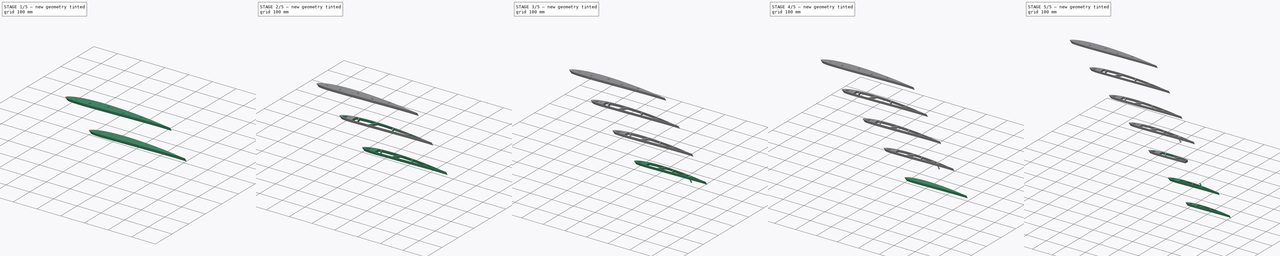
[diagram: build sequence overview — one tinted view per stage of 5, left to right]
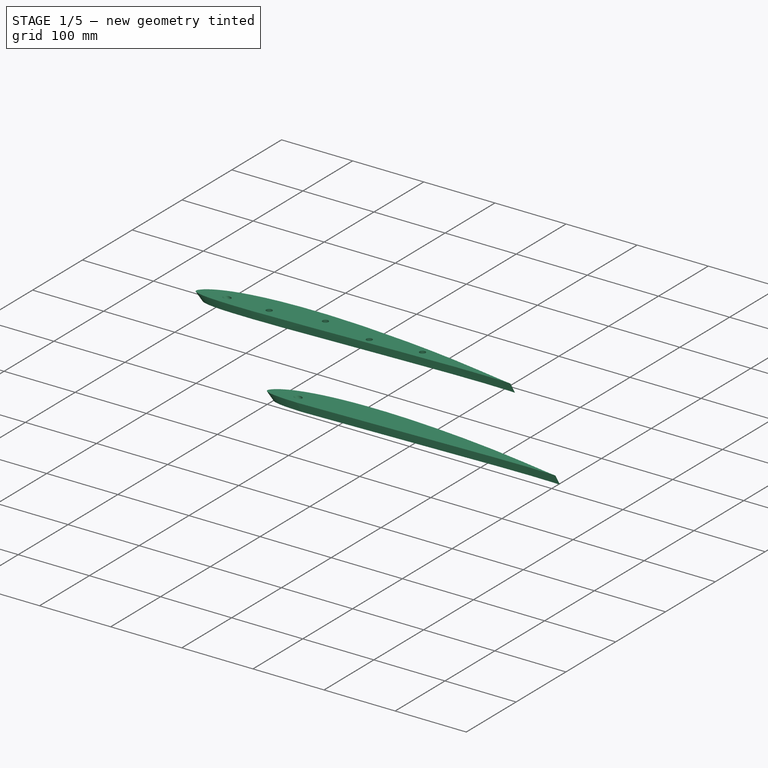
[diagram: stage 1 of 5 — iso view after this stage's code; geometry added in this stage tinted green]
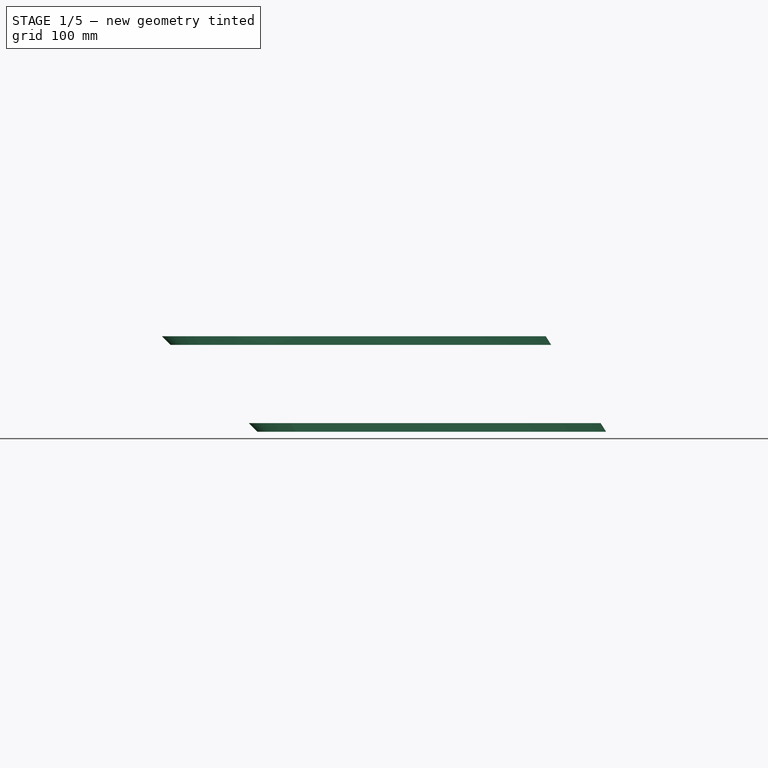
[diagram: stage 1 of 5 — front view after this stage's code; geometry added in this stage tinted green]
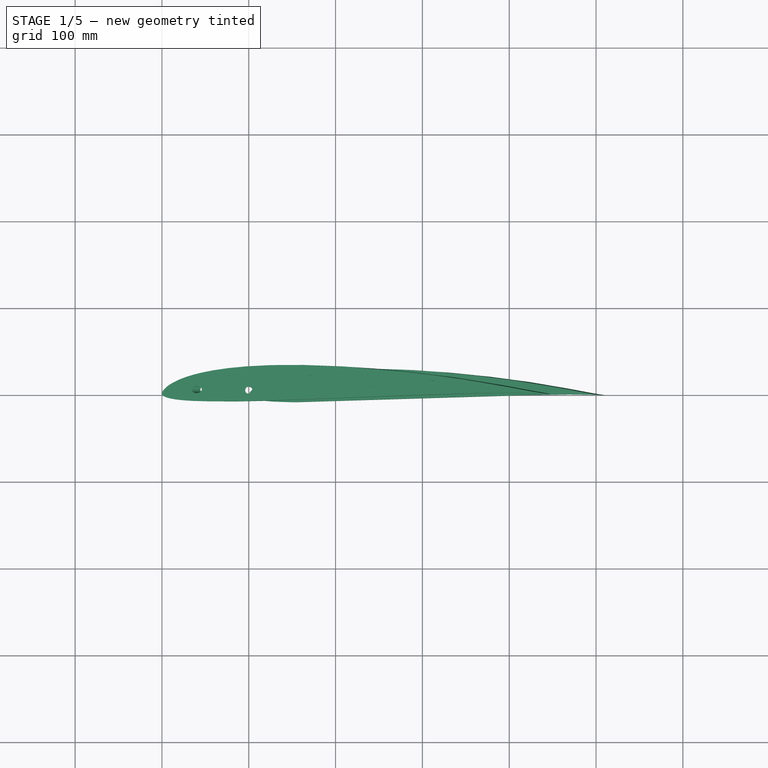
[diagram: stage 1 of 5 — top view after this stage's code; geometry added in this stage tinted green]
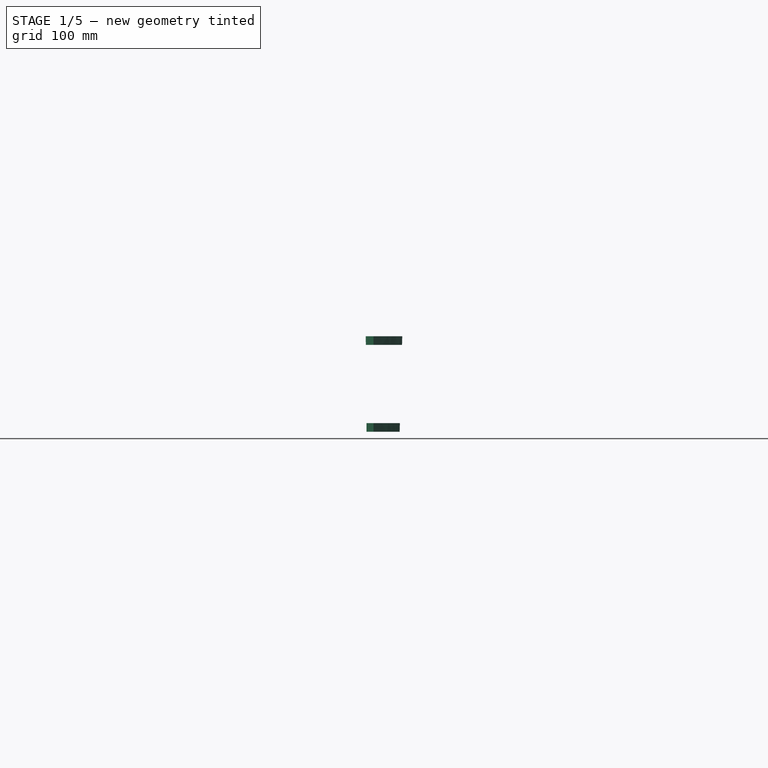
[diagram: stage 1 of 5 — right view after this stage's code; geometry added in this stage tinted green]
FCSTD DOCUMENT  (FreeCAD 1.0R39109 (Git))
Label: SD7037_this_time_for_realz
License: All rights reserved
LicenseURL: https://en.wikipedia.org/wiki/All_rights_reserved
objects: Sketcher::SketchObject×79, PartDesign::Pocket×50, PartDesign::Plane×14, PartDesign::AdditiveLoft×11, PartDesign::Body×11, PartDesign::Pad×7, Part::Part2DObjectPython×3, App::DocumentObjectGroup×1
note: 390 computed .brp shape members not serialized (recipe doc carries the construction recipe); baked Part::Feature solids carry a one-line shape summary decoded from their .brp

FEATURE [Part::Part2DObjectPython] Wire  # Draft 2D object (typed FeaturePython)
  Area = 0.0605284
  ChamferSize = 0
  Closed = true
  End = (1,0,0)
  FilletRadius = 0
  Length = 2.02979
  MakeFace = true
  Points = (61) [(1,0,0),(0.99672,0.00042,0),(0.98707,0.0018,0),(0.97146,0.00436,0),(0.95041,0.00811,0),(0.9245,0.01295,0),(0.89425,0.01865,0),(0.86015,0.0249,0),+53 more]
  Start = (1,0,0)
  Subdivisions = 0
FEATURE [App::DocumentObjectGroup] sd7037
  Group = -> [Wire]
FEATURE [Part::Part2DObjectPython] BSpline  label="wingtip"  # Draft 2D object (typed FeaturePython)
  Area = 2965.6
  Closed = true
  MakeFace = true
  Parameterization = 1
  Points = (60) [(221,0,0),(220.275,0.09282,0),(218.142,0.3978,0),(214.693,0.96356,0),(210.041,1.79231,0),(204.315,2.86195,0),(197.629,4.12165,0),(190.093,5.5029,0),+52 more]
FEATURE [Part::Part2DObjectPython] BSpline001  label="wingbase"  # Draft 2D object (typed FeaturePython)
  Area = 11862.4
  Closed = true
  MakeFace = true
  Parameterization = 1
  Points = (60) [(442,0,0),(440.55,0.18564,0),(436.285,0.7956,0),(429.385,1.92712,0),(420.081,3.58462,0),(408.629,5.7239,0),(395.258,8.2433,0),(380.186,11.0058,0),+52 more]
FEATURE [Sketcher::SketchObject] Sketch
  ArcFitTolerance = 1e-06
  FullyConstrained = false
  MakeInternals = false
  Placement = pos=(600,0,-600) rot=(0,0,1;0rad)
  sketch-geometry (123):
    g0: BSplineCurve PolesCount=61 KnotsCount=61 Degree=3 IsPeriodic=1
    g1-g61: Circle [constr] x61 (B-spline internal-alignment scaffolding for g0; pole/knot coordinates omitted)
    g62-g122: GeomPoint [constr] x61 (B-spline internal-alignment scaffolding for g0; pole/knot coordinates omitted)
  constraints (123):
    c: InternalAlignment(g1,g0)
    c: Weight(g1) = 1
    c: InternalAlignment(g2,g0)
    c: Equal(g2,g1)
    c: InternalAlignment(g3,g0)
    c: Equal(g3,g1)
    c: InternalAlignment(g4,g0)
    c: Equal(g4,g1)
    c: InternalAlignment(g5,g0)
    c: Equal(g5,g1)
    c: InternalAlignment(g6,g0)
    c: Equal(g6,g1)
    c: InternalAlignment(g7,g0)
    c: Equal(g7,g1)
    c: InternalAlignment(g8,g0)
    c: Equal(g8,g1)
    c: InternalAlignment(g9,g0)
    c: Equal(g9,g1)
    c: InternalAlignment(g10,g0)
    c: Equal(g10,g1)
    c: InternalAlignment(g11,g0)
    c: Equal(g11,g1)
    c: InternalAlignment(g12,g0)
    c: Equal(g12,g1)
    c: InternalAlignment(g13,g0)
    c: Equal(g13,g1)
    c: InternalAlignment(g14,g0)
    c: Equal(g14,g1)
    c: InternalAlignment(g15,g0)
    c: Equal(g15,g1)
    c: InternalAlignment(g16,g0)
    c: Equal(g16,g1)
    c: InternalAlignment(g17,g0)
    c: Equal(g17,g1)
    c: InternalAlignment(g18,g0)
    c: Equal(g18,g1)
    c: InternalAlignment(g19,g0)
    c: Equal(g19,g1)
    c: InternalAlignment(g20,g0)
    c: Equal(g20,g1)
    c: InternalAlignment(g21,g0)
    c: Equal(g21,g1)
    c: InternalAlignment(g22,g0)
    c: Equal(g22,g1)
    c: InternalAlignment(g23,g0)
    c: Equal(g23,g1)
    c: InternalAlignment(g24,g0)
    c: Equal(g24,g1)
    c: InternalAlignment(g25,g0)
    c: Equal(g25,g1)
    c: InternalAlignment(g26,g0)
    c: Equal(g26,g1)
    c: InternalAlignment(g27,g0)
    c: Equal(g27,g1)
    c: InternalAlignment(g28,g0)
    c: Equal(g28,g1)
    c: InternalAlignment(g29,g0)
    c: Equal(g29,g1)
    c: InternalAlignment(g30,g0)
    c: Equal(g30,g1)
    c: InternalAlignment(g31,g0)
    c: Equal(g31,g1)
    c: InternalAlignment(g32,g0)
    c: Equal(g32,g1)
    c: InternalAlignment(g33,g0)
    c: Equal(g33,g1)
    c: InternalAlignment(g34,g0)
    c: Equal(g34,g1)
    c: InternalAlignment(g35,g0)
    c: Equal(g35,g1)
    c: InternalAlignment(g36,g0)
    c: Equal(g36,g1)
    c: InternalAlignment(g37,g0)
    c: Equal(g37,g1)
    c: InternalAlignment(g38,g0)
    c: Equal(g38,g1)
    c: InternalAlignment(g39,g0)
    c: Equal(g39,g1)
    c: InternalAlignment(g40,g0)
    c: Equal(g40,g1)
    c: InternalAlignment(g41,g0)
    c: Equal(g41,g1)
    c: InternalAlignment(g42,g0)
    c: Equal(g42,g1)
    c: InternalAlignment(g43,g0)
    c: Equal(g43,g1)
    c: InternalAlignment(g44,g0)
    c: Equal(g44,g1)
    c: InternalAlignment(g45,g0)
    c: Equal(g45,g1)
    c: InternalAlignment(g46,g0)
    c: Equal(g46,g1)
    c: InternalAlignment(g47,g0)
    c: Equal(g47,g1)
    c: InternalAlignment(g48,g0)
    c: Equal(g48,g1)
    c: InternalAlignment(g49,g0)
    c: Equal(g49,g1)
    c: InternalAlignment(g50,g0)
    c: Equal(g50,g1)
    c: InternalAlignment(g51,g0)
    c: Equal(g51,g1)
    c: InternalAlignment(g52,g0)
    c: Equal(g52,g1)
    c: InternalAlignment(g53,g0)
    c: Equal(g53,g1)
    c: InternalAlignment(g54,g0)
    c: Equal(g54,g1)
    c: InternalAlignment(g55,g0)
    c: Equal(g55,g1)
    c: InternalAlignment(g56,g0)
    c: Equal(g56,g1)
    c: InternalAlignment(g57,g0)
    c: Equal(g57,g1)
    c: InternalAlignment(g58,g0)
    c: Equal(g58,g1)
    c: InternalAlignment(g59,g0)
    c: Equal(g59,g1)
    c: InternalAlignment(g60,g0)
    c: Equal(g60,g1)
    c: InternalAlignment(g61,g0)
    c: Equal(g61,g1)
    c: InternalAlignment(g62-g122 -> g0) x61
FEATURE [Sketcher::SketchObject] Sketch001
  ArcFitTolerance = 1e-06
  FullyConstrained = false
  MakeInternals = false
  sketch-geometry (123):
    g0: BSplineCurve PolesCount=61 KnotsCount=61 Degree=3 IsPeriodic=1
    g1-g61: Circle [constr] x61 (B-spline internal-alignment scaffolding for g0; pole/knot coordinates omitted)
    g62-g122: GeomPoint [constr] x61 (B-spline internal-alignment scaffolding for g0; pole/knot coordinates omitted)
  constraints (123):
    c: InternalAlignment(g1,g0)
    c: Weight(g1) = 1
    c: InternalAlignment(g2,g0)
    c: Equal(g2,g1)
    c: InternalAlignment(g3,g0)
    c: Equal(g3,g1)
    c: InternalAlignment(g4,g0)
    c: Equal(g4,g1)
    c: InternalAlignment(g5,g0)
    c: Equal(g5,g1)
    c: InternalAlignment(g6,g0)
    c: Equal(g6,g1)
    c: InternalAlignment(g7,g0)
    c: Equal(g7,g1)
    c: InternalAlignment(g8,g0)
    c: Equal(g8,g1)
    c: InternalAlignment(g9,g0)
    c: Equal(g9,g1)
    c: InternalAlignment(g10,g0)
    c: Equal(g10,g1)
    c: InternalAlignment(g11,g0)
    c: Equal(g11,g1)
    c: InternalAlignment(g12,g0)
    c: Equal(g12,g1)
    c: InternalAlignment(g13,g0)
    c: Equal(g13,g1)
    c: InternalAlignment(g14,g0)
    c: Equal(g14,g1)
    c: InternalAlignment(g15,g0)
    c: Equal(g15,g1)
    c: InternalAlignment(g16,g0)
    c: Equal(g16,g1)
    c: InternalAlignment(g17,g0)
    c: Equal(g17,g1)
    c: InternalAlignment(g18,g0)
    c: Equal(g18,g1)
    c: InternalAlignment(g19,g0)
    c: Equal(g19,g1)
    c: InternalAlignment(g20,g0)
    c: Equal(g20,g1)
    c: InternalAlignment(g21,g0)
    c: Equal(g21,g1)
    c: InternalAlignment(g22,g0)
    c: Equal(g22,g1)
    c: InternalAlignment(g23,g0)
    c: Equal(g23,g1)
    c: InternalAlignment(g24,g0)
    c: Equal(g24,g1)
    c: InternalAlignment(g25,g0)
    c: Equal(g25,g1)
    c: InternalAlignment(g26,g0)
    c: Equal(g26,g1)
    c: InternalAlignment(g27,g0)
    c: Equal(g27,g1)
    c: InternalAlignment(g28,g0)
    c: Equal(g28,g1)
    c: InternalAlignment(g29,g0)
    c: Equal(g29,g1)
    c: InternalAlignment(g30,g0)
    c: Equal(g30,g1)
    c: InternalAlignment(g31,g0)
    c: Equal(g31,g1)
    c: InternalAlignment(g32,g0)
    c: Equal(g32,g1)
    c: InternalAlignment(g33,g0)
    c: Equal(g33,g1)
    c: InternalAlignment(g34,g0)
    c: Equal(g34,g1)
    c: InternalAlignment(g35,g0)
    c: Equal(g35,g1)
    c: InternalAlignment(g36,g0)
    c: Equal(g36,g1)
    c: InternalAlignment(g37,g0)
    c: Equal(g37,g1)
    c: InternalAlignment(g38,g0)
    c: Equal(g38,g1)
    c: InternalAlignment(g39,g0)
    c: Equal(g39,g1)
    c: InternalAlignment(g40,g0)
    c: Equal(g40,g1)
    c: InternalAlignment(g41,g0)
    c: Equal(g41,g1)
    c: InternalAlignment(g42,g0)
    c: Equal(g42,g1)
    c: InternalAlignment(g43,g0)
    c: Equal(g43,g1)
    c: InternalAlignment(g44,g0)
    c: Equal(g44,g1)
    c: InternalAlignment(g45,g0)
    c: Equal(g45,g1)
    c: InternalAlignment(g46,g0)
    c: Equal(g46,g1)
    c: InternalAlignment(g47,g0)
    c: Equal(g47,g1)
    c: InternalAlignment(g48,g0)
    c: Equal(g48,g1)
    c: InternalAlignment(g49,g0)
    c: Equal(g49,g1)
    c: InternalAlignment(g50,g0)
    c: Equal(g50,g1)
    c: InternalAlignment(g51,g0)
    c: Equal(g51,g1)
    c: InternalAlignment(g52,g0)
    c: Equal(g52,g1)
    c: InternalAlignment(g53,g0)
    c: Equal(g53,g1)
    c: InternalAlignment(g54,g0)
    c: Equal(g54,g1)
    c: InternalAlignment(g55,g0)
    c: Equal(g55,g1)
    c: InternalAlignment(g56,g0)
    c: Equal(g56,g1)
    c: InternalAlignment(g57,g0)
    c: Equal(g57,g1)
    c: InternalAlignment(g58,g0)
    c: Equal(g58,g1)
    c: InternalAlignment(g59,g0)
    c: Equal(g59,g1)
    c: InternalAlignment(g60,g0)
    c: Equal(g60,g1)
    c: InternalAlignment(g61,g0)
    c: Equal(g61,g1)
    c: InternalAlignment(g62-g122 -> g0) x61
FEATURE [PartDesign::AdditiveLoft] AdditiveLoft
  Closed = false
  Profile = -> Sketch001
  Refine = true
  Ruled = false
  Sections = -> [Sketch]
  Suppressed = false
FEATURE [PartDesign::Plane] DatumPlane
  AttachmentOffset = pos=(0,0,0) rot=(0,-1,0;0.785398rad)
  AttachmentSupport = -> [AdditiveLoft]
  Length = 397.552
  MapMode = 5
  Placement = pos=(0,0,0) rot=(0,-1,0;0.785398rad)
  ResizeMode = 0
  Width = 78.2374
FEATURE [Sketcher::SketchObject] Sketch002
  ArcFitTolerance = 1e-06
  AttachmentSupport = -> [DatumPlane]
  FullyConstrained = false
  MakeInternals = false
  MapMode = 5
  Placement = pos=(0,0,0) rot=(0,-1,0;0.785398rad)
  sketch-geometry (1):
    g0: Circle CenterX=28.3343 CenterY=4.75298 CenterZ=0 NormalX=0 NormalY=0 NormalZ=1 AngleXU=0 Radius=4.1
  constraints (1):
    c: Diameter(g0) = 8.2
FEATURE [PartDesign::Pocket] Pocket
  BaseFeature = -> AdditiveLoft
  Direction = (0.707107,0,-0.707107)
  Length = 1000
  Length2 = 5
  Profile = -> Sketch002
  ReferenceAxis = -> Sketch002 [N_Axis]
  Refine = true
  Suppressed = false
  Type = 0
FEATURE [Sketcher::SketchObject] Sketch003
  ArcFitTolerance = 1e-06
  FullyConstrained = false
  MakeInternals = false
  Placement = pos=(600,0,-600) rot=(0,0,1;0rad)
  sketch-geometry (123):
    g0: BSplineCurve PolesCount=61 KnotsCount=61 Degree=3 IsPeriodic=1
    g1-g61: Circle [constr] x61 (B-spline internal-alignment scaffolding for g0; pole/knot coordinates omitted)
    g62-g122: GeomPoint [constr] x61 (B-spline internal-alignment scaffolding for g0; pole/knot coordinates omitted)
  constraints (123):
    c: InternalAlignment(g1,g0)
    c: Weight(g1) = 1
    c: InternalAlignment(g2,g0)
    c: Equal(g2,g1)
    c: InternalAlignment(g3,g0)
    c: Equal(g3,g1)
    c: InternalAlignment(g4,g0)
    c: Equal(g4,g1)
    c: InternalAlignment(g5,g0)
    c: Equal(g5,g1)
    c: InternalAlignment(g6,g0)
    c: Equal(g6,g1)
    c: InternalAlignment(g7,g0)
    c: Equal(g7,g1)
    c: InternalAlignment(g8,g0)
    c: Equal(g8,g1)
    c: InternalAlignment(g9,g0)
    c: Equal(g9,g1)
    c: InternalAlignment(g10,g0)
    c: Equal(g10,g1)
    c: InternalAlignment(g11,g0)
    c: Equal(g11,g1)
    c: InternalAlignment(g12,g0)
    c: Equal(g12,g1)
    c: InternalAlignment(g13,g0)
    c: Equal(g13,g1)
    c: InternalAlignment(g14,g0)
    c: Equal(g14,g1)
    c: InternalAlignment(g15,g0)
    c: Equal(g15,g1)
    c: InternalAlignment(g16,g0)
    c: Equal(g16,g1)
    c: InternalAlignment(g17,g0)
    c: Equal(g17,g1)
    c: InternalAlignment(g18,g0)
    c: Equal(g18,g1)
    c: InternalAlignment(g19,g0)
    c: Equal(g19,g1)
    c: InternalAlignment(g20,g0)
    c: Equal(g20,g1)
    c: InternalAlignment(g21,g0)
    c: Equal(g21,g1)
    c: InternalAlignment(g22,g0)
    c: Equal(g22,g1)
    c: InternalAlignment(g23,g0)
    c: Equal(g23,g1)
    c: InternalAlignment(g24,g0)
    c: Equal(g24,g1)
    c: InternalAlignment(g25,g0)
    c: Equal(g25,g1)
    c: InternalAlignment(g26,g0)
    c: Equal(g26,g1)
    c: InternalAlignment(g27,g0)
    c: Equal(g27,g1)
    c: InternalAlignment(g28,g0)
    c: Equal(g28,g1)
    c: InternalAlignment(g29,g0)
    c: Equal(g29,g1)
    c: InternalAlignment(g30,g0)
    c: Equal(g30,g1)
    c: InternalAlignment(g31,g0)
    c: Equal(g31,g1)
    c: InternalAlignment(g32,g0)
    c: Equal(g32,g1)
    c: InternalAlignment(g33,g0)
    c: Equal(g33,g1)
    c: InternalAlignment(g34,g0)
    c: Equal(g34,g1)
    c: InternalAlignment(g35,g0)
    c: Equal(g35,g1)
    c: InternalAlignment(g36,g0)
    c: Equal(g36,g1)
    c: InternalAlignment(g37,g0)
    c: Equal(g37,g1)
    c: InternalAlignment(g38,g0)
    c: Equal(g38,g1)
    c: InternalAlignment(g39,g0)
    c: Equal(g39,g1)
    c: InternalAlignment(g40,g0)
    c: Equal(g40,g1)
    c: InternalAlignment(g41,g0)
    c: Equal(g41,g1)
    c: InternalAlignment(g42,g0)
    c: Equal(g42,g1)
    c: InternalAlignment(g43,g0)
    c: Equal(g43,g1)
    c: InternalAlignment(g44,g0)
    c: Equal(g44,g1)
    c: InternalAlignment(g45,g0)
    c: Equal(g45,g1)
    c: InternalAlignment(g46,g0)
    c: Equal(g46,g1)
    c: InternalAlignment(g47,g0)
    c: Equal(g47,g1)
    c: InternalAlignment(g48,g0)
    c: Equal(g48,g1)
    c: InternalAlignment(g49,g0)
    c: Equal(g49,g1)
    c: InternalAlignment(g50,g0)
    c: Equal(g50,g1)
    c: InternalAlignment(g51,g0)
    c: Equal(g51,g1)
    c: InternalAlignment(g52,g0)
    c: Equal(g52,g1)
    c: InternalAlignment(g53,g0)
    c: Equal(g53,g1)
    c: InternalAlignment(g54,g0)
    c: Equal(g54,g1)
    c: InternalAlignment(g55,g0)
    c: Equal(g55,g1)
    c: InternalAlignment(g56,g0)
    c: Equal(g56,g1)
    c: InternalAlignment(g57,g0)
    c: Equal(g57,g1)
    c: InternalAlignment(g58,g0)
    c: Equal(g58,g1)
    c: InternalAlignment(g59,g0)
    c: Equal(g59,g1)
    c: InternalAlignment(g60,g0)
    c: Equal(g60,g1)
    c: InternalAlignment(g61,g0)
    c: Equal(g61,g1)
    c: InternalAlignment(g62-g122 -> g0) x61
FEATURE [Sketcher::SketchObject] Sketch004
  ArcFitTolerance = 1e-06
  FullyConstrained = false
  MakeInternals = false
  sketch-geometry (123):
    g0: BSplineCurve PolesCount=61 KnotsCount=61 Degree=3 IsPeriodic=1
    g1-g61: Circle [constr] x61 (B-spline internal-alignment scaffolding for g0; pole/knot coordinates omitted)
    g62-g122: GeomPoint [constr] x61 (B-spline internal-alignment scaffolding for g0; pole/knot coordinates omitted)
  constraints (123):
    c: InternalAlignment(g1,g0)
    c: Weight(g1) = 1
    c: InternalAlignment(g2,g0)
    c: Equal(g2,g1)
    c: InternalAlignment(g3,g0)
    c: Equal(g3,g1)
    c: InternalAlignment(g4,g0)
    c: Equal(g4,g1)
    c: InternalAlignment(g5,g0)
    c: Equal(g5,g1)
    c: InternalAlignment(g6,g0)
    c: Equal(g6,g1)
    c: InternalAlignment(g7,g0)
    c: Equal(g7,g1)
    c: InternalAlignment(g8,g0)
    c: Equal(g8,g1)
    c: InternalAlignment(g9,g0)
    c: Equal(g9,g1)
    c: InternalAlignment(g10,g0)
    c: Equal(g10,g1)
    c: InternalAlignment(g11,g0)
    c: Equal(g11,g1)
    c: InternalAlignment(g12,g0)
    c: Equal(g12,g1)
    c: InternalAlignment(g13,g0)
    c: Equal(g13,g1)
    c: InternalAlignment(g14,g0)
    c: Equal(g14,g1)
    c: InternalAlignment(g15,g0)
    c: Equal(g15,g1)
    c: InternalAlignment(g16,g0)
    c: Equal(g16,g1)
    c: InternalAlignment(g17,g0)
    c: Equal(g17,g1)
    c: InternalAlignment(g18,g0)
    c: Equal(g18,g1)
    c: InternalAlignment(g19,g0)
    c: Equal(g19,g1)
    c: InternalAlignment(g20,g0)
    c: Equal(g20,g1)
    c: InternalAlignment(g21,g0)
    c: Equal(g21,g1)
    c: InternalAlignment(g22,g0)
    c: Equal(g22,g1)
    c: InternalAlignment(g23,g0)
    c: Equal(g23,g1)
    c: InternalAlignment(g24,g0)
    c: Equal(g24,g1)
    c: InternalAlignment(g25,g0)
    c: Equal(g25,g1)
    c: InternalAlignment(g26,g0)
    c: Equal(g26,g1)
    c: InternalAlignment(g27,g0)
    c: Equal(g27,g1)
    c: InternalAlignment(g28,g0)
    c: Equal(g28,g1)
    c: InternalAlignment(g29,g0)
    c: Equal(g29,g1)
    c: InternalAlignment(g30,g0)
    c: Equal(g30,g1)
    c: InternalAlignment(g31,g0)
    c: Equal(g31,g1)
    c: InternalAlignment(g32,g0)
    c: Equal(g32,g1)
    c: InternalAlignment(g33,g0)
    c: Equal(g33,g1)
    c: InternalAlignment(g34,g0)
    c: Equal(g34,g1)
    c: InternalAlignment(g35,g0)
    c: Equal(g35,g1)
    c: InternalAlignment(g36,g0)
    c: Equal(g36,g1)
    c: InternalAlignment(g37,g0)
    c: Equal(g37,g1)
    c: InternalAlignment(g38,g0)
    c: Equal(g38,g1)
    c: InternalAlignment(g39,g0)
    c: Equal(g39,g1)
    c: InternalAlignment(g40,g0)
    c: Equal(g40,g1)
    c: InternalAlignment(g41,g0)
    c: Equal(g41,g1)
    c: InternalAlignment(g42,g0)
    c: Equal(g42,g1)
    c: InternalAlignment(g43,g0)
    c: Equal(g43,g1)
    c: InternalAlignment(g44,g0)
    c: Equal(g44,g1)
    c: InternalAlignment(g45,g0)
    c: Equal(g45,g1)
    c: InternalAlignment(g46,g0)
    c: Equal(g46,g1)
    c: InternalAlignment(g47,g0)
    c: Equal(g47,g1)
    c: InternalAlignment(g48,g0)
    c: Equal(g48,g1)
    c: InternalAlignment(g49,g0)
    c: Equal(g49,g1)
    c: InternalAlignment(g50,g0)
    c: Equal(g50,g1)
    c: InternalAlignment(g51,g0)
    c: Equal(g51,g1)
    c: InternalAlignment(g52,g0)
    c: Equal(g52,g1)
    c: InternalAlignment(g53,g0)
    c: Equal(g53,g1)
    c: InternalAlignment(g54,g0)
    c: Equal(g54,g1)
    c: InternalAlignment(g55,g0)
    c: Equal(g55,g1)
    c: InternalAlignment(g56,g0)
    c: Equal(g56,g1)
    c: InternalAlignment(g57,g0)
    c: Equal(g57,g1)
    c: InternalAlignment(g58,g0)
    c: Equal(g58,g1)
    c: InternalAlignment(g59,g0)
    c: Equal(g59,g1)
    c: InternalAlignment(g60,g0)
    c: Equal(g60,g1)
    c: InternalAlignment(g61,g0)
    c: Equal(g61,g1)
    c: InternalAlignment(g62-g122 -> g0) x61
FEATURE [PartDesign::AdditiveLoft] AdditiveLoft001
  Closed = false
  Profile = -> Sketch004
  Refine = true
  Ruled = false
  Sections = -> [Sketch003]
  Suppressed = false
FEATURE [PartDesign::Plane] DatumPlane001
  AttachmentOffset = pos=(0,0,0) rot=(0,-1,0;0.785398rad)
  AttachmentSupport = -> [AdditiveLoft001]
  Length = 412.402
  MapMode = 5
  Placement = pos=(0,0,0) rot=(0,-1,0;0.785398rad)
  ResizeMode = 0
  Width = 84.5785
FEATURE [Sketcher::SketchObject] Sketch005
  ArcFitTolerance = 1e-06
  AttachmentSupport = -> [DatumPlane001]
  FullyConstrained = false
  MakeInternals = false
  MapMode = 5
  Placement = pos=(0,0,0) rot=(0,-1,0;0.785398rad)
  sketch-geometry (1):
    g0: Circle CenterX=28.3343 CenterY=4.75298 CenterZ=0 NormalX=0 NormalY=0 NormalZ=1 AngleXU=0 Radius=4.1
  constraints (1):
    c: Diameter(g0) = 8.2
FEATURE [PartDesign::Pocket] Pocket001
  BaseFeature = -> AdditiveLoft001
  Direction = (0.707107,0,-0.707107)
  Length = 1000
  Length2 = 5
  Profile = -> Sketch005
  ReferenceAxis = -> Sketch005 [N_Axis]
  Refine = true
  Suppressed = false
  Type = 0
FEATURE [Sketcher::SketchObject] Sketch021
  ArcFitTolerance = 1e-06
  AttachmentSupport = -> [Pocket]
  FullyConstrained = false
  MakeInternals = false
  MapMode = 5
  Placement = pos=(0,0,-600) rot=(1,0,0;3.14159rad)
  sketch-geometry (4):
    g0: LineSegment StartX=-85.1873 StartY=206.739 StartZ=0 EndX=-85.1873 EndY=-145.098 EndZ=0
    g1: LineSegment StartX=-85.1873 StartY=-145.098 StartZ=0 EndX=963.672 EndY=-145.098 EndZ=0
    g2: LineSegment StartX=963.672 StartY=-145.098 StartZ=0 EndX=963.672 EndY=206.739 EndZ=0
    g3: LineSegment StartX=963.672 StartY=206.739 StartZ=0 EndX=-85.1873 EndY=206.739 EndZ=0
  constraints (8):
    c: Coincident(g0,g1)
    c: Coincident(g1,g2)
    c: Coincident(g2,g3)
    c: Coincident(g3,g0)
    c: Vertical(g0)
    c: Vertical(g2)
    c: Horizontal(g1)
    c: Horizontal(g3)
FEATURE [PartDesign::Pocket] Pocket007
  BaseFeature = -> Pocket
  Direction = (0,0,1)
  Length = 590
  Length2 = 5
  Profile = -> Sketch021
  ReferenceAxis = -> Sketch021 [N_Axis]
  Refine = true
  Suppressed = false
  Type = 0
FEATURE [Sketcher::SketchObject] Sketch022
  ArcFitTolerance = 1e-06
  AttachmentSupport = -> [Pocket001]
  FullyConstrained = false
  MakeInternals = false
  MapMode = 5
  sketch-geometry (4):
    g0: LineSegment StartX=-74.3122 StartY=118.602 StartZ=0 EndX=-74.3122 EndY=-69.0004 EndZ=0
    g1: LineSegment StartX=-74.3122 StartY=-69.0005 StartZ=0 EndX=870.96 EndY=-69.0005 EndZ=0
    g2: LineSegment StartX=870.96 StartY=-69.0005 StartZ=0 EndX=870.96 EndY=118.602 EndZ=0
    g3: LineSegment StartX=870.96 StartY=118.602 StartZ=0 EndX=-74.3122 EndY=118.602 EndZ=0
  constraints (8):
    c: Coincident(g0,g1)
    c: Coincident(g1,g2)
    c: Coincident(g2,g3)
    c: Coincident(g3,g0)
    c: Vertical(g0)
    c: Vertical(g2)
    c: Horizontal(g1)
    c: Horizontal(g3)
FEATURE [PartDesign::Pocket] Pocket008
  BaseFeature = -> Pocket001
  Direction = (0,0,-1)
  Length = 100
  Length2 = 5
  Profile = -> Sketch022
  ReferenceAxis = -> Sketch022 [N_Axis]
  Refine = true
  Suppressed = false
  Type = 0
FEATURE [Sketcher::SketchObject] Sketch023
  ArcFitTolerance = 1e-06
  AttachmentSupport = -> [Pocket008]
  FullyConstrained = false
  MakeInternals = false
  MapMode = 5
  Placement = pos=(0,0,-600) rot=(1,0,0;3.14159rad)
  sketch-geometry (4):
    g0: LineSegment StartX=26.9533 StartY=164.686 StartZ=0 EndX=26.9533 EndY=-77.9053 EndZ=0
    g1: LineSegment StartX=26.9533 StartY=-77.9053 StartZ=0 EndX=1059.07 EndY=-77.9053 EndZ=0
    g2: LineSegment StartX=1059.07 StartY=-77.9053 StartZ=0 EndX=1059.07 EndY=164.686 EndZ=0
    g3: LineSegment StartX=1059.07 StartY=164.686 StartZ=0 EndX=26.9533 EndY=164.686 EndZ=0
  constraints (8):
    c: Coincident(g0,g1)
    c: Coincident(g1,g2)
    c: Coincident(g2,g3)
    c: Coincident(g3,g0)
    c: Vertical(g0)
    c: Vertical(g2)
    c: Horizontal(g1)
    c: Horizontal(g3)
FEATURE [PartDesign::Pocket] Pocket009
  BaseFeature = -> Pocket008
  Direction = (0,0,1)
  Length = 490
  Length2 = 5
  Profile = -> Sketch023
  ReferenceAxis = -> Sketch023 [N_Axis]
  Refine = true
  Suppressed = false
  Type = 0
FEATURE [PartDesign::Body] Body001
  AllowCompound = false
  Group = -> [Sketch004,Sketch003,AdditiveLoft001,DatumPlane001,Sketch005,Pocket001,Sketch022,Pocket008,Sketch023,Pocket009,Sketch062,Pocket037,Sketch069,Pocket043]
  Origin = -> Origin001
  Tip = -> Pocket043
FEATURE [Sketcher::SketchObject] Sketch071
  ArcFitTolerance = 1e-06
  AttachmentSupport = -> [Pocket007]
  FullyConstrained = true
  MakeInternals = false
  MapMode = 5
  Placement = pos=(0,0,-10) rot=(1,0,0;3.14159rad)
  sketch-geometry (4):
    g0: Circle CenterX=310 CenterY=-12 CenterZ=0 NormalX=0 NormalY=0 NormalZ=1 AngleXU=0 Radius=4.1
    g1: Circle CenterX=240 CenterY=-5 CenterZ=0 NormalX=0 NormalY=0 NormalZ=1 AngleXU=0 Radius=4.1
    g2: Circle CenterX=170 CenterY=-17 CenterZ=0 NormalX=0 NormalY=0 NormalZ=1 AngleXU=0 Radius=4.1
    g3: Circle CenterX=100 CenterY=-4 CenterZ=0 NormalX=0 NormalY=0 NormalZ=1 AngleXU=0 Radius=4.1
  constraints (12):
    c: Diameter(g0) = 8.2
    c: Diameter(g1) = 8.2
    c: Diameter(g2) = 8.2
    c: Diameter(g3) = 8.2
    c: DistanceX(g-1,g3) = 100
    c: DistanceX(g3,g2) = 70
    c: DistanceX(g2,g1) = 70
    c: DistanceX(g1,g0) = 70
    c: DistanceY(g3,g-1) = 4
    c: DistanceY(g2,g-1) = 17
    c: DistanceY(g1,g-1) = 5
    c: DistanceY(g0,g-1) = 12
FEATURE [PartDesign::Pocket] Pocket044
  BaseFeature = -> Pocket007
  Direction = (0,0,1)
  Length = 15
  Length2 = 5
  Profile = -> Sketch071
  ReferenceAxis = -> Sketch071 [N_Axis]
  Refine = true
  Suppressed = false
  Type = 0
FEATURE [Sketcher::SketchObject] Sketch072
  ArcFitTolerance = 1e-06
  AttachmentSupport = -> [Pocket044]
  FullyConstrained = false
  MakeInternals = false
  MapMode = 5
  Placement = pos=(0,0,-10) rot=(1,0,0;3.14159rad)
  sketch-geometry (4):
    g0: LineSegment StartX=0 StartY=50.2756 StartZ=0 EndX=0 EndY=-78.0723 EndZ=0
    g1: LineSegment StartX=0 StartY=-78.0723 StartZ=0 EndX=280 EndY=-78.0723 EndZ=0
    g2: LineSegment StartX=280 StartY=-78.0723 StartZ=0 EndX=280 EndY=50.2756 EndZ=0
    g3: LineSegment StartX=280 StartY=50.2756 StartZ=0 EndX=0 EndY=50.2756 EndZ=0
  constraints (10):
    c: Coincident(g0,g1)
    c: Coincident(g1,g2)
    c: Coincident(g2,g3)
    c: Coincident(g3,g0)
    c: Vertical(g0)
    c: Vertical(g2)
    c: Horizontal(g1)
    c: Horizontal(g3)
    c: PointOnObject(g0,g-2)
    c: DistanceX(g-1,g2) = 280
FEATURE [Sketcher::SketchObject] Sketch073
  ArcFitTolerance = 1e-06
  FullyConstrained = false
  MakeInternals = false
  Placement = pos=(600,0,-600) rot=(0,0,1;0rad)
  sketch-geometry (123):
    g0: BSplineCurve PolesCount=61 KnotsCount=61 Degree=3 IsPeriodic=1
    g1-g61: Circle [constr] x61 (B-spline internal-alignment scaffolding for g0; pole/knot coordinates omitted)
    g62-g122: GeomPoint [constr] x61 (B-spline internal-alignment scaffolding for g0; pole/knot coordinates omitted)
  constraints (123):
    c: InternalAlignment(g1,g0)
    c: Weight(g1) = 1
    c: InternalAlignment(g2,g0)
    c: Equal(g2,g1)
    c: InternalAlignment(g3,g0)
    c: Equal(g3,g1)
    c: InternalAlignment(g4,g0)
    c: Equal(g4,g1)
    c: InternalAlignment(g5,g0)
    c: Equal(g5,g1)
    c: InternalAlignment(g6,g0)
    c: Equal(g6,g1)
    c: InternalAlignment(g7,g0)
    c: Equal(g7,g1)
    c: InternalAlignment(g8,g0)
    c: Equal(g8,g1)
    c: InternalAlignment(g9,g0)
    c: Equal(g9,g1)
    c: InternalAlignment(g10,g0)
    c: Equal(g10,g1)
    c: InternalAlignment(g11,g0)
    c: Equal(g11,g1)
    c: InternalAlignment(g12,g0)
    c: Equal(g12,g1)
    c: InternalAlignment(g13,g0)
    c: Equal(g13,g1)
    c: InternalAlignment(g14,g0)
    c: Equal(g14,g1)
    c: InternalAlignment(g15,g0)
    c: Equal(g15,g1)
    c: InternalAlignment(g16,g0)
    c: Equal(g16,g1)
    c: InternalAlignment(g17,g0)
    c: Equal(g17,g1)
    c: InternalAlignment(g18,g0)
    c: Equal(g18,g1)
    c: InternalAlignment(g19,g0)
    c: Equal(g19,g1)
    c: InternalAlignment(g20,g0)
    c: Equal(g20,g1)
    c: InternalAlignment(g21,g0)
    c: Equal(g21,g1)
    c: InternalAlignment(g22,g0)
    c: Equal(g22,g1)
    c: InternalAlignment(g23,g0)
    c: Equal(g23,g1)
    c: InternalAlignment(g24,g0)
    c: Equal(g24,g1)
    c: InternalAlignment(g25,g0)
    c: Equal(g25,g1)
    c: InternalAlignment(g26,g0)
    c: Equal(g26,g1)
    c: InternalAlignment(g27,g0)
    c: Equal(g27,g1)
    c: InternalAlignment(g28,g0)
    c: Equal(g28,g1)
    c: InternalAlignment(g29,g0)
    c: Equal(g29,g1)
    c: InternalAlignment(g30,g0)
    c: Equal(g30,g1)
    c: InternalAlignment(g31,g0)
    c: Equal(g31,g1)
    c: InternalAlignment(g32,g0)
    c: Equal(g32,g1)
    c: InternalAlignment(g33,g0)
    c: Equal(g33,g1)
    c: InternalAlignment(g34,g0)
    c: Equal(g34,g1)
    c: InternalAlignment(g35,g0)
    c: Equal(g35,g1)
    c: InternalAlignment(g36,g0)
    c: Equal(g36,g1)
    c: InternalAlignment(g37,g0)
    c: Equal(g37,g1)
    c: InternalAlignment(g38,g0)
    c: Equal(g38,g1)
    c: InternalAlignment(g39,g0)
    c: Equal(g39,g1)
    c: InternalAlignment(g40,g0)
    c: Equal(g40,g1)
    c: InternalAlignment(g41,g0)
    c: Equal(g41,g1)
    c: InternalAlignment(g42,g0)
    c: Equal(g42,g1)
    c: InternalAlignment(g43,g0)
    c: Equal(g43,g1)
    c: InternalAlignment(g44,g0)
    c: Equal(g44,g1)
    c: InternalAlignment(g45,g0)
    c: Equal(g45,g1)
    c: InternalAlignment(g46,g0)
    c: Equal(g46,g1)
    c: InternalAlignment(g47,g0)
    c: Equal(g47,g1)
    c: InternalAlignment(g48,g0)
    c: Equal(g48,g1)
    c: InternalAlignment(g49,g0)
    c: Equal(g49,g1)
    c: InternalAlignment(g50,g0)
    c: Equal(g50,g1)
    c: InternalAlignment(g51,g0)
    c: Equal(g51,g1)
    c: InternalAlignment(g52,g0)
    c: Equal(g52,g1)
    c: InternalAlignment(g53,g0)
    c: Equal(g53,g1)
    c: InternalAlignment(g54,g0)
    c: Equal(g54,g1)
    c: InternalAlignment(g55,g0)
    c: Equal(g55,g1)
    c: InternalAlignment(g56,g0)
    c: Equal(g56,g1)
    c: InternalAlignment(g57,g0)
    c: Equal(g57,g1)
    c: InternalAlignment(g58,g0)
    c: Equal(g58,g1)
    c: InternalAlignment(g59,g0)
    c: Equal(g59,g1)
    c: InternalAlignment(g60,g0)
    c: Equal(g60,g1)
    c: InternalAlignment(g61,g0)
    c: Equal(g61,g1)
    c: InternalAlignment(g62-g122 -> g0) x61
FEATURE [Sketcher::SketchObject] Sketch074
  ArcFitTolerance = 1e-06
  FullyConstrained = false
  MakeInternals = false
  sketch-geometry (123):
    g0: BSplineCurve PolesCount=61 KnotsCount=61 Degree=3 IsPeriodic=1
    g1-g61: Circle [constr] x61 (B-spline internal-alignment scaffolding for g0; pole/knot coordinates omitted)
    g62-g122: GeomPoint [constr] x61 (B-spline internal-alignment scaffolding for g0; pole/knot coordinates omitted)
  constraints (123):
    c: InternalAlignment(g1,g0)
    c: Weight(g1) = 1
    c: InternalAlignment(g2,g0)
    c: Equal(g2,g1)
    c: InternalAlignment(g3,g0)
    c: Equal(g3,g1)
    c: InternalAlignment(g4,g0)
    c: Equal(g4,g1)
    c: InternalAlignment(g5,g0)
    c: Equal(g5,g1)
    c: InternalAlignment(g6,g0)
    c: Equal(g6,g1)
    c: InternalAlignment(g7,g0)
    c: Equal(g7,g1)
    c: InternalAlignment(g8,g0)
    c: Equal(g8,g1)
    c: InternalAlignment(g9,g0)
    c: Equal(g9,g1)
    c: InternalAlignment(g10,g0)
    c: Equal(g10,g1)
    c: InternalAlignment(g11,g0)
    c: Equal(g11,g1)
    c: InternalAlignment(g12,g0)
    c: Equal(g12,g1)
    c: InternalAlignment(g13,g0)
    c: Equal(g13,g1)
    c: InternalAlignment(g14,g0)
    c: Equal(g14,g1)
    c: InternalAlignment(g15,g0)
    c: Equal(g15,g1)
    c: InternalAlignment(g16,g0)
    c: Equal(g16,g1)
    c: InternalAlignment(g17,g0)
    c: Equal(g17,g1)
    c: InternalAlignment(g18,g0)
    c: Equal(g18,g1)
    c: InternalAlignment(g19,g0)
    c: Equal(g19,g1)
    c: InternalAlignment(g20,g0)
    c: Equal(g20,g1)
    c: InternalAlignment(g21,g0)
    c: Equal(g21,g1)
    c: InternalAlignment(g22,g0)
    c: Equal(g22,g1)
    c: InternalAlignment(g23,g0)
    c: Equal(g23,g1)
    c: InternalAlignment(g24,g0)
    c: Equal(g24,g1)
    c: InternalAlignment(g25,g0)
    c: Equal(g25,g1)
    c: InternalAlignment(g26,g0)
    c: Equal(g26,g1)
    c: InternalAlignment(g27,g0)
    c: Equal(g27,g1)
    c: InternalAlignment(g28,g0)
    c: Equal(g28,g1)
    c: InternalAlignment(g29,g0)
    c: Equal(g29,g1)
    c: InternalAlignment(g30,g0)
    c: Equal(g30,g1)
    c: InternalAlignment(g31,g0)
    c: Equal(g31,g1)
    c: InternalAlignment(g32,g0)
    c: Equal(g32,g1)
    c: InternalAlignment(g33,g0)
    c: Equal(g33,g1)
    c: InternalAlignment(g34,g0)
    c: Equal(g34,g1)
    c: InternalAlignment(g35,g0)
    c: Equal(g35,g1)
    c: InternalAlignment(g36,g0)
    c: Equal(g36,g1)
    c: InternalAlignment(g37,g0)
    c: Equal(g37,g1)
    c: InternalAlignment(g38,g0)
    c: Equal(g38,g1)
    c: InternalAlignment(g39,g0)
    c: Equal(g39,g1)
    c: InternalAlignment(g40,g0)
    c: Equal(g40,g1)
    c: InternalAlignment(g41,g0)
    c: Equal(g41,g1)
    c: InternalAlignment(g42,g0)
    c: Equal(g42,g1)
    c: InternalAlignment(g43,g0)
    c: Equal(g43,g1)
    c: InternalAlignment(g44,g0)
    c: Equal(g44,g1)
    c: InternalAlignment(g45,g0)
    c: Equal(g45,g1)
    c: InternalAlignment(g46,g0)
    c: Equal(g46,g1)
    c: InternalAlignment(g47,g0)
    c: Equal(g47,g1)
    c: InternalAlignment(g48,g0)
    c: Equal(g48,g1)
    c: InternalAlignment(g49,g0)
    c: Equal(g49,g1)
    c: InternalAlignment(g50,g0)
    c: Equal(g50,g1)
    c: InternalAlignment(g51,g0)
    c: Equal(g51,g1)
    c: InternalAlignment(g52,g0)
    c: Equal(g52,g1)
    c: InternalAlignment(g53,g0)
    c: Equal(g53,g1)
    c: InternalAlignment(g54,g0)
    c: Equal(g54,g1)
    c: InternalAlignment(g55,g0)
    c: Equal(g55,g1)
    c: InternalAlignment(g56,g0)
    c: Equal(g56,g1)
    c: InternalAlignment(g57,g0)
    c: Equal(g57,g1)
    c: InternalAlignment(g58,g0)
    c: Equal(g58,g1)
    c: InternalAlignment(g59,g0)
    c: Equal(g59,g1)
    c: InternalAlignment(g60,g0)
    c: Equal(g60,g1)
    c: InternalAlignment(g61,g0)
    c: Equal(g61,g1)
    c: InternalAlignment(g62-g122 -> g0) x61
FEATURE [PartDesign::AdditiveLoft] AdditiveLoft010
  Closed = false
  Profile = -> Sketch074
  Refine = true
  Ruled = false
  Sections = -> [Sketch073]
  Suppressed = false
FEATURE [PartDesign::Plane] DatumPlane013
  AttachmentOffset = pos=(0,0,0) rot=(0,-1,0;0.785398rad)
  AttachmentSupport = -> [AdditiveLoft010]
  Length = 275.193
  MapMode = 5
  Placement = pos=(0,0,0) rot=(0,-1,0;0.785398rad)
  ResizeMode = 0
  Width = 82.3498
FEATURE [Sketcher::SketchObject] Sketch075
  ArcFitTolerance = 1e-06
  AttachmentSupport = -> [DatumPlane013]
  FullyConstrained = false
  MakeInternals = false
  MapMode = 5
  Placement = pos=(0,0,0) rot=(0,-1,0;0.785398rad)
  sketch-geometry (1):
    g0: Circle CenterX=28.3343 CenterY=4.75298 CenterZ=0 NormalX=0 NormalY=0 NormalZ=1 AngleXU=0 Radius=4.1
  constraints (1):
    c: Diameter(g0) = 8.2
FEATURE [PartDesign::Pocket] Pocket045
  BaseFeature = -> AdditiveLoft010
  Direction = (0.707107,0,-0.707107)
  Length = 1000
  Length2 = 5
  Profile = -> Sketch075
  ReferenceAxis = -> Sketch075 [N_Axis]
  Refine = true
  Suppressed = false
  Type = 0
FEATURE [Sketcher::SketchObject] Sketch076
  ArcFitTolerance = 1e-06
  AttachmentSupport = -> [Pocket045]
  FullyConstrained = false
  MakeInternals = false
  MapMode = 5
  Placement = pos=(0,0,-600) rot=(1,0,0;3.14159rad)
  sketch-geometry (4):
    g0: LineSegment StartX=-85.1873 StartY=206.739 StartZ=0 EndX=-85.1873 EndY=-145.098 EndZ=0
    g1: LineSegment StartX=-85.1873 StartY=-145.098 StartZ=0 EndX=963.672 EndY=-145.098 EndZ=0
    g2: LineSegment StartX=963.672 StartY=-145.098 StartZ=0 EndX=963.672 EndY=206.739 EndZ=0
    g3: LineSegment StartX=963.672 StartY=206.739 StartZ=0 EndX=-85.1873 EndY=206.739 EndZ=0
  constraints (8):
    c: Coincident(g0,g1)
    c: Coincident(g1,g2)
    c: Coincident(g2,g3)
    c: Coincident(g3,g0)
    c: Vertical(g0)
    c: Vertical(g2)
    c: Horizontal(g1)
    c: Horizontal(g3)
FEATURE [PartDesign::Pocket] Pocket046
  BaseFeature = -> Pocket045
  Direction = (0,0,1)
  Length = 590
  Length2 = 5
  Profile = -> Sketch076
  ReferenceAxis = -> Sketch076 [N_Axis]
  Refine = true
  Suppressed = false
  Type = 0
FEATURE [Sketcher::SketchObject] Sketch077
  ArcFitTolerance = 1e-06
  AttachmentSupport = -> [Pocket046]
  FullyConstrained = true
  MakeInternals = false
  MapMode = 5
  Placement = pos=(0,0,-10) rot=(1,0,0;3.14159rad)
  sketch-geometry (4):
    g0: Circle CenterX=310 CenterY=-12 CenterZ=0 NormalX=0 NormalY=0 NormalZ=1 AngleXU=0 Radius=4.1
    g1: Circle CenterX=240 CenterY=-5 CenterZ=0 NormalX=0 NormalY=0 NormalZ=1 AngleXU=0 Radius=4.1
    g2: Circle CenterX=170 CenterY=-17 CenterZ=0 NormalX=0 NormalY=0 NormalZ=1 AngleXU=0 Radius=4.1
    g3: Circle CenterX=100 CenterY=-4 CenterZ=0 NormalX=0 NormalY=0 NormalZ=1 AngleXU=0 Radius=4.1
  constraints (12):
    c: Diameter(g0) = 8.2
    c: Diameter(g1) = 8.2
    c: Diameter(g2) = 8.2
    c: Diameter(g3) = 8.2
    c: DistanceX(g-1,g3) = 100
    c: DistanceX(g3,g2) = 70
    c: DistanceX(g2,g1) = 70
    c: DistanceX(g1,g0) = 70
    c: DistanceY(g3,g-1) = 4
    c: DistanceY(g2,g-1) = 17
    c: DistanceY(g1,g-1) = 5
    c: DistanceY(g0,g-1) = 12
FEATURE [PartDesign::Pocket] Pocket047
  BaseFeature = -> Pocket046
  Direction = (0,0,1)
  Length = 15
  Length2 = 5
  Profile = -> Sketch077
  ReferenceAxis = -> Sketch077 [N_Axis]
  Refine = true
  Suppressed = false
  Type = 0
FEATURE [Sketcher::SketchObject] Sketch078
  ArcFitTolerance = 1e-06
  AttachmentSupport = -> [Pocket047]
  FullyConstrained = false
  MakeInternals = false
  MapMode = 5
  Placement = pos=(0,0,-10) rot=(1,0,0;3.14159rad)
  sketch-geometry (4):
    g0: LineSegment StartX=493.108 StartY=42.5769 StartZ=0 EndX=493.108 EndY=-78.0723 EndZ=0
    g1: LineSegment StartX=493.108 StartY=-78.0723 StartZ=0 EndX=280 EndY=-78.0723 EndZ=0
    g2: LineSegment StartX=280 StartY=-78.0723 StartZ=0 EndX=280 EndY=42.5769 EndZ=0
    g3: LineSegment StartX=280 StartY=42.5769 StartZ=0 EndX=493.108 EndY=42.5769 EndZ=0
  constraints (9):
    c: Coincident(g0,g1)
    c: Coincident(g1,g2)
    c: Coincident(g2,g3)
    c: Coincident(g3,g0)
    c: Vertical(g0)
    c: Vertical(g2)
    c: Horizontal(g1)
    c: Horizontal(g3)
    c: DistanceX(g-1,g2) = 280
FEATURE [PartDesign::Pocket] Pocket048
  BaseFeature = -> Pocket044
  Direction = (0,0,1)
  Length = 15
  Length2 = 5
  Profile = -> Sketch072
  ReferenceAxis = -> Sketch072 [N_Axis]
  Refine = true
  Suppressed = false
  Type = 0
FEATURE [PartDesign::Body] Body
  AllowCompound = false
  Group = -> [Sketch001,Sketch,AdditiveLoft,DatumPlane,Sketch002,Pocket,Sketch021,Pocket007,Sketch071,Pocket044,Sketch072,Pocket048]
  Origin = -> Origin
  Tip = -> Pocket048
FEATURE [PartDesign::Pocket] Pocket049
  BaseFeature = -> Pocket047
  Direction = (0,0,1)
  Length = 15
  Length2 = 5
  Profile = -> Sketch078
  ReferenceAxis = -> Sketch078 [N_Axis]
  Refine = true
  Suppressed = false
  Type = 0
FEATURE [PartDesign::Body] Body010
  AllowCompound = false
  Group = -> [Sketch074,Sketch073,AdditiveLoft010,DatumPlane013,Sketch075,Pocket045,Sketch076,Pocket046,Sketch077,Pocket047,Sketch078,Pocket049]
  Origin = -> Origin010
  Tip = -> Pocket049
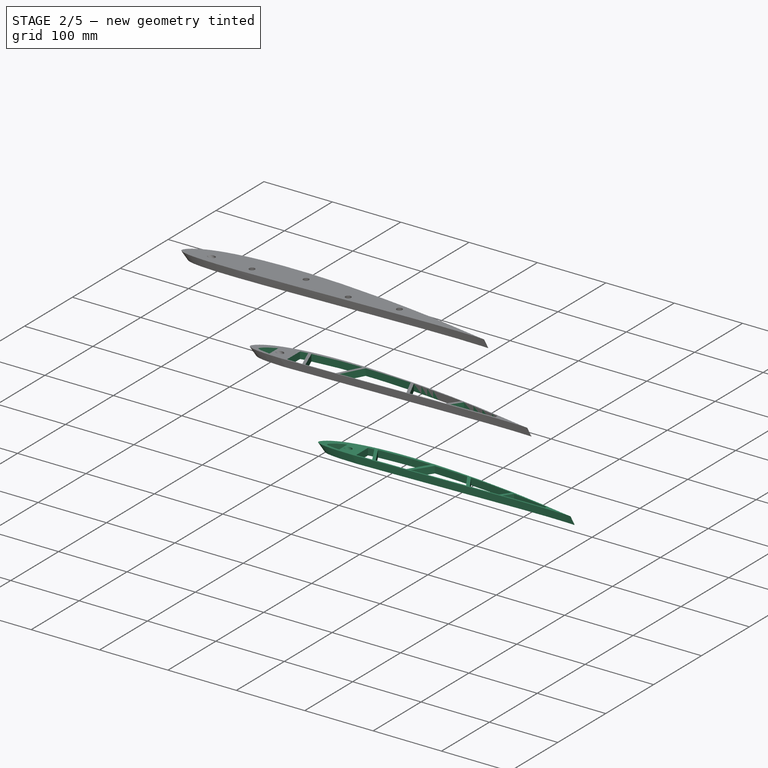
[diagram: stage 2 of 5 — iso view after this stage's code; geometry added in this stage tinted green]
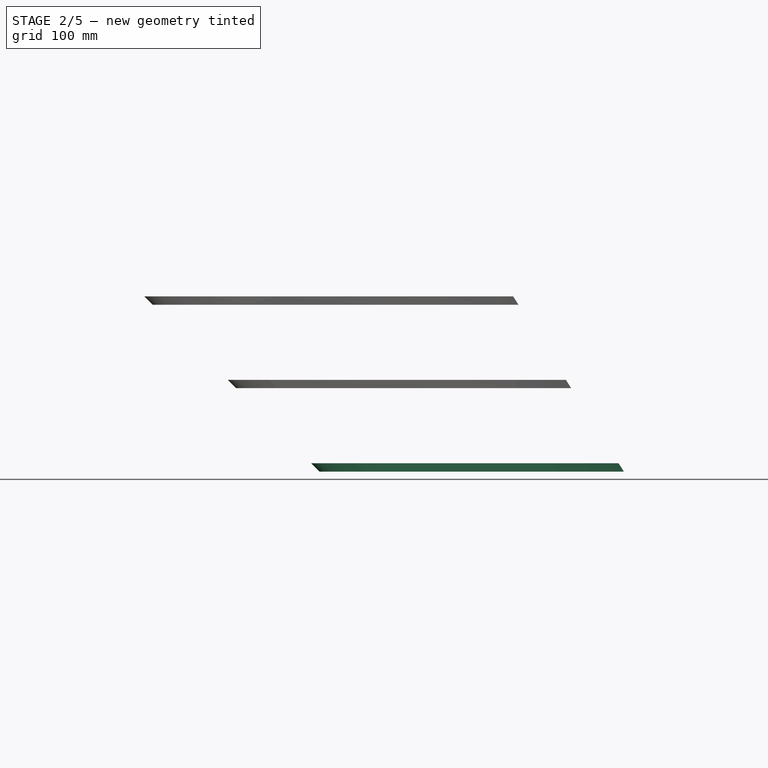
[diagram: stage 2 of 5 — front view after this stage's code; geometry added in this stage tinted green]
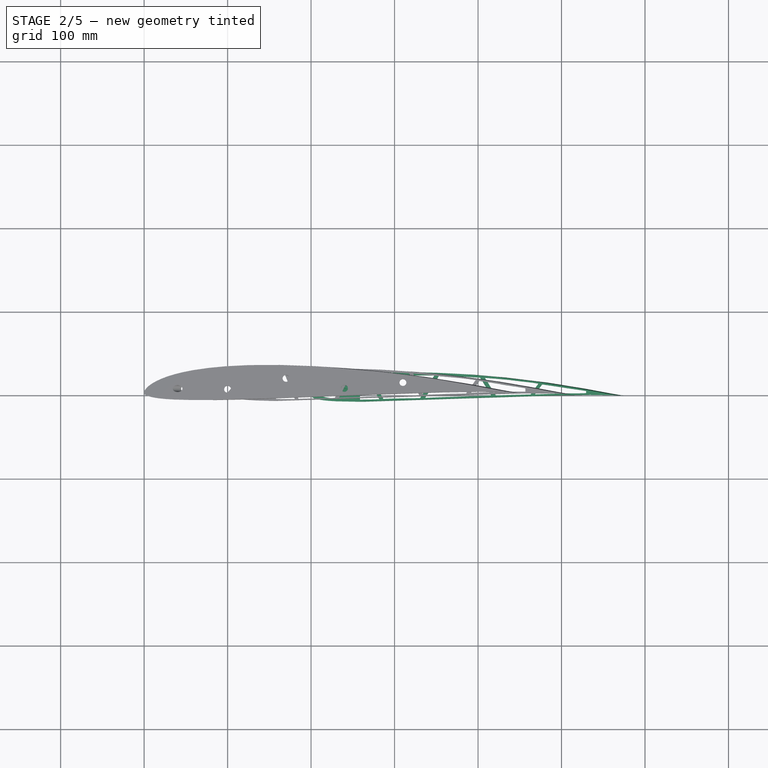
[diagram: stage 2 of 5 — top view after this stage's code; geometry added in this stage tinted green]
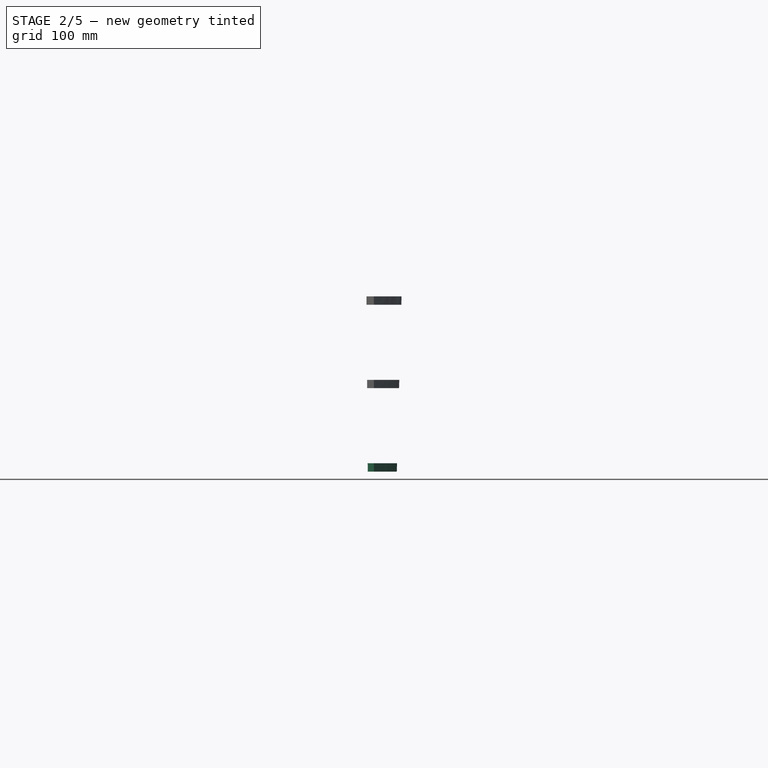
[diagram: stage 2 of 5 — right view after this stage's code; geometry added in this stage tinted green]
FEATURE [Sketcher::SketchObject] Sketch006
  ArcFitTolerance = 1e-06
  FullyConstrained = false
  MakeInternals = false
  Placement = pos=(600,0,-600) rot=(0,0,1;0rad)
  sketch-geometry (123):
    g0: BSplineCurve PolesCount=61 KnotsCount=61 Degree=3 IsPeriodic=1
    g1-g61: Circle [constr] x61 (B-spline internal-alignment scaffolding for g0; pole/knot coordinates omitted)
    g62-g122: GeomPoint [constr] x61 (B-spline internal-alignment scaffolding for g0; pole/knot coordinates omitted)
  constraints (123):
    c: InternalAlignment(g1,g0)
    c: Weight(g1) = 1
    c: InternalAlignment(g2,g0)
    c: Equal(g2,g1)
    c: InternalAlignment(g3,g0)
    c: Equal(g3,g1)
    c: InternalAlignment(g4,g0)
    c: Equal(g4,g1)
    c: InternalAlignment(g5,g0)
    c: Equal(g5,g1)
    c: InternalAlignment(g6,g0)
    c: Equal(g6,g1)
    c: InternalAlignment(g7,g0)
    c: Equal(g7,g1)
    c: InternalAlignment(g8,g0)
    c: Equal(g8,g1)
    c: InternalAlignment(g9,g0)
    c: Equal(g9,g1)
    c: InternalAlignment(g10,g0)
    c: Equal(g10,g1)
    c: InternalAlignment(g11,g0)
    c: Equal(g11,g1)
    c: InternalAlignment(g12,g0)
    c: Equal(g12,g1)
    c: InternalAlignment(g13,g0)
    c: Equal(g13,g1)
    c: InternalAlignment(g14,g0)
    c: Equal(g14,g1)
    c: InternalAlignment(g15,g0)
    c: Equal(g15,g1)
    c: InternalAlignment(g16,g0)
    c: Equal(g16,g1)
    c: InternalAlignment(g17,g0)
    c: Equal(g17,g1)
    c: InternalAlignment(g18,g0)
    c: Equal(g18,g1)
    c: InternalAlignment(g19,g0)
    c: Equal(g19,g1)
    c: InternalAlignment(g20,g0)
    c: Equal(g20,g1)
    c: InternalAlignment(g21,g0)
    c: Equal(g21,g1)
    c: InternalAlignment(g22,g0)
    c: Equal(g22,g1)
    c: InternalAlignment(g23,g0)
    c: Equal(g23,g1)
    c: InternalAlignment(g24,g0)
    c: Equal(g24,g1)
    c: InternalAlignment(g25,g0)
    c: Equal(g25,g1)
    c: InternalAlignment(g26,g0)
    c: Equal(g26,g1)
    c: InternalAlignment(g27,g0)
    c: Equal(g27,g1)
    c: InternalAlignment(g28,g0)
    c: Equal(g28,g1)
    c: InternalAlignment(g29,g0)
    c: Equal(g29,g1)
    c: InternalAlignment(g30,g0)
    c: Equal(g30,g1)
    c: InternalAlignment(g31,g0)
    c: Equal(g31,g1)
    c: InternalAlignment(g32,g0)
    c: Equal(g32,g1)
    c: InternalAlignment(g33,g0)
    c: Equal(g33,g1)
    c: InternalAlignment(g34,g0)
    c: Equal(g34,g1)
    c: InternalAlignment(g35,g0)
    c: Equal(g35,g1)
    c: InternalAlignment(g36,g0)
    c: Equal(g36,g1)
    c: InternalAlignment(g37,g0)
    c: Equal(g37,g1)
    c: InternalAlignment(g38,g0)
    c: Equal(g38,g1)
    c: InternalAlignment(g39,g0)
    c: Equal(g39,g1)
    c: InternalAlignment(g40,g0)
    c: Equal(g40,g1)
    c: InternalAlignment(g41,g0)
    c: Equal(g41,g1)
    c: InternalAlignment(g42,g0)
    c: Equal(g42,g1)
    c: InternalAlignment(g43,g0)
    c: Equal(g43,g1)
    c: InternalAlignment(g44,g0)
    c: Equal(g44,g1)
    c: InternalAlignment(g45,g0)
    c: Equal(g45,g1)
    c: InternalAlignment(g46,g0)
    c: Equal(g46,g1)
    c: InternalAlignment(g47,g0)
    c: Equal(g47,g1)
    c: InternalAlignment(g48,g0)
    c: Equal(g48,g1)
    c: InternalAlignment(g49,g0)
    c: Equal(g49,g1)
    c: InternalAlignment(g50,g0)
    c: Equal(g50,g1)
    c: InternalAlignment(g51,g0)
    c: Equal(g51,g1)
    c: InternalAlignment(g52,g0)
    c: Equal(g52,g1)
    c: InternalAlignment(g53,g0)
    c: Equal(g53,g1)
    c: InternalAlignment(g54,g0)
    c: Equal(g54,g1)
    c: InternalAlignment(g55,g0)
    c: Equal(g55,g1)
    c: InternalAlignment(g56,g0)
    c: Equal(g56,g1)
    c: InternalAlignment(g57,g0)
    c: Equal(g57,g1)
    c: InternalAlignment(g58,g0)
    c: Equal(g58,g1)
    c: InternalAlignment(g59,g0)
    c: Equal(g59,g1)
    c: InternalAlignment(g60,g0)
    c: Equal(g60,g1)
    c: InternalAlignment(g61,g0)
    c: Equal(g61,g1)
    c: InternalAlignment(g62-g122 -> g0) x61
FEATURE [Sketcher::SketchObject] Sketch007
  ArcFitTolerance = 1e-06
  FullyConstrained = false
  MakeInternals = false
  sketch-geometry (123):
    g0: BSplineCurve PolesCount=61 KnotsCount=61 Degree=3 IsPeriodic=1
    g1-g61: Circle [constr] x61 (B-spline internal-alignment scaffolding for g0; pole/knot coordinates omitted)
    g62-g122: GeomPoint [constr] x61 (B-spline internal-alignment scaffolding for g0; pole/knot coordinates omitted)
  constraints (123):
    c: InternalAlignment(g1,g0)
    c: Weight(g1) = 1
    c: InternalAlignment(g2,g0)
    c: Equal(g2,g1)
    c: InternalAlignment(g3,g0)
    c: Equal(g3,g1)
    c: InternalAlignment(g4,g0)
    c: Equal(g4,g1)
    c: InternalAlignment(g5,g0)
    c: Equal(g5,g1)
    c: InternalAlignment(g6,g0)
    c: Equal(g6,g1)
    c: InternalAlignment(g7,g0)
    c: Equal(g7,g1)
    c: InternalAlignment(g8,g0)
    c: Equal(g8,g1)
    c: InternalAlignment(g9,g0)
    c: Equal(g9,g1)
    c: InternalAlignment(g10,g0)
    c: Equal(g10,g1)
    c: InternalAlignment(g11,g0)
    c: Equal(g11,g1)
    c: InternalAlignment(g12,g0)
    c: Equal(g12,g1)
    c: InternalAlignment(g13,g0)
    c: Equal(g13,g1)
    c: InternalAlignment(g14,g0)
    c: Equal(g14,g1)
    c: InternalAlignment(g15,g0)
    c: Equal(g15,g1)
    c: InternalAlignment(g16,g0)
    c: Equal(g16,g1)
    c: InternalAlignment(g17,g0)
    c: Equal(g17,g1)
    c: InternalAlignment(g18,g0)
    c: Equal(g18,g1)
    c: InternalAlignment(g19,g0)
    c: Equal(g19,g1)
    c: InternalAlignment(g20,g0)
    c: Equal(g20,g1)
    c: InternalAlignment(g21,g0)
    c: Equal(g21,g1)
    c: InternalAlignment(g22,g0)
    c: Equal(g22,g1)
    c: InternalAlignment(g23,g0)
    c: Equal(g23,g1)
    c: InternalAlignment(g24,g0)
    c: Equal(g24,g1)
    c: InternalAlignment(g25,g0)
    c: Equal(g25,g1)
    c: InternalAlignment(g26,g0)
    c: Equal(g26,g1)
    c: InternalAlignment(g27,g0)
    c: Equal(g27,g1)
    c: InternalAlignment(g28,g0)
    c: Equal(g28,g1)
    c: InternalAlignment(g29,g0)
    c: Equal(g29,g1)
    c: InternalAlignment(g30,g0)
    c: Equal(g30,g1)
    c: InternalAlignment(g31,g0)
    c: Equal(g31,g1)
    c: InternalAlignment(g32,g0)
    c: Equal(g32,g1)
    c: InternalAlignment(g33,g0)
    c: Equal(g33,g1)
    c: InternalAlignment(g34,g0)
    c: Equal(g34,g1)
    c: InternalAlignment(g35,g0)
    c: Equal(g35,g1)
    c: InternalAlignment(g36,g0)
    c: Equal(g36,g1)
    c: InternalAlignment(g37,g0)
    c: Equal(g37,g1)
    c: InternalAlignment(g38,g0)
    c: Equal(g38,g1)
    c: InternalAlignment(g39,g0)
    c: Equal(g39,g1)
    c: InternalAlignment(g40,g0)
    c: Equal(g40,g1)
    c: InternalAlignment(g41,g0)
    c: Equal(g41,g1)
    c: InternalAlignment(g42,g0)
    c: Equal(g42,g1)
    c: InternalAlignment(g43,g0)
    c: Equal(g43,g1)
    c: InternalAlignment(g44,g0)
    c: Equal(g44,g1)
    c: InternalAlignment(g45,g0)
    c: Equal(g45,g1)
    c: InternalAlignment(g46,g0)
    c: Equal(g46,g1)
    c: InternalAlignment(g47,g0)
    c: Equal(g47,g1)
    c: InternalAlignment(g48,g0)
    c: Equal(g48,g1)
    c: InternalAlignment(g49,g0)
    c: Equal(g49,g1)
    c: InternalAlignment(g50,g0)
    c: Equal(g50,g1)
    c: InternalAlignment(g51,g0)
    c: Equal(g51,g1)
    c: InternalAlignment(g52,g0)
    c: Equal(g52,g1)
    c: InternalAlignment(g53,g0)
    c: Equal(g53,g1)
    c: InternalAlignment(g54,g0)
    c: Equal(g54,g1)
    c: InternalAlignment(g55,g0)
    c: Equal(g55,g1)
    c: InternalAlignment(g56,g0)
    c: Equal(g56,g1)
    c: InternalAlignment(g57,g0)
    c: Equal(g57,g1)
    c: InternalAlignment(g58,g0)
    c: Equal(g58,g1)
    c: InternalAlignment(g59,g0)
    c: Equal(g59,g1)
    c: InternalAlignment(g60,g0)
    c: Equal(g60,g1)
    c: InternalAlignment(g61,g0)
    c: Equal(g61,g1)
    c: InternalAlignment(g62-g122 -> g0) x61
FEATURE [PartDesign::AdditiveLoft] AdditiveLoft002
  Closed = false
  Profile = -> Sketch007
  Refine = true
  Ruled = false
  Sections = -> [Sketch006]
  Suppressed = false
FEATURE [PartDesign::Plane] DatumPlane002
  AttachmentOffset = pos=(0,0,0) rot=(0,-1,0;0.785398rad)
  AttachmentSupport = -> [AdditiveLoft002]
  Length = 554.997
  MapMode = 5
  Placement = pos=(0,0,0) rot=(0,-1,0;0.785398rad)
  ResizeMode = 0
  Width = 85.8053
FEATURE [Sketcher::SketchObject] Sketch008
  ArcFitTolerance = 1e-06
  AttachmentSupport = -> [DatumPlane002]
  FullyConstrained = false
  MakeInternals = false
  MapMode = 5
  Placement = pos=(0,0,0) rot=(0,-1,0;0.785398rad)
  sketch-geometry (1):
    g0: Circle CenterX=28.3343 CenterY=4.75298 CenterZ=0 NormalX=0 NormalY=0 NormalZ=1 AngleXU=0 Radius=4.1
  constraints (1):
    c: Diameter(g0) = 8.2
FEATURE [PartDesign::Pocket] Pocket002
  BaseFeature = -> AdditiveLoft002
  Direction = (0.707107,0,-0.707107)
  Length = 1000
  Length2 = 5
  Profile = -> Sketch008
  ReferenceAxis = -> Sketch008 [N_Axis]
  Refine = true
  Suppressed = false
  Type = 0
FEATURE [Sketcher::SketchObject] Sketch024
  ArcFitTolerance = 1e-06
  AttachmentSupport = -> [Pocket002]
  FullyConstrained = false
  MakeInternals = false
  MapMode = 5
  sketch-geometry (4):
    g0: LineSegment StartX=-34.6749 StartY=103.814 StartZ=0 EndX=-34.6749 EndY=-124.102 EndZ=0
    g1: LineSegment StartX=-34.6749 StartY=-124.102 StartZ=0 EndX=635.695 EndY=-124.102 EndZ=0
    g2: LineSegment StartX=635.695 StartY=-124.102 StartZ=0 EndX=635.695 EndY=103.814 EndZ=0
    g3: LineSegment StartX=635.695 StartY=103.814 StartZ=0 EndX=-34.6749 EndY=103.814 EndZ=0
  constraints (8):
    c: Coincident(g0,g1)
    c: Coincident(g1,g2)
    c: Coincident(g2,g3)
    c: Coincident(g3,g0)
    c: Vertical(g0)
    c: Vertical(g2)
    c: Horizontal(g1)
    c: Horizontal(g3)
FEATURE [PartDesign::Pocket] Pocket010
  BaseFeature = -> Pocket002
  Direction = (0,0,-1)
  Length = 200
  Length2 = 5
  Profile = -> Sketch024
  ReferenceAxis = -> Sketch024 [N_Axis]
  Refine = true
  Suppressed = false
  Type = 0
FEATURE [Sketcher::SketchObject] Sketch025
  ArcFitTolerance = 1e-06
  AttachmentSupport = -> [Pocket010]
  FullyConstrained = false
  MakeInternals = false
  MapMode = 5
  Placement = pos=(0,0,-600) rot=(1,0,0;3.14159rad)
  sketch-geometry (4):
    g0: LineSegment StartX=120.377 StartY=171.986 StartZ=0 EndX=120.377 EndY=-157.538 EndZ=0
    g1: LineSegment StartX=120.377 StartY=-157.538 StartZ=0 EndX=998.806 EndY=-157.538 EndZ=0
    g2: LineSegment StartX=998.806 StartY=-157.538 StartZ=0 EndX=998.806 EndY=171.986 EndZ=0
    g3: LineSegment StartX=998.806 StartY=171.986 StartZ=0 EndX=120.377 EndY=171.986 EndZ=0
  constraints (8):
    c: Coincident(g0,g1)
    c: Coincident(g1,g2)
    c: Coincident(g2,g3)
    c: Coincident(g3,g0)
    c: Vertical(g0)
    c: Vertical(g2)
    c: Horizontal(g1)
    c: Horizontal(g3)
FEATURE [PartDesign::Pocket] Pocket011
  BaseFeature = -> Pocket010
  Direction = (0,0,1)
  Length = 390
  Length2 = 5
  Profile = -> Sketch025
  ReferenceAxis = -> Sketch025 [N_Axis]
  Refine = true
  Suppressed = false
  Type = 0
FEATURE [PartDesign::Body] Body007
  AllowCompound = false
  Group = -> [Sketch044,Sketch043,AdditiveLoft007,DatumPlane009,Sketch045,Pocket024,Sketch046,Pocket025,Sketch047,Pocket026,Sketch048,Pocket027,Sketch049,Pad005,DatumPlane010,Sketch050,Pad006,Sketch052,Pocket029]
  Origin = -> Origin007
  Tip = -> Pocket029
FEATURE [Sketcher::SketchObject] Sketch053
  ArcFitTolerance = 1e-06
  AttachmentSupport = -> [Pocket011]
  FullyConstrained = false
  MakeInternals = false
  MapMode = 5
  Placement = pos=(0,0,-210) rot=(1,0,0;3.14159rad)
  sketch-geometry (69):
    g0: LineSegment StartX=232.935 StartY=-13.2277 StartZ=0 EndX=232.935 EndY=3.96212 EndZ=0
    g1: LineSegment StartX=232.935 StartY=3.96212 StartZ=0 EndX=230.333 EndY=3.82301 EndZ=0
    g2: LineSegment StartX=230.333 StartY=3.82301 StartZ=0 EndX=226.374 EndY=3.53509 EndZ=0
    g3: LineSegment StartX=226.374 StartY=3.53509 StartZ=0 EndX=223.207 EndY=3.1032 EndZ=0
    g4: LineSegment StartX=223.207 StartY=3.1032 StartZ=0 EndX=219.176 EndY=2.45538 EndZ=0
    g5: LineSegment StartX=219.176 StartY=2.45538 StartZ=0 EndX=215.793 EndY=1.80756 EndZ=0
    g6: LineSegment StartX=215.793 StartY=1.80756 StartZ=0 EndX=213.633 EndY=1.08775 EndZ=0
    g7: LineSegment StartX=213.633 StartY=1.08775 StartZ=0 EndX=212.553 EndY=0 EndZ=0
    g8: LineSegment StartX=212.553 StartY=0 StartZ=0 EndX=213.273 EndY=-1.86345 EndZ=0
    g9: LineSegment StartX=213.273 StartY=-1.86345 StartZ=0 EndX=214.569 EndY=-3.37504 EndZ=0
    g10: LineSegment StartX=214.569 StartY=-3.37504 StartZ=0 EndX=216.512 EndY=-4.88663 EndZ=0
    g11: LineSegment StartX=216.512 StartY=-4.88663 StartZ=0 EndX=218.888 EndY=-6.61416 EndZ=0
    g12: LineSegment StartX=218.888 StartY=-6.61416 StartZ=0 EndX=221.623 EndY=-8.26971 EndZ=0
    g13: LineSegment StartX=221.623 StartY=-8.26971 StartZ=0 EndX=224.862 EndY=-9.85328 EndZ=0
    g14: LineSegment StartX=224.862 StartY=-9.85328 StartZ=0 EndX=227.597 EndY=-11.1489 EndZ=0
    g15: LineSegment StartX=227.597 StartY=-11.1489 StartZ=0 EndX=230.621 EndY=-12.3726 EndZ=0
    g16: LineSegment StartX=230.621 StartY=-12.3726 StartZ=0 EndX=232.935 EndY=-13.2277 EndZ=0
    g17: LineSegment StartX=529.448 StartY=-5.42158 StartZ=0 EndX=529.373 EndY=-2.77124 EndZ=0
    g18: LineSegment StartX=529.373 StartY=-2.77124 StartZ=0 EndX=518.644 EndY=-2.45257 EndZ=0
    g19: LineSegment StartX=518.644 StartY=-2.45257 StartZ=0 EndX=507.384 EndY=-2.45257 EndZ=0
    g20: LineSegment StartX=507.384 StartY=-2.45257 StartZ=0 EndX=492.088 EndY=-2.1339 EndZ=0
    g21: LineSegment StartX=492.088 StartY=-2.1339 StartZ=0 EndX=474.647 EndY=-1.51705 EndZ=0
    g22: LineSegment StartX=474.647 StartY=-1.51705 StartZ=0 EndX=468.174 EndY=-1.28599 EndZ=0
    g23: LineSegment StartX=468.174 StartY=-1.28599 StartZ=0 EndX=476.745 EndY=-13.3358 EndZ=0
    g24: LineSegment StartX=476.745 StartY=-13.3358 StartZ=0 EndX=493.617 EndY=-10.9006 EndZ=0
    g25: LineSegment StartX=493.617 StartY=-10.9006 StartZ=0 EndX=505.184 EndY=-9.07429 EndZ=0
    g26: LineSegment StartX=505.184 StartY=-9.07429 StartZ=0 EndX=516.49 EndY=-7.42187 EndZ=0
    g27: LineSegment StartX=516.49 StartY=-7.42187 StartZ=0 EndX=524.752 EndY=-6.2043 EndZ=0
    g28: LineSegment StartX=524.752 StartY=-6.2043 StartZ=0 EndX=529.448 EndY=-5.42158 EndZ=0
    g29: LineSegment StartX=472.33 StartY=-14.3284 StartZ=0 EndX=463.007 EndY=-1.22045 EndZ=0
    g30: LineSegment StartX=463.007 StartY=-1.22045 StartZ=0 EndX=436.979 EndY=-0.55496 EndZ=0
    g31: LineSegment StartX=436.979 StartY=-0.55496 StartZ=0 EndX=421.281 EndY=-0.0939564 EndZ=0
    g32: LineSegment StartX=421.281 StartY=-0.0939564 StartZ=0 EndX=408.215 EndY=-21.1936 EndZ=0
    g33: LineSegment StartX=408.215 StartY=-21.1936 StartZ=0 EndX=422.281 EndY=-20.1232 EndZ=0
    g34: LineSegment StartX=422.281 StartY=-20.1232 StartZ=0 EndX=436.37 EndY=-18.8185 EndZ=0
    g35: LineSegment StartX=436.37 StartY=-18.8185 StartZ=0 EndX=450.546 EndY=-17.0789 EndZ=0
    g36: LineSegment StartX=450.546 StartY=-17.0789 StartZ=0 EndX=464.722 EndY=-15.5133 EndZ=0
    g37: LineSegment StartX=464.722 StartY=-15.5133 StartZ=0 EndX=472.33 EndY=-14.3284 EndZ=0
    g38: LineSegment StartX=402.538 StartY=-21.4405 StartZ=0 EndX=415.866 EndY=0.0815263 EndZ=0
    g39: LineSegment StartX=415.866 StartY=0.0815263 StartZ=0 EndX=393.968 EndY=0.858652 EndZ=0
    g40: LineSegment StartX=393.968 StartY=0.858652 StartZ=0 EndX=379.742 EndY=1.33409 EndZ=0
    g41: LineSegment StartX=379.742 StartY=1.33409 StartZ=0 EndX=367.191 EndY=1.7451 EndZ=0
    g42: LineSegment StartX=367.191 StartY=1.7451 StartZ=0 EndX=355.656 EndY=2.10097 EndZ=0
    g43: LineSegment StartX=355.656 StartY=2.10097 StartZ=0 EndX=344.334 EndY=2.58371 EndZ=0
    g44: LineSegment StartX=344.334 StartY=2.58371 StartZ=0 EndX=336.607 EndY=2.93983 EndZ=0
    g45: LineSegment StartX=336.607 StartY=2.93983 StartZ=0 EndX=353.364 EndY=-23.826 EndZ=0
    g46: LineSegment StartX=353.364 StartY=-23.826 StartZ=0 EndX=368.687 EndY=-23.2476 EndZ=0
    g47: LineSegment StartX=368.687 StartY=-23.2476 StartZ=0 EndX=385.349 EndY=-22.4641 EndZ=0
    g48: LineSegment StartX=385.349 StartY=-22.4641 StartZ=0 EndX=397.881 EndY=-21.6807 EndZ=0
    g49: LineSegment StartX=397.881 StartY=-21.6807 StartZ=0 EndX=402.538 EndY=-21.4405 EndZ=0
    g50: LineSegment StartX=347.682 StartY=-24.0752 StartZ=0 EndX=330.602 EndY=3.20634 EndZ=0
    g51: LineSegment StartX=330.602 StartY=3.20634 StartZ=0 EndX=312.355 EndY=3.43929 EndZ=0
    g52: LineSegment StartX=312.355 StartY=3.43929 StartZ=0 EndX=297.314 EndY=3.73057 EndZ=0
    g53: LineSegment StartX=297.314 StartY=3.73057 StartZ=0 EndX=286.58 EndY=4.11889 EndZ=0
    g54: LineSegment StartX=286.58 StartY=4.11889 StartZ=0 EndX=271.742 EndY=-21.5893 EndZ=0
    g55: LineSegment StartX=271.742 StartY=-21.5893 StartZ=0 EndX=279.89 EndY=-22.1672 EndZ=0
    g56: LineSegment StartX=279.89 StartY=-22.1672 StartZ=0 EndX=293.298 EndY=-23.0415 EndZ=0
    g57: LineSegment StartX=293.298 StartY=-23.0415 StartZ=0 EndX=308.688 EndY=-23.8574 EndZ=0
    g58: LineSegment StartX=308.688 StartY=-23.8574 StartZ=0 EndX=319.648 EndY=-24.0905 EndZ=0
    g59: LineSegment StartX=319.648 StartY=-24.0905 StartZ=0 EndX=332.415 EndY=-24.1486 EndZ=0
    g60: LineSegment StartX=332.415 StartY=-24.1486 StartZ=0 EndX=341.218 EndY=-24.0902 EndZ=0
    g61: LineSegment StartX=341.218 StartY=-24.0902 StartZ=0 EndX=347.682 EndY=-24.0752 EndZ=0
    g62: LineSegment StartX=281.696 StartY=4.48378 StartZ=0 EndX=267.107 EndY=-20.7944 EndZ=0
    g63: LineSegment StartX=267.107 StartY=-20.7944 StartZ=0 EndX=262.676 EndY=-20.2115 EndZ=0
    g64: LineSegment StartX=262.676 StartY=-20.2115 StartZ=0 EndX=258.595 EndY=-19.7452 EndZ=0
    g65: LineSegment StartX=258.595 StartY=-19.7452 StartZ=0 EndX=258.595 EndY=4.97283 EndZ=0
    g66: LineSegment StartX=258.595 StartY=4.97283 StartZ=0 EndX=267.689 EndY=4.85636 EndZ=0
    g67: LineSegment StartX=267.689 StartY=4.85636 StartZ=0 EndX=275.21 EndY=4.73986 EndZ=0
    g68: LineSegment StartX=275.21 StartY=4.73986 StartZ=0 EndX=281.696 EndY=4.48378 EndZ=0
  constraints (76):
    c: Vertical(g0)
    c: Coincident(g0,g1)
    c: Coincident(g1,g2)
    c: Coincident(g2,g3)
    c: Coincident(g3,g4)
    c: Coincident(g4,g5)
    c: Coincident(g5,g6)
    c: Coincident(g6,g7)
    c: PointOnObject(g7,g-1)
    c: Coincident(g7,g8)
    c: Coincident(g8,g9)
    c: Coincident(g9,g10)
    c: Coincident(g10,g11)
    c: Coincident(g11,g12)
    c: Coincident(g12,g13)
    c: Coincident(g13,g14)
    c: Coincident(g14,g15)
    c: Coincident(g15,g16)
    c: Coincident(g0,g16)
    c: Coincident(g17,g18)
    c: Coincident(g18,g19)
    c: Coincident(g19,g20)
    c: Coincident(g20,g21)
    c: Coincident(g21,g22)
    c: Coincident(g22,g23)
    c: Coincident(g23,g24)
    c: Coincident(g24,g25)
    c: Coincident(g25,g26)
    c: Coincident(g26,g27)
    c: Coincident(g27,g28)
    c: Coincident(g28,g17)
    c: Parallel(g23,g29)
    c: Coincident(g29,g30)
    c: Coincident(g30,g31)
    c: Coincident(g31,g32)
    c: Coincident(g32,g33)
    c: Coincident(g33,g34)
    c: Coincident(g34,g35)
    c: Coincident(g35,g36)
    c: Coincident(g36,g37)
    c: Coincident(g37,g29)
    c: Coincident(g38,g39)
    c: Coincident(g39,g40)
    c: Coincident(g40,g41)
    c: Coincident(g41,g42)
    c: Coincident(g42,g43)
    c: Coincident(g43,g44)
    c: Coincident(g44,g45)
    c: Coincident(g45,g46)
    c: Coincident(g46,g47)
    c: Coincident(g47,g48)
    c: Coincident(g48,g49)
    c: Coincident(g49,g38)
    c: Parallel(g38,g32)
    c: Coincident(g50,g51)
    c: Coincident(g51,g52)
    c: Coincident(g52,g53)
    c: Coincident(g53,g54)
    c: Coincident(g54,g55)
    c: Coincident(g55,g56)
    c: Coincident(g56,g57)
    c: Coincident(g57,g58)
    c: Coincident(g58,g59)
    c: Coincident(g59,g60)
    c: Coincident(g60,g61)
    c: Coincident(g61,g50)
    c: Parallel(g45,g50)
    c: Coincident(g62,g63)
    c: Coincident(g63,g64)
    c: Coincident(g64,g65)
    c: Vertical(g65)
    c: Coincident(g65,g66)
    c: Coincident(g66,g67)
    c: Coincident(g67,g68)
    c: Coincident(g68,g62)
    c: Parallel(g54,g62)
FEATURE [PartDesign::Pocket] Pocket030
  BaseFeature = -> Pocket011
  Direction = (0,0,1)
  Length = 15
  Length2 = 5
  Profile = -> Sketch053
  ReferenceAxis = -> Sketch053 [N_Axis]
  Refine = true
  Suppressed = false
  Type = 0
FEATURE [PartDesign::Body] Body002
  AllowCompound = false
  Group = -> [Sketch007,Sketch006,AdditiveLoft002,DatumPlane002,Sketch008,Pocket002,Sketch024,Pocket010,Sketch025,Pocket011,Sketch053,Pocket030,Sketch060,Pocket036]
  Origin = -> Origin002
  Tip = -> Pocket036
FEATURE [Sketcher::SketchObject] Sketch062
  ArcFitTolerance = 1e-06
  AttachmentSupport = -> [Pocket009]
  FullyConstrained = false
  MakeInternals = false
  MapMode = 5
  Placement = pos=(0,0,-110) rot=(1,0,0;3.14159rad)
  sketch-geometry (80):
    g0: LineSegment StartX=131.615 StartY=-13.8563 StartZ=0 EndX=131.615 EndY=4.74903 EndZ=0
    g1: LineSegment StartX=131.615 StartY=4.74903 StartZ=0 EndX=126.762 EndY=4.05077 EndZ=0
    g2: LineSegment StartX=126.762 StartY=4.05077 StartZ=0 EndX=121.398 EndY=3.23596 EndZ=0
    g3: LineSegment StartX=121.398 StartY=3.23596 StartZ=0 EndX=117.609 EndY=2.65394 EndZ=0
    g4: LineSegment StartX=117.609 StartY=2.65394 StartZ=0 EndX=114.461 EndY=1.60538 EndZ=0
    g5: LineSegment StartX=114.461 StartY=1.60538 StartZ=0 EndX=112.828 EndY=0.731336 EndZ=0
    g6: LineSegment StartX=112.828 StartY=0.731336 StartZ=0 EndX=112.128 EndY=0 EndZ=0
    g7: LineSegment StartX=112.128 StartY=0 StartZ=0 EndX=112.303 EndY=-0.95915 EndZ=0
    g8: LineSegment StartX=112.303 StartY=-0.95915 StartZ=0 EndX=113.119 EndY=-2.30019 EndZ=0
    g9: LineSegment StartX=113.119 StartY=-2.30019 StartZ=0 EndX=115.159 EndY=-4.3994 EndZ=0
    g10: LineSegment StartX=115.159 StartY=-4.3994 StartZ=0 EndX=118.073 EndY=-6.84862 EndZ=0
    g11: LineSegment StartX=118.073 StartY=-6.84862 StartZ=0 EndX=121.395 EndY=-8.88986 EndZ=0
    g12: LineSegment StartX=121.395 StartY=-8.88986 StartZ=0 EndX=125.243 EndY=-10.8146 EndZ=0
    g13: LineSegment StartX=125.243 StartY=-10.8146 StartZ=0 EndX=129.381 EndY=-12.9144 EndZ=0
    g14: LineSegment StartX=129.381 StartY=-12.9144 StartZ=0 EndX=131.615 EndY=-13.8563 EndZ=0
    g15: LineSegment StartX=456.728 StartY=-6.97805 StartZ=0 EndX=456.728 EndY=-2.77376 EndZ=0
    g16: LineSegment StartX=456.728 StartY=-2.77376 StartZ=0 EndX=444.473 EndY=-2.77376 EndZ=0
    g17: LineSegment StartX=444.473 StartY=-2.77376 StartZ=0 EndX=430.721 EndY=-2.53251 EndZ=0
    g18: LineSegment StartX=430.721 StartY=-2.53251 StartZ=0 EndX=419.576 EndY=-2.29126 EndZ=0
    g19: LineSegment StartX=419.576 StartY=-2.29126 StartZ=0 EndX=405.248 EndY=-1.99854 EndZ=0
    g20: LineSegment StartX=405.248 StartY=-1.99854 StartZ=0 EndX=391.498 EndY=-1.51681 EndZ=0
    g21: LineSegment StartX=391.498 StartY=-1.51681 StartZ=0 EndX=401.723 EndY=-15.753 EndZ=0
    g22: LineSegment StartX=401.723 StartY=-15.753 StartZ=0 EndX=417.216 EndY=-13.54 EndZ=0
    g23: LineSegment StartX=417.216 StartY=-13.54 StartZ=0 EndX=432.077 EndY=-10.9345 EndZ=0
    g24: LineSegment StartX=432.077 StartY=-10.9345 StartZ=0 EndX=447.999 EndY=-8.4738 EndZ=0
    g25: LineSegment StartX=447.999 StartY=-8.4738 StartZ=0 EndX=456.728 EndY=-6.97805 EndZ=0
    g26: LineSegment StartX=397.242 StartY=-16.8147 StartZ=0 EndX=385.617 EndY=-0.630676 EndZ=0
    g27: LineSegment StartX=385.617 StartY=-0.630676 StartZ=0 EndX=375.298 EndY=-0.398599 EndZ=0
    g28: LineSegment StartX=375.298 StartY=-0.398599 StartZ=0 EndX=363.461 EndY=-0.159949 EndZ=0
    g29: LineSegment StartX=363.461 StartY=-0.159949 StartZ=0 EndX=353.629 EndY=0.221889 EndZ=0
    g30: LineSegment StartX=353.629 StartY=0.221889 StartZ=0 EndX=343.415 EndY=0.603728 EndZ=0
    g31: LineSegment StartX=343.415 StartY=0.603728 StartZ=0 EndX=334.198 EndY=0.953662 EndZ=0
    g32: LineSegment StartX=334.198 StartY=0.953662 StartZ=0 EndX=322.257 EndY=-24.5211 EndZ=0
    g33: LineSegment StartX=322.257 StartY=-24.5211 StartZ=0 EndX=334.103 EndY=-23.4378 EndZ=0
    g34: LineSegment StartX=334.103 StartY=-23.4378 StartZ=0 EndX=343.031 EndY=-22.6097 EndZ=0
    g35: LineSegment StartX=343.031 StartY=-22.6097 StartZ=0 EndX=352.43 EndY=-21.684 EndZ=0
    g36: LineSegment StartX=352.43 StartY=-21.684 StartZ=0 EndX=360.745 EndY=-20.8145 EndZ=0
    g37: LineSegment StartX=360.745 StartY=-20.8145 StartZ=0 EndX=371.414 EndY=-19.8817 EndZ=0
    g38: LineSegment StartX=371.414 StartY=-19.8817 StartZ=0 EndX=379.75 EndY=-19.1238 EndZ=0
    g39: LineSegment StartX=379.75 StartY=-19.1238 StartZ=0 EndX=388.728 EndY=-18.0162 EndZ=0
    g40: LineSegment StartX=388.728 StartY=-18.0162 StartZ=0 EndX=397.242 EndY=-16.8147 EndZ=0
    g41: LineSegment StartX=329.504 StartY=1.30384 StartZ=0 EndX=317.298 EndY=-24.7356 EndZ=0
    g42: LineSegment StartX=317.298 StartY=-24.7356 StartZ=0 EndX=304.506 EndY=-25.3307 EndZ=0
    g43: LineSegment StartX=304.506 StartY=-25.3307 StartZ=0 EndX=289.375 EndY=-26.1898 EndZ=0
    g44: LineSegment StartX=289.375 StartY=-26.1898 StartZ=0 EndX=272.288 EndY=-26.8103 EndZ=0
    g45: LineSegment StartX=272.288 StartY=-26.8103 StartZ=0 EndX=259.745 EndY=-27.0379 EndZ=0
    g46: LineSegment StartX=259.745 StartY=-27.0379 StartZ=0 EndX=249.901 EndY=-27.0493 EndZ=0
    g47: LineSegment StartX=249.901 StartY=-27.0493 StartZ=0 EndX=233.501 EndY=4.36556 EndZ=0
    g48: LineSegment StartX=233.501 StartY=4.36556 StartZ=0 EndX=243.094 EndY=3.92907 EndZ=0
    g49: LineSegment StartX=243.094 StartY=3.92907 StartZ=0 EndX=253.595 EndY=3.78588 EndZ=0
    g50: LineSegment StartX=253.595 StartY=3.78588 StartZ=0 EndX=265.05 EndY=3.40404 EndZ=0
    g51: LineSegment StartX=265.05 StartY=3.40404 StartZ=0 EndX=275.169 EndY=3.11766 EndZ=0
    g52: LineSegment StartX=275.169 StartY=3.11766 StartZ=0 EndX=286.396 EndY=2.97312 EndZ=0
    g53: LineSegment StartX=286.396 StartY=2.97312 StartZ=0 EndX=297.231 EndY=2.59128 EndZ=0
    g54: LineSegment StartX=297.231 StartY=2.59128 StartZ=0 EndX=306.252 EndY=2.20944 EndZ=0
    g55: LineSegment StartX=306.252 StartY=2.20944 StartZ=0 EndX=313.144 EndY=1.92289 EndZ=0
    g56: LineSegment StartX=313.144 StartY=1.92289 StartZ=0 EndX=322.015 EndY=1.57501 EndZ=0
    g57: LineSegment StartX=322.015 StartY=1.57501 StartZ=0 EndX=329.504 EndY=1.30384 EndZ=0
    g58: LineSegment StartX=245.031 StartY=-27.2218 StartZ=0 EndX=228.388 EndY=4.65846 EndZ=0
    g59: LineSegment StartX=245.031 StartY=-27.2218 StartZ=0 EndX=235.231 EndY=-27.2331 EndZ=0
    g60: LineSegment StartX=235.231 StartY=-27.2331 StartZ=0 EndX=223.865 EndY=-27.0543 EndZ=0
    g61: LineSegment StartX=223.865 StartY=-27.0543 StartZ=0 EndX=212.219 EndY=-26.7202 EndZ=0
    g62: LineSegment StartX=212.219 StartY=-26.7202 StartZ=0 EndX=198.319 EndY=-25.527 EndZ=0
    g63: LineSegment StartX=198.319 StartY=-25.527 StartZ=0 EndX=187.341 EndY=-24.5724 EndZ=0
    g64: LineSegment StartX=187.341 StartY=-24.5724 StartZ=0 EndX=179.37 EndY=-23.761 EndZ=0
    g65: LineSegment StartX=179.37 StartY=-23.761 StartZ=0 EndX=173.309 EndY=-23.2491 EndZ=0
    g66: LineSegment StartX=173.309 StartY=-23.2491 StartZ=0 EndX=184.954 EndY=5.81717 EndZ=0
    g67: LineSegment StartX=184.954 StartY=5.81717 StartZ=0 EndX=192.295 EndY=5.53943 EndZ=0
    g68: LineSegment StartX=192.295 StartY=5.53943 StartZ=0 EndX=201.134 EndY=5.37441 EndZ=0
    g69: LineSegment StartX=201.134 StartY=5.37441 StartZ=0 EndX=208.529 EndY=5.18341 EndZ=0
    g70: LineSegment StartX=208.529 StartY=5.18341 StartZ=0 EndX=215.787 EndY=5.0403 EndZ=0
    g71: LineSegment StartX=215.787 StartY=5.0403 StartZ=0 EndX=221.997 EndY=4.84856 EndZ=0
    g72: LineSegment StartX=221.997 StartY=4.84856 StartZ=0 EndX=228.388 EndY=4.65846 EndZ=0
    g73: LineSegment StartX=168.938 StartY=-22.8012 StartZ=0 EndX=180.507 EndY=6.07631 EndZ=0
    g74: LineSegment StartX=180.507 StartY=6.07631 StartZ=0 EndX=170.252 EndY=6.17293 EndZ=0
    g75: LineSegment StartX=170.252 StartY=6.17293 StartZ=0 EndX=162.95 EndY=6.07748 EndZ=0
    g76: LineSegment StartX=162.95 StartY=6.07748 StartZ=0 EndX=158.204 EndY=5.93976 EndZ=0
    g77: LineSegment StartX=158.204 StartY=5.93976 StartZ=0 EndX=158.204 EndY=-21.1102 EndZ=0
    g78: LineSegment StartX=158.204 StartY=-21.1102 StartZ=0 EndX=162.285 EndY=-21.9264 EndZ=0
    g79: LineSegment StartX=162.285 StartY=-21.9264 StartZ=0 EndX=168.938 EndY=-22.8012 EndZ=0
  constraints (88):
    c: Vertical(g0)
    c: Coincident(g0,g1)
    c: Coincident(g1,g2)
    c: Coincident(g2,g3)
    c: Coincident(g3,g4)
    c: Coincident(g4,g5)
    c: Coincident(g5,g6)
    c: PointOnObject(g6,g-1)
    c: Coincident(g6,g7)
    c: Coincident(g7,g8)
    c: Coincident(g8,g9)
    c: Coincident(g9,g10)
    c: Coincident(g10,g11)
    c: Coincident(g11,g12)
    c: Coincident(g12,g13)
    c: Coincident(g13,g14)
    c: Coincident(g14,g0)
    c: Vertical(g15)
    c: Coincident(g15,g16)
    c: Coincident(g16,g17)
    c: Coincident(g17,g18)
    c: Coincident(g18,g19)
    c: Coincident(g19,g20)
    c: Coincident(g20,g21)
    c: Coincident(g21,g22)
    c: Coincident(g22,g23)
    c: Coincident(g23,g24)
    c: Coincident(g24,g25)
    c: Coincident(g25,g15)
    c: Coincident(g26,g27)
    c: Coincident(g27,g28)
    c: Coincident(g28,g29)
    c: Coincident(g29,g30)
    c: Coincident(g30,g31)
    c: Coincident(g31,g32)
    c: Coincident(g32,g33)
    c: Coincident(g33,g34)
    c: Coincident(g34,g35)
    c: Coincident(g35,g36)
    c: Coincident(g36,g37)
    c: Coincident(g37,g38)
    c: Coincident(g38,g39)
    c: Coincident(g39,g40)
    c: Coincident(g40,g26)
    c: Parallel(g21,g26)
    c: Parallel(g32,g41)
    c: Coincident(g41,g42)
    c: Coincident(g42,g43)
    c: Coincident(g43,g44)
    c: Coincident(g44,g45)
    c: Coincident(g45,g46)
    c: Coincident(g47,g48)
    c: Coincident(g48,g49)
    c: Coincident(g49,g50)
    c: Coincident(g50,g51)
    c: Coincident(g51,g52)
    c: Coincident(g52,g53)
    c: Coincident(g53,g54)
    c: Coincident(g54,g55)
    c: Coincident(g55,g56)
    c: Coincident(g56,g57)
    c: Coincident(g57,g41)
    c: Parallel(g47,g58)
    c: Coincident(g58,g59)
    c: Coincident(g59,g60)
    c: Coincident(g60,g61)
    c: Coincident(g61,g62)
    c: Coincident(g62,g63)
    c: Coincident(g63,g64)
    c: Coincident(g64,g65)
    c: Coincident(g65,g66)
    c: Coincident(g66,g67)
    c: Coincident(g67,g68)
    c: Coincident(g68,g69)
    c: Coincident(g69,g70)
    c: Coincident(g70,g71)
    c: Coincident(g71,g72)
    c: Coincident(g72,g58)
    c: Coincident(g73,g74)
    c: Coincident(g74,g75)
    c: Coincident(g75,g76)
    c: Coincident(g76,g77)
    c: Vertical(g77)
    c: Coincident(g77,g78)
    c: Coincident(g78,g79)
    c: Coincident(g79,g73)
    c: Parallel(g73,g66)
    c: Coincident(g47,g46)
FEATURE [PartDesign::Pocket] Pocket037
  BaseFeature = -> Pocket009
  Direction = (0,0,1)
  Length = 15
  Length2 = 5
  Profile = -> Sketch062
  ReferenceAxis = -> Sketch062 [N_Axis]
  Refine = true
  Suppressed = false
  Type = 0
FEATURE [Sketcher::SketchObject] Sketch063
  ArcFitTolerance = 1e-06
  FullyConstrained = false
  MakeInternals = false
  Placement = pos=(600,0,-600) rot=(0,0,1;0rad)
  sketch-geometry (123):
    g0: BSplineCurve PolesCount=61 KnotsCount=61 Degree=3 IsPeriodic=1
    g1-g61: Circle [constr] x61 (B-spline internal-alignment scaffolding for g0; pole/knot coordinates omitted)
    g62-g122: GeomPoint [constr] x61 (B-spline internal-alignment scaffolding for g0; pole/knot coordinates omitted)
  constraints (123):
    c: InternalAlignment(g1,g0)
    c: Weight(g1) = 1
    c: InternalAlignment(g2,g0)
    c: Equal(g2,g1)
    c: InternalAlignment(g3,g0)
    c: Equal(g3,g1)
    c: InternalAlignment(g4,g0)
    c: Equal(g4,g1)
    c: InternalAlignment(g5,g0)
    c: Equal(g5,g1)
    c: InternalAlignment(g6,g0)
    c: Equal(g6,g1)
    c: InternalAlignment(g7,g0)
    c: Equal(g7,g1)
    c: InternalAlignment(g8,g0)
    c: Equal(g8,g1)
    c: InternalAlignment(g9,g0)
    c: Equal(g9,g1)
    c: InternalAlignment(g10,g0)
    c: Equal(g10,g1)
    c: InternalAlignment(g11,g0)
    c: Equal(g11,g1)
    c: InternalAlignment(g12,g0)
    c: Equal(g12,g1)
    c: InternalAlignment(g13,g0)
    c: Equal(g13,g1)
    c: InternalAlignment(g14,g0)
    c: Equal(g14,g1)
    c: InternalAlignment(g15,g0)
    c: Equal(g15,g1)
    c: InternalAlignment(g16,g0)
    c: Equal(g16,g1)
    c: InternalAlignment(g17,g0)
    c: Equal(g17,g1)
    c: InternalAlignment(g18,g0)
    c: Equal(g18,g1)
    c: InternalAlignment(g19,g0)
    c: Equal(g19,g1)
    c: InternalAlignment(g20,g0)
    c: Equal(g20,g1)
    c: InternalAlignment(g21,g0)
    c: Equal(g21,g1)
    c: InternalAlignment(g22,g0)
    c: Equal(g22,g1)
    c: InternalAlignment(g23,g0)
    c: Equal(g23,g1)
    c: InternalAlignment(g24,g0)
    c: Equal(g24,g1)
    c: InternalAlignment(g25,g0)
    c: Equal(g25,g1)
    c: InternalAlignment(g26,g0)
    c: Equal(g26,g1)
    c: InternalAlignment(g27,g0)
    c: Equal(g27,g1)
    c: InternalAlignment(g28,g0)
    c: Equal(g28,g1)
    c: InternalAlignment(g29,g0)
    c: Equal(g29,g1)
    c: InternalAlignment(g30,g0)
    c: Equal(g30,g1)
    c: InternalAlignment(g31,g0)
    c: Equal(g31,g1)
    c: InternalAlignment(g32,g0)
    c: Equal(g32,g1)
    c: InternalAlignment(g33,g0)
    c: Equal(g33,g1)
    c: InternalAlignment(g34,g0)
    c: Equal(g34,g1)
    c: InternalAlignment(g35,g0)
    c: Equal(g35,g1)
    c: InternalAlignment(g36,g0)
    c: Equal(g36,g1)
    c: InternalAlignment(g37,g0)
    c: Equal(g37,g1)
    c: InternalAlignment(g38,g0)
    c: Equal(g38,g1)
    c: InternalAlignment(g39,g0)
    c: Equal(g39,g1)
    c: InternalAlignment(g40,g0)
    c: Equal(g40,g1)
    c: InternalAlignment(g41,g0)
    c: Equal(g41,g1)
    c: InternalAlignment(g42,g0)
    c: Equal(g42,g1)
    c: InternalAlignment(g43,g0)
    c: Equal(g43,g1)
    c: InternalAlignment(g44,g0)
    c: Equal(g44,g1)
    c: InternalAlignment(g45,g0)
    c: Equal(g45,g1)
    c: InternalAlignment(g46,g0)
    c: Equal(g46,g1)
    c: InternalAlignment(g47,g0)
    c: Equal(g47,g1)
    c: InternalAlignment(g48,g0)
    c: Equal(g48,g1)
    c: InternalAlignment(g49,g0)
    c: Equal(g49,g1)
    c: InternalAlignment(g50,g0)
    c: Equal(g50,g1)
    c: InternalAlignment(g51,g0)
    c: Equal(g51,g1)
    c: InternalAlignment(g52,g0)
    c: Equal(g52,g1)
    c: InternalAlignment(g53,g0)
    c: Equal(g53,g1)
    c: InternalAlignment(g54,g0)
    c: Equal(g54,g1)
    c: InternalAlignment(g55,g0)
    c: Equal(g55,g1)
    c: InternalAlignment(g56,g0)
    c: Equal(g56,g1)
    c: InternalAlignment(g57,g0)
    c: Equal(g57,g1)
    c: InternalAlignment(g58,g0)
    c: Equal(g58,g1)
    c: InternalAlignment(g59,g0)
    c: Equal(g59,g1)
    c: InternalAlignment(g60,g0)
    c: Equal(g60,g1)
    c: InternalAlignment(g61,g0)
    c: Equal(g61,g1)
    c: InternalAlignment(g62-g122 -> g0) x61
FEATURE [Sketcher::SketchObject] Sketch064
  ArcFitTolerance = 1e-06
  FullyConstrained = false
  MakeInternals = false
  sketch-geometry (123):
    g0: BSplineCurve PolesCount=61 KnotsCount=61 Degree=3 IsPeriodic=1
    g1-g61: Circle [constr] x61 (B-spline internal-alignment scaffolding for g0; pole/knot coordinates omitted)
    g62-g122: GeomPoint [constr] x61 (B-spline internal-alignment scaffolding for g0; pole/knot coordinates omitted)
  constraints (123):
    c: InternalAlignment(g1,g0)
    c: Weight(g1) = 1
    c: InternalAlignment(g2,g0)
    c: Equal(g2,g1)
    c: InternalAlignment(g3,g0)
    c: Equal(g3,g1)
    c: InternalAlignment(g4,g0)
    c: Equal(g4,g1)
    c: InternalAlignment(g5,g0)
    c: Equal(g5,g1)
    c: InternalAlignment(g6,g0)
    c: Equal(g6,g1)
    c: InternalAlignment(g7,g0)
    c: Equal(g7,g1)
    c: InternalAlignment(g8,g0)
    c: Equal(g8,g1)
    c: InternalAlignment(g9,g0)
    c: Equal(g9,g1)
    c: InternalAlignment(g10,g0)
    c: Equal(g10,g1)
    c: InternalAlignment(g11,g0)
    c: Equal(g11,g1)
    c: InternalAlignment(g12,g0)
    c: Equal(g12,g1)
    c: InternalAlignment(g13,g0)
    c: Equal(g13,g1)
    c: InternalAlignment(g14,g0)
    c: Equal(g14,g1)
    c: InternalAlignment(g15,g0)
    c: Equal(g15,g1)
    c: InternalAlignment(g16,g0)
    c: Equal(g16,g1)
    c: InternalAlignment(g17,g0)
    c: Equal(g17,g1)
    c: InternalAlignment(g18,g0)
    c: Equal(g18,g1)
    c: InternalAlignment(g19,g0)
    c: Equal(g19,g1)
    c: InternalAlignment(g20,g0)
    c: Equal(g20,g1)
    c: InternalAlignment(g21,g0)
    c: Equal(g21,g1)
    c: InternalAlignment(g22,g0)
    c: Equal(g22,g1)
    c: InternalAlignment(g23,g0)
    c: Equal(g23,g1)
    c: InternalAlignment(g24,g0)
    c: Equal(g24,g1)
    c: InternalAlignment(g25,g0)
    c: Equal(g25,g1)
    c: InternalAlignment(g26,g0)
    c: Equal(g26,g1)
    c: InternalAlignment(g27,g0)
    c: Equal(g27,g1)
    c: InternalAlignment(g28,g0)
    c: Equal(g28,g1)
    c: InternalAlignment(g29,g0)
    c: Equal(g29,g1)
    c: InternalAlignment(g30,g0)
    c: Equal(g30,g1)
    c: InternalAlignment(g31,g0)
    c: Equal(g31,g1)
    c: InternalAlignment(g32,g0)
    c: Equal(g32,g1)
    c: InternalAlignment(g33,g0)
    c: Equal(g33,g1)
    c: InternalAlignment(g34,g0)
    c: Equal(g34,g1)
    c: InternalAlignment(g35,g0)
    c: Equal(g35,g1)
    c: InternalAlignment(g36,g0)
    c: Equal(g36,g1)
    c: InternalAlignment(g37,g0)
    c: Equal(g37,g1)
    c: InternalAlignment(g38,g0)
    c: Equal(g38,g1)
    c: InternalAlignment(g39,g0)
    c: Equal(g39,g1)
    c: InternalAlignment(g40,g0)
    c: Equal(g40,g1)
    c: InternalAlignment(g41,g0)
    c: Equal(g41,g1)
    c: InternalAlignment(g42,g0)
    c: Equal(g42,g1)
    c: InternalAlignment(g43,g0)
    c: Equal(g43,g1)
    c: InternalAlignment(g44,g0)
    c: Equal(g44,g1)
    c: InternalAlignment(g45,g0)
    c: Equal(g45,g1)
    c: InternalAlignment(g46,g0)
    c: Equal(g46,g1)
    c: InternalAlignment(g47,g0)
    c: Equal(g47,g1)
    c: InternalAlignment(g48,g0)
    c: Equal(g48,g1)
    c: InternalAlignment(g49,g0)
    c: Equal(g49,g1)
    c: InternalAlignment(g50,g0)
    c: Equal(g50,g1)
    c: InternalAlignment(g51,g0)
    c: Equal(g51,g1)
    c: InternalAlignment(g52,g0)
    c: Equal(g52,g1)
    c: InternalAlignment(g53,g0)
    c: Equal(g53,g1)
    c: InternalAlignment(g54,g0)
    c: Equal(g54,g1)
    c: InternalAlignment(g55,g0)
    c: Equal(g55,g1)
    c: InternalAlignment(g56,g0)
    c: Equal(g56,g1)
    c: InternalAlignment(g57,g0)
    c: Equal(g57,g1)
    c: InternalAlignment(g58,g0)
    c: Equal(g58,g1)
    c: InternalAlignment(g59,g0)
    c: Equal(g59,g1)
    c: InternalAlignment(g60,g0)
    c: Equal(g60,g1)
    c: InternalAlignment(g61,g0)
    c: Equal(g61,g1)
    c: InternalAlignment(g62-g122 -> g0) x61
FEATURE [PartDesign::AdditiveLoft] AdditiveLoft009
  Closed = false
  Profile = -> Sketch064
  Refine = true
  Ruled = false
  Sections = -> [Sketch063]
  Suppressed = false
FEATURE [PartDesign::Plane] DatumPlane012
  AttachmentOffset = pos=(0,0,0) rot=(0,-1,0;0.785398rad)
  AttachmentSupport = -> [AdditiveLoft009]
  Length = 505.706
  MapMode = 5
  Placement = pos=(0,0,0) rot=(0,-1,0;0.785398rad)
  ResizeMode = 0
  Width = 80.8184
FEATURE [Sketcher::SketchObject] Sketch065
  ArcFitTolerance = 1e-06
  AttachmentSupport = -> [DatumPlane012]
  FullyConstrained = false
  MakeInternals = false
  MapMode = 5
  Placement = pos=(0,0,0) rot=(0,-1,0;0.785398rad)
  sketch-geometry (1):
    g0: Circle CenterX=28.3343 CenterY=4.75298 CenterZ=0 NormalX=0 NormalY=0 NormalZ=1 AngleXU=0 Radius=4.1
  constraints (1):
    c: Diameter(g0) = 8.2
FEATURE [PartDesign::Pocket] Pocket038
  BaseFeature = -> AdditiveLoft009
  Direction = (0.707107,0,-0.707107)
  Length = 1000
  Length2 = 5
  Profile = -> Sketch065
  ReferenceAxis = -> Sketch065 [N_Axis]
  Refine = true
  Suppressed = false
  Type = 0
FEATURE [Sketcher::SketchObject] Sketch066
  ArcFitTolerance = 1e-06
  AttachmentSupport = -> [Pocket038]
  FullyConstrained = false
  MakeInternals = false
  MapMode = 5
  sketch-geometry (4):
    g0: LineSegment StartX=-74.3122 StartY=118.602 StartZ=0 EndX=-74.3122 EndY=-69.0005 EndZ=0
    g1: LineSegment StartX=-74.3122 StartY=-69.0004 StartZ=0 EndX=870.96 EndY=-69.0004 EndZ=0
    g2: LineSegment StartX=870.96 StartY=-69.0004 StartZ=0 EndX=870.96 EndY=118.602 EndZ=0
    g3: LineSegment StartX=870.96 StartY=118.602 StartZ=0 EndX=-74.3122 EndY=118.602 EndZ=0
  constraints (8):
    c: Coincident(g0,g1)
    c: Coincident(g1,g2)
    c: Coincident(g2,g3)
    c: Coincident(g3,g0)
    c: Vertical(g0)
    c: Vertical(g2)
    c: Horizontal(g1)
    c: Horizontal(g3)
FEATURE [PartDesign::Pocket] Pocket039
  BaseFeature = -> Pocket038
  Direction = (0,0,-1)
  Length = 100
  Length2 = 5
  Profile = -> Sketch066
  ReferenceAxis = -> Sketch066 [N_Axis]
  Refine = true
  Suppressed = false
  Type = 0
FEATURE [Sketcher::SketchObject] Sketch067
  ArcFitTolerance = 1e-06
  AttachmentSupport = -> [Pocket039]
  FullyConstrained = false
  MakeInternals = false
  MapMode = 5
  Placement = pos=(0,0,-600) rot=(1,0,0;3.14159rad)
  sketch-geometry (4):
    g0: LineSegment StartX=26.9533 StartY=164.686 StartZ=0 EndX=26.9533 EndY=-77.9053 EndZ=0
    g1: LineSegment StartX=26.9533 StartY=-77.9053 StartZ=0 EndX=1059.07 EndY=-77.9053 EndZ=0
    g2: LineSegment StartX=1059.07 StartY=-77.9053 StartZ=0 EndX=1059.07 EndY=164.686 EndZ=0
    g3: LineSegment StartX=1059.07 StartY=164.686 StartZ=0 EndX=26.9533 EndY=164.686 EndZ=0
  constraints (8):
    c: Coincident(g0,g1)
    c: Coincident(g1,g2)
    c: Coincident(g2,g3)
    c: Coincident(g3,g0)
    c: Vertical(g0)
    c: Vertical(g2)
    c: Horizontal(g1)
    c: Horizontal(g3)
FEATURE [PartDesign::Pocket] Pocket040
  BaseFeature = -> Pocket039
  Direction = (0,0,1)
  Length = 490
  Length2 = 5
  Profile = -> Sketch067
  ReferenceAxis = -> Sketch067 [N_Axis]
  Refine = true
  Suppressed = false
  Type = 0
FEATURE [Sketcher::SketchObject] Sketch068
  ArcFitTolerance = 1e-06
  AttachmentSupport = -> [Pocket040]
  FullyConstrained = false
  MakeInternals = false
  MapMode = 5
  Placement = pos=(0,0,-110) rot=(1,0,0;3.14159rad)
  sketch-geometry (80):
    g0: LineSegment StartX=131.615 StartY=-13.8563 StartZ=0 EndX=131.615 EndY=4.74903 EndZ=0
    g1: LineSegment StartX=131.615 StartY=4.74903 StartZ=0 EndX=126.762 EndY=4.05077 EndZ=0
    g2: LineSegment StartX=126.762 StartY=4.05077 StartZ=0 EndX=121.398 EndY=3.23596 EndZ=0
    g3: LineSegment StartX=121.398 StartY=3.23596 StartZ=0 EndX=117.609 EndY=2.65394 EndZ=0
    g4: LineSegment StartX=117.609 StartY=2.65394 StartZ=0 EndX=114.461 EndY=1.60538 EndZ=0
    g5: LineSegment StartX=114.461 StartY=1.60538 StartZ=0 EndX=112.828 EndY=0.731336 EndZ=0
    g6: LineSegment StartX=112.828 StartY=0.731336 StartZ=0 EndX=112.128 EndY=0 EndZ=0
    g7: LineSegment StartX=112.128 StartY=0 StartZ=0 EndX=112.303 EndY=-0.95915 EndZ=0
    g8: LineSegment StartX=112.303 StartY=-0.95915 StartZ=0 EndX=113.119 EndY=-2.30019 EndZ=0
    g9: LineSegment StartX=113.119 StartY=-2.30019 StartZ=0 EndX=115.159 EndY=-4.3994 EndZ=0
    g10: LineSegment StartX=115.159 StartY=-4.3994 StartZ=0 EndX=118.073 EndY=-6.84862 EndZ=0
    g11: LineSegment StartX=118.073 StartY=-6.84862 StartZ=0 EndX=121.395 EndY=-8.88986 EndZ=0
    g12: LineSegment StartX=121.395 StartY=-8.88986 StartZ=0 EndX=125.243 EndY=-10.8146 EndZ=0
    g13: LineSegment StartX=125.243 StartY=-10.8146 StartZ=0 EndX=129.381 EndY=-12.9144 EndZ=0
    g14: LineSegment StartX=129.381 StartY=-12.9144 StartZ=0 EndX=131.615 EndY=-13.8563 EndZ=0
    g15: LineSegment StartX=456.728 StartY=-6.97805 StartZ=0 EndX=456.728 EndY=-2.77376 EndZ=0
    g16: LineSegment StartX=456.728 StartY=-2.77376 StartZ=0 EndX=444.473 EndY=-2.77376 EndZ=0
    g17: LineSegment StartX=444.473 StartY=-2.77376 StartZ=0 EndX=430.721 EndY=-2.53251 EndZ=0
    g18: LineSegment StartX=430.721 StartY=-2.53251 StartZ=0 EndX=419.576 EndY=-2.29126 EndZ=0
    g19: LineSegment StartX=419.576 StartY=-2.29126 StartZ=0 EndX=405.248 EndY=-1.99854 EndZ=0
    g20: LineSegment StartX=405.248 StartY=-1.99854 StartZ=0 EndX=391.498 EndY=-1.51681 EndZ=0
    g21: LineSegment StartX=391.498 StartY=-1.51681 StartZ=0 EndX=401.723 EndY=-15.753 EndZ=0
    g22: LineSegment StartX=401.723 StartY=-15.753 StartZ=0 EndX=417.216 EndY=-13.54 EndZ=0
    g23: LineSegment StartX=417.216 StartY=-13.54 StartZ=0 EndX=432.077 EndY=-10.9345 EndZ=0
    g24: LineSegment StartX=432.077 StartY=-10.9345 StartZ=0 EndX=447.999 EndY=-8.4738 EndZ=0
    g25: LineSegment StartX=447.999 StartY=-8.4738 StartZ=0 EndX=456.728 EndY=-6.97805 EndZ=0
    g26: LineSegment StartX=397.242 StartY=-16.8147 StartZ=0 EndX=385.617 EndY=-0.630676 EndZ=0
    g27: LineSegment StartX=385.617 StartY=-0.630676 StartZ=0 EndX=375.298 EndY=-0.398599 EndZ=0
    g28: LineSegment StartX=375.298 StartY=-0.398599 StartZ=0 EndX=363.461 EndY=-0.159949 EndZ=0
    g29: LineSegment StartX=363.461 StartY=-0.159949 StartZ=0 EndX=353.629 EndY=0.221889 EndZ=0
    g30: LineSegment StartX=353.629 StartY=0.221889 StartZ=0 EndX=343.415 EndY=0.603728 EndZ=0
    g31: LineSegment StartX=343.415 StartY=0.603728 StartZ=0 EndX=334.198 EndY=0.953662 EndZ=0
    g32: LineSegment StartX=334.198 StartY=0.953662 StartZ=0 EndX=322.257 EndY=-24.5211 EndZ=0
    g33: LineSegment StartX=322.257 StartY=-24.5211 StartZ=0 EndX=334.103 EndY=-23.4378 EndZ=0
    g34: LineSegment StartX=334.103 StartY=-23.4378 StartZ=0 EndX=343.031 EndY=-22.6097 EndZ=0
    g35: LineSegment StartX=343.031 StartY=-22.6097 StartZ=0 EndX=352.43 EndY=-21.684 EndZ=0
    g36: LineSegment StartX=352.43 StartY=-21.684 StartZ=0 EndX=360.745 EndY=-20.8145 EndZ=0
    g37: LineSegment StartX=360.745 StartY=-20.8145 StartZ=0 EndX=371.414 EndY=-19.8817 EndZ=0
    g38: LineSegment StartX=371.414 StartY=-19.8817 StartZ=0 EndX=379.75 EndY=-19.1238 EndZ=0
    g39: LineSegment StartX=379.75 StartY=-19.1238 StartZ=0 EndX=388.728 EndY=-18.0162 EndZ=0
    g40: LineSegment StartX=388.728 StartY=-18.0162 StartZ=0 EndX=397.242 EndY=-16.8147 EndZ=0
    g41: LineSegment StartX=329.504 StartY=1.30384 StartZ=0 EndX=317.298 EndY=-24.7356 EndZ=0
    g42: LineSegment StartX=317.298 StartY=-24.7356 StartZ=0 EndX=304.506 EndY=-25.3307 EndZ=0
    g43: LineSegment StartX=304.506 StartY=-25.3307 StartZ=0 EndX=289.375 EndY=-26.1898 EndZ=0
    g44: LineSegment StartX=289.375 StartY=-26.1898 StartZ=0 EndX=272.288 EndY=-26.8103 EndZ=0
    g45: LineSegment StartX=272.288 StartY=-26.8103 StartZ=0 EndX=259.745 EndY=-27.0379 EndZ=0
    g46: LineSegment StartX=259.745 StartY=-27.0379 StartZ=0 EndX=249.901 EndY=-27.0493 EndZ=0
    g47: LineSegment StartX=249.901 StartY=-27.0493 StartZ=0 EndX=233.501 EndY=4.36556 EndZ=0
    g48: LineSegment StartX=233.501 StartY=4.36556 StartZ=0 EndX=243.094 EndY=3.92907 EndZ=0
    g49: LineSegment StartX=243.094 StartY=3.92907 StartZ=0 EndX=253.595 EndY=3.78588 EndZ=0
    g50: LineSegment StartX=253.595 StartY=3.78588 StartZ=0 EndX=265.05 EndY=3.40404 EndZ=0
    g51: LineSegment StartX=265.05 StartY=3.40404 StartZ=0 EndX=275.169 EndY=3.11766 EndZ=0
    g52: LineSegment StartX=275.169 StartY=3.11766 StartZ=0 EndX=286.396 EndY=2.97312 EndZ=0
    g53: LineSegment StartX=286.396 StartY=2.97312 StartZ=0 EndX=297.231 EndY=2.59128 EndZ=0
    g54: LineSegment StartX=297.231 StartY=2.59128 StartZ=0 EndX=306.252 EndY=2.20944 EndZ=0
    g55: LineSegment StartX=306.252 StartY=2.20944 StartZ=0 EndX=313.144 EndY=1.92289 EndZ=0
    g56: LineSegment StartX=313.144 StartY=1.92289 StartZ=0 EndX=322.015 EndY=1.57501 EndZ=0
    g57: LineSegment StartX=322.015 StartY=1.57501 StartZ=0 EndX=329.504 EndY=1.30384 EndZ=0
    g58: LineSegment StartX=245.031 StartY=-27.2218 StartZ=0 EndX=228.388 EndY=4.65846 EndZ=0
    g59: LineSegment StartX=245.031 StartY=-27.2218 StartZ=0 EndX=235.231 EndY=-27.2331 EndZ=0
    g60: LineSegment StartX=235.231 StartY=-27.2331 StartZ=0 EndX=223.865 EndY=-27.0543 EndZ=0
    g61: LineSegment StartX=223.865 StartY=-27.0543 StartZ=0 EndX=212.219 EndY=-26.7202 EndZ=0
    g62: LineSegment StartX=212.219 StartY=-26.7202 StartZ=0 EndX=198.319 EndY=-25.527 EndZ=0
    g63: LineSegment StartX=198.319 StartY=-25.527 StartZ=0 EndX=187.341 EndY=-24.5724 EndZ=0
    g64: LineSegment StartX=187.341 StartY=-24.5724 StartZ=0 EndX=179.37 EndY=-23.761 EndZ=0
    g65: LineSegment StartX=179.37 StartY=-23.761 StartZ=0 EndX=173.309 EndY=-23.2491 EndZ=0
    g66: LineSegment StartX=173.309 StartY=-23.2491 StartZ=0 EndX=184.954 EndY=5.81717 EndZ=0
    g67: LineSegment StartX=184.954 StartY=5.81717 StartZ=0 EndX=192.295 EndY=5.53943 EndZ=0
    g68: LineSegment StartX=192.295 StartY=5.53943 StartZ=0 EndX=201.134 EndY=5.37441 EndZ=0
    g69: LineSegment StartX=201.134 StartY=5.37441 StartZ=0 EndX=208.529 EndY=5.18341 EndZ=0
    g70: LineSegment StartX=208.529 StartY=5.18341 StartZ=0 EndX=215.787 EndY=5.0403 EndZ=0
    g71: LineSegment StartX=215.787 StartY=5.0403 StartZ=0 EndX=221.997 EndY=4.84856 EndZ=0
    g72: LineSegment StartX=221.997 StartY=4.84856 StartZ=0 EndX=228.388 EndY=4.65846 EndZ=0
    g73: LineSegment StartX=168.938 StartY=-22.8012 StartZ=0 EndX=180.507 EndY=6.07631 EndZ=0
    g74: LineSegment StartX=180.507 StartY=6.07631 StartZ=0 EndX=170.252 EndY=6.17293 EndZ=0
    g75: LineSegment StartX=170.252 StartY=6.17293 StartZ=0 EndX=162.95 EndY=6.07748 EndZ=0
    g76: LineSegment StartX=162.95 StartY=6.07748 StartZ=0 EndX=158.204 EndY=5.93976 EndZ=0
    g77: LineSegment StartX=158.204 StartY=5.93976 StartZ=0 EndX=158.204 EndY=-21.1102 EndZ=0
    g78: LineSegment StartX=158.204 StartY=-21.1102 StartZ=0 EndX=162.285 EndY=-21.9264 EndZ=0
    g79: LineSegment StartX=162.285 StartY=-21.9264 StartZ=0 EndX=168.938 EndY=-22.8012 EndZ=0
  constraints (88):
    c: Vertical(g0)
    c: Coincident(g0,g1)
    c: Coincident(g1,g2)
    c: Coincident(g2,g3)
    c: Coincident(g3,g4)
    c: Coincident(g4,g5)
    c: Coincident(g5,g6)
    c: PointOnObject(g6,g-1)
    c: Coincident(g6,g7)
    c: Coincident(g7,g8)
    c: Coincident(g8,g9)
    c: Coincident(g9,g10)
    c: Coincident(g10,g11)
    c: Coincident(g11,g12)
    c: Coincident(g12,g13)
    c: Coincident(g13,g14)
    c: Coincident(g14,g0)
    c: Vertical(g15)
    c: Coincident(g15,g16)
    c: Coincident(g16,g17)
    c: Coincident(g17,g18)
    c: Coincident(g18,g19)
    c: Coincident(g19,g20)
    c: Coincident(g20,g21)
    c: Coincident(g21,g22)
    c: Coincident(g22,g23)
    c: Coincident(g23,g24)
    c: Coincident(g24,g25)
    c: Coincident(g25,g15)
    c: Coincident(g26,g27)
    c: Coincident(g27,g28)
    c: Coincident(g28,g29)
    c: Coincident(g29,g30)
    c: Coincident(g30,g31)
    c: Coincident(g31,g32)
    c: Coincident(g32,g33)
    c: Coincident(g33,g34)
    c: Coincident(g34,g35)
    c: Coincident(g35,g36)
    c: Coincident(g36,g37)
    c: Coincident(g37,g38)
    c: Coincident(g38,g39)
    c: Coincident(g39,g40)
    c: Coincident(g40,g26)
    c: Parallel(g21,g26)
    c: Parallel(g32,g41)
    c: Coincident(g41,g42)
    c: Coincident(g42,g43)
    c: Coincident(g43,g44)
    c: Coincident(g44,g45)
    c: Coincident(g45,g46)
    c: Coincident(g47,g48)
    c: Coincident(g48,g49)
    c: Coincident(g49,g50)
    c: Coincident(g50,g51)
    c: Coincident(g51,g52)
    c: Coincident(g52,g53)
    c: Coincident(g53,g54)
    c: Coincident(g54,g55)
    c: Coincident(g55,g56)
    c: Coincident(g56,g57)
    c: Coincident(g57,g41)
    c: Parallel(g47,g58)
    c: Coincident(g58,g59)
    c: Coincident(g59,g60)
    c: Coincident(g60,g61)
    c: Coincident(g61,g62)
    c: Coincident(g62,g63)
    c: Coincident(g63,g64)
    c: Coincident(g64,g65)
    c: Coincident(g65,g66)
    c: Coincident(g66,g67)
    c: Coincident(g67,g68)
    c: Coincident(g68,g69)
    c: Coincident(g69,g70)
    c: Coincident(g70,g71)
    c: Coincident(g71,g72)
    c: Coincident(g72,g58)
    c: Coincident(g73,g74)
    c: Coincident(g74,g75)
    c: Coincident(g75,g76)
    c: Coincident(g76,g77)
    c: Vertical(g77)
    c: Coincident(g77,g78)
    c: Coincident(g78,g79)
    c: Coincident(g79,g73)
    c: Parallel(g73,g66)
    c: Coincident(g47,g46)
FEATURE [PartDesign::Pocket] Pocket041
  BaseFeature = -> Pocket040
  Direction = (0,0,1)
  Length = 15
  Length2 = 5
  Profile = -> Sketch068
  ReferenceAxis = -> Sketch068 [N_Axis]
  Refine = true
  Suppressed = false
  Type = 0
FEATURE [Sketcher::SketchObject] Sketch069
  ArcFitTolerance = 1e-06
  AttachmentSupport = -> [Pocket037]
  FullyConstrained = false
  MakeInternals = false
  MapMode = 5
  Placement = pos=(0,0,-110) rot=(1,0,0;3.14159rad)
  sketch-geometry (4):
    g0: LineSegment StartX=382 StartY=9.52426 StartZ=0 EndX=382 EndY=-24.3239 EndZ=0
    g1: LineSegment StartX=382 StartY=-24.3239 StartZ=0 EndX=516.705 EndY=-24.3239 EndZ=0
    g2: LineSegment StartX=516.705 StartY=-24.3239 StartZ=0 EndX=516.705 EndY=9.52426 EndZ=0
    g3: LineSegment StartX=516.705 StartY=9.52426 StartZ=0 EndX=382 EndY=9.52426 EndZ=0
  constraints (9):
    c: Coincident(g0,g1)
    c: Coincident(g1,g2)
    c: Coincident(g2,g3)
    c: Coincident(g3,g0)
    c: Vertical(g0)
    c: Vertical(g2)
    c: Horizontal(g1)
    c: Horizontal(g3)
    c: DistanceX(g-1,g0) = 382
FEATURE [Sketcher::SketchObject] Sketch070
  ArcFitTolerance = 1e-06
  AttachmentSupport = -> [Pocket041]
  FullyConstrained = false
  MakeInternals = false
  MapMode = 5
  Placement = pos=(0,0,-110) rot=(1,0,0;3.14159rad)
  sketch-geometry (4):
    g0: LineSegment StartX=74.3403 StartY=44.6512 StartZ=0 EndX=74.3403 EndY=-86.4098 EndZ=0
    g1: LineSegment StartX=74.3403 StartY=-86.4098 StartZ=0 EndX=382 EndY=-86.4098 EndZ=0
    g2: LineSegment StartX=382 StartY=-86.4098 StartZ=0 EndX=382 EndY=44.6512 EndZ=0
    g3: LineSegment StartX=382 StartY=44.6512 StartZ=0 EndX=74.3403 EndY=44.6512 EndZ=0
  constraints (9):
    c: Coincident(g0,g1)
    c: Coincident(g1,g2)
    c: Coincident(g2,g3)
    c: Coincident(g3,g0)
    c: Vertical(g0)
    c: Vertical(g2)
    c: Horizontal(g1)
    c: Horizontal(g3)
    c: DistanceX(g-1,g2) = 382
FEATURE [PartDesign::Pocket] Pocket042
  BaseFeature = -> Pocket041
  Direction = (0,0,1)
  Length = 15
  Length2 = 5
  Profile = -> Sketch070
  ReferenceAxis = -> Sketch070 [N_Axis]
  Refine = true
  Suppressed = false
  Type = 0
FEATURE [PartDesign::Body] Body009
  AllowCompound = false
  Group = -> [Sketch064,Sketch063,AdditiveLoft009,DatumPlane012,Sketch065,Pocket038,Sketch066,Pocket039,Sketch067,Pocket040,Sketch068,Pocket041,Sketch070,Pocket042]
  Origin = -> Origin009
  Tip = -> Pocket042
FEATURE [PartDesign::Pocket] Pocket043
  BaseFeature = -> Pocket037
  Direction = (0,0,1)
  Length = 15
  Length2 = 5
  Profile = -> Sketch069
  ReferenceAxis = -> Sketch069 [N_Axis]
  Refine = true
  Suppressed = false
  Type = 0
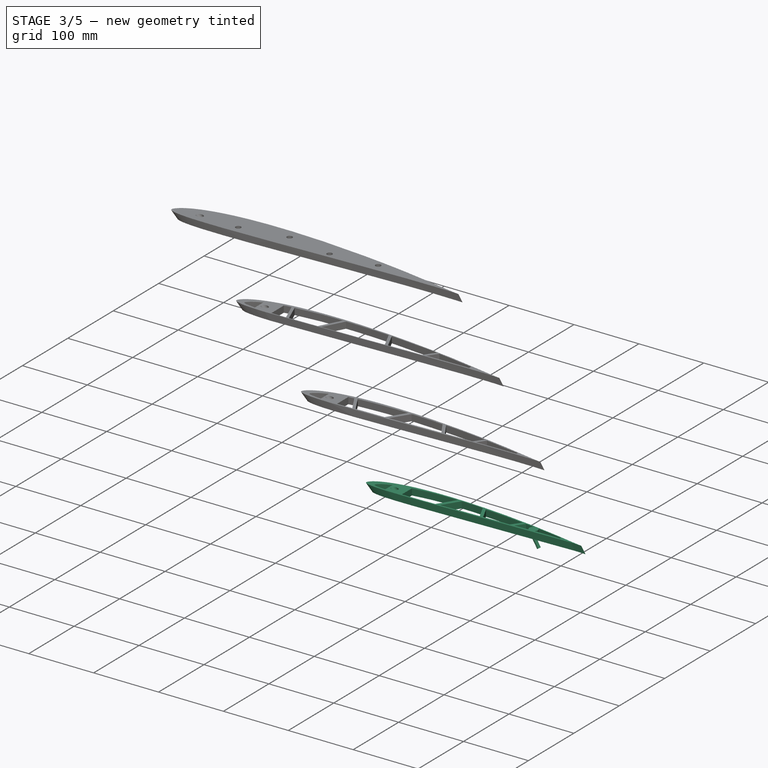
[diagram: stage 3 of 5 — iso view after this stage's code; geometry added in this stage tinted green]
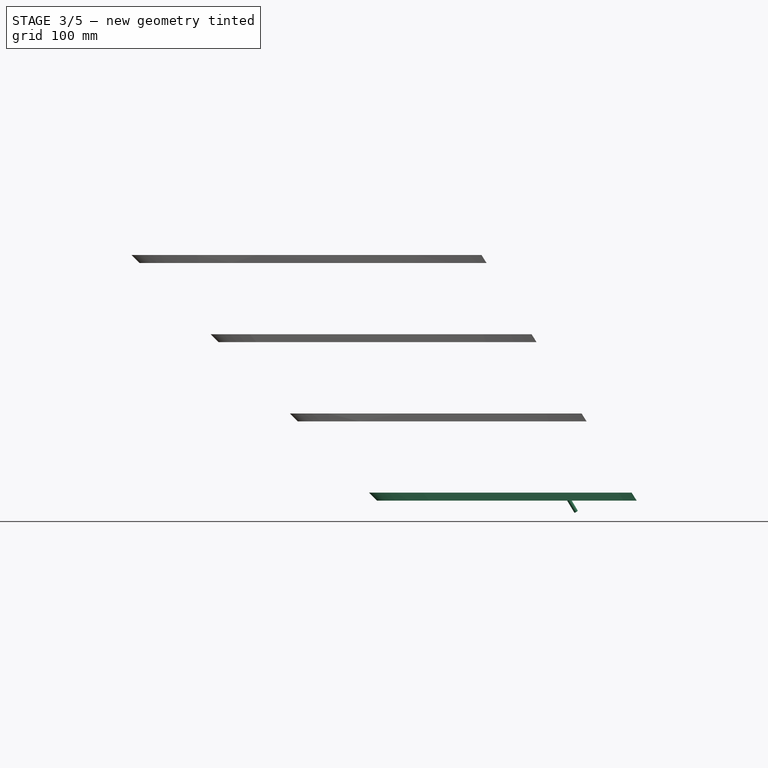
[diagram: stage 3 of 5 — front view after this stage's code; geometry added in this stage tinted green]
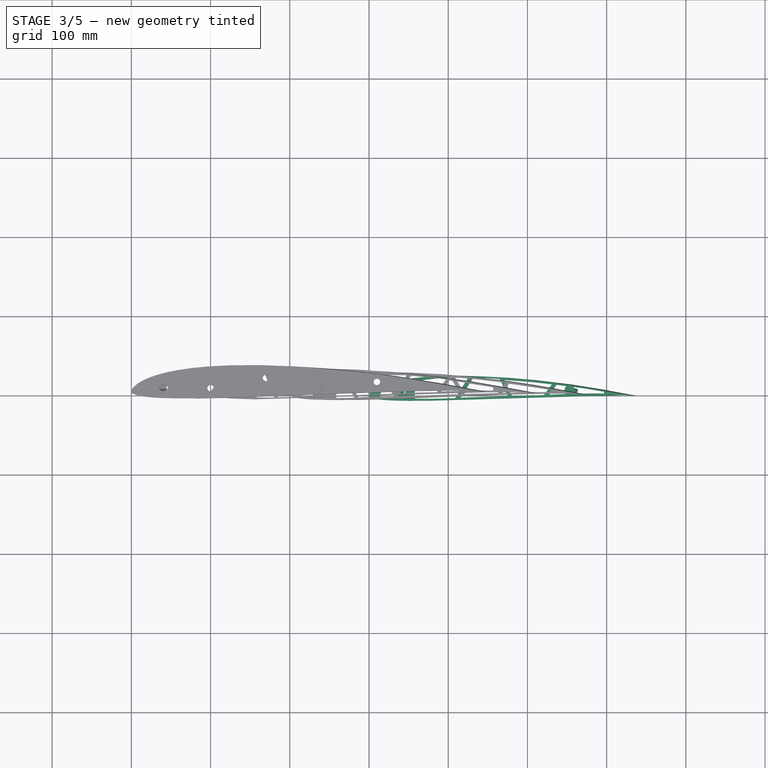
[diagram: stage 3 of 5 — top view after this stage's code; geometry added in this stage tinted green]
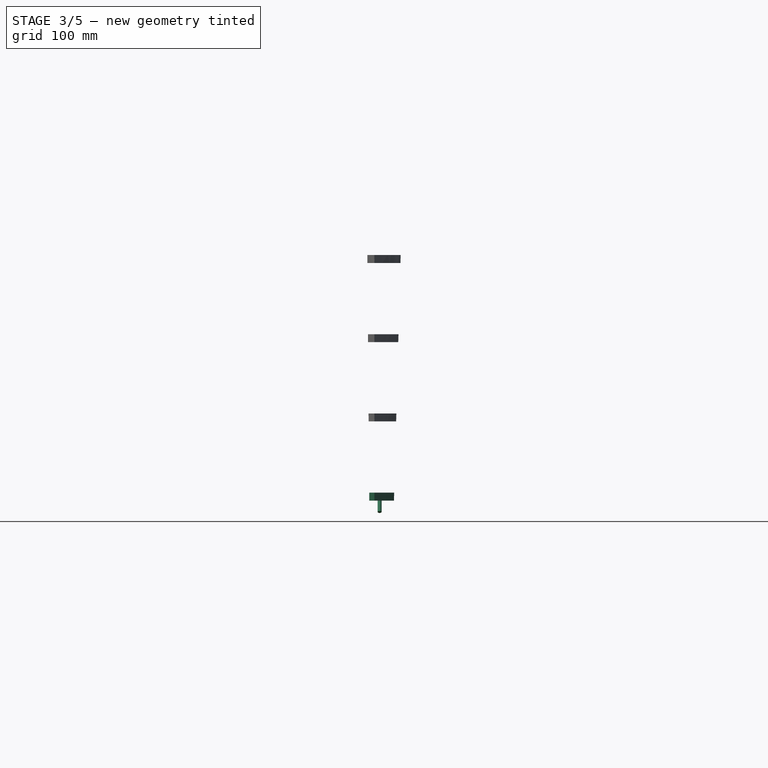
[diagram: stage 3 of 5 — right view after this stage's code; geometry added in this stage tinted green]
FEATURE [Sketcher::SketchObject] Sketch043
  ArcFitTolerance = 1e-06
  FullyConstrained = false
  MakeInternals = false
  Placement = pos=(600,0,-600) rot=(0,0,1;0rad)
  sketch-geometry (123):
    g0: BSplineCurve PolesCount=61 KnotsCount=61 Degree=3 IsPeriodic=1
    g1-g61: Circle [constr] x61 (B-spline internal-alignment scaffolding for g0; pole/knot coordinates omitted)
    g62-g122: GeomPoint [constr] x61 (B-spline internal-alignment scaffolding for g0; pole/knot coordinates omitted)
  constraints (123):
    c: InternalAlignment(g1,g0)
    c: Weight(g1) = 1
    c: InternalAlignment(g2,g0)
    c: Equal(g2,g1)
    c: InternalAlignment(g3,g0)
    c: Equal(g3,g1)
    c: InternalAlignment(g4,g0)
    c: Equal(g4,g1)
    c: InternalAlignment(g5,g0)
    c: Equal(g5,g1)
    c: InternalAlignment(g6,g0)
    c: Equal(g6,g1)
    c: InternalAlignment(g7,g0)
    c: Equal(g7,g1)
    c: InternalAlignment(g8,g0)
    c: Equal(g8,g1)
    c: InternalAlignment(g9,g0)
    c: Equal(g9,g1)
    c: InternalAlignment(g10,g0)
    c: Equal(g10,g1)
    c: InternalAlignment(g11,g0)
    c: Equal(g11,g1)
    c: InternalAlignment(g12,g0)
    c: Equal(g12,g1)
    c: InternalAlignment(g13,g0)
    c: Equal(g13,g1)
    c: InternalAlignment(g14,g0)
    c: Equal(g14,g1)
    c: InternalAlignment(g15,g0)
    c: Equal(g15,g1)
    c: InternalAlignment(g16,g0)
    c: Equal(g16,g1)
    c: InternalAlignment(g17,g0)
    c: Equal(g17,g1)
    c: InternalAlignment(g18,g0)
    c: Equal(g18,g1)
    c: InternalAlignment(g19,g0)
    c: Equal(g19,g1)
    c: InternalAlignment(g20,g0)
    c: Equal(g20,g1)
    c: InternalAlignment(g21,g0)
    c: Equal(g21,g1)
    c: InternalAlignment(g22,g0)
    c: Equal(g22,g1)
    c: InternalAlignment(g23,g0)
    c: Equal(g23,g1)
    c: InternalAlignment(g24,g0)
    c: Equal(g24,g1)
    c: InternalAlignment(g25,g0)
    c: Equal(g25,g1)
    c: InternalAlignment(g26,g0)
    c: Equal(g26,g1)
    c: InternalAlignment(g27,g0)
    c: Equal(g27,g1)
    c: InternalAlignment(g28,g0)
    c: Equal(g28,g1)
    c: InternalAlignment(g29,g0)
    c: Equal(g29,g1)
    c: InternalAlignment(g30,g0)
    c: Equal(g30,g1)
    c: InternalAlignment(g31,g0)
    c: Equal(g31,g1)
    c: InternalAlignment(g32,g0)
    c: Equal(g32,g1)
    c: InternalAlignment(g33,g0)
    c: Equal(g33,g1)
    c: InternalAlignment(g34,g0)
    c: Equal(g34,g1)
    c: InternalAlignment(g35,g0)
    c: Equal(g35,g1)
    c: InternalAlignment(g36,g0)
    c: Equal(g36,g1)
    c: InternalAlignment(g37,g0)
    c: Equal(g37,g1)
    c: InternalAlignment(g38,g0)
    c: Equal(g38,g1)
    c: InternalAlignment(g39,g0)
    c: Equal(g39,g1)
    c: InternalAlignment(g40,g0)
    c: Equal(g40,g1)
    c: InternalAlignment(g41,g0)
    c: Equal(g41,g1)
    c: InternalAlignment(g42,g0)
    c: Equal(g42,g1)
    c: InternalAlignment(g43,g0)
    c: Equal(g43,g1)
    c: InternalAlignment(g44,g0)
    c: Equal(g44,g1)
    c: InternalAlignment(g45,g0)
    c: Equal(g45,g1)
    c: InternalAlignment(g46,g0)
    c: Equal(g46,g1)
    c: InternalAlignment(g47,g0)
    c: Equal(g47,g1)
    c: InternalAlignment(g48,g0)
    c: Equal(g48,g1)
    c: InternalAlignment(g49,g0)
    c: Equal(g49,g1)
    c: InternalAlignment(g50,g0)
    c: Equal(g50,g1)
    c: InternalAlignment(g51,g0)
    c: Equal(g51,g1)
    c: InternalAlignment(g52,g0)
    c: Equal(g52,g1)
    c: InternalAlignment(g53,g0)
    c: Equal(g53,g1)
    c: InternalAlignment(g54,g0)
    c: Equal(g54,g1)
    c: InternalAlignment(g55,g0)
    c: Equal(g55,g1)
    c: InternalAlignment(g56,g0)
    c: Equal(g56,g1)
    c: InternalAlignment(g57,g0)
    c: Equal(g57,g1)
    c: InternalAlignment(g58,g0)
    c: Equal(g58,g1)
    c: InternalAlignment(g59,g0)
    c: Equal(g59,g1)
    c: InternalAlignment(g60,g0)
    c: Equal(g60,g1)
    c: InternalAlignment(g61,g0)
    c: Equal(g61,g1)
    c: InternalAlignment(g62-g122 -> g0) x61
FEATURE [Sketcher::SketchObject] Sketch044
  ArcFitTolerance = 1e-06
  FullyConstrained = false
  MakeInternals = false
  sketch-geometry (123):
    g0: BSplineCurve PolesCount=61 KnotsCount=61 Degree=3 IsPeriodic=1
    g1-g61: Circle [constr] x61 (B-spline internal-alignment scaffolding for g0; pole/knot coordinates omitted)
    g62-g122: GeomPoint [constr] x61 (B-spline internal-alignment scaffolding for g0; pole/knot coordinates omitted)
  constraints (123):
    c: InternalAlignment(g1,g0)
    c: Weight(g1) = 1
    c: InternalAlignment(g2,g0)
    c: Equal(g2,g1)
    c: InternalAlignment(g3,g0)
    c: Equal(g3,g1)
    c: InternalAlignment(g4,g0)
    c: Equal(g4,g1)
    c: InternalAlignment(g5,g0)
    c: Equal(g5,g1)
    c: InternalAlignment(g6,g0)
    c: Equal(g6,g1)
    c: InternalAlignment(g7,g0)
    c: Equal(g7,g1)
    c: InternalAlignment(g8,g0)
    c: Equal(g8,g1)
    c: InternalAlignment(g9,g0)
    c: Equal(g9,g1)
    c: InternalAlignment(g10,g0)
    c: Equal(g10,g1)
    c: InternalAlignment(g11,g0)
    c: Equal(g11,g1)
    c: InternalAlignment(g12,g0)
    c: Equal(g12,g1)
    c: InternalAlignment(g13,g0)
    c: Equal(g13,g1)
    c: InternalAlignment(g14,g0)
    c: Equal(g14,g1)
    c: InternalAlignment(g15,g0)
    c: Equal(g15,g1)
    c: InternalAlignment(g16,g0)
    c: Equal(g16,g1)
    c: InternalAlignment(g17,g0)
    c: Equal(g17,g1)
    c: InternalAlignment(g18,g0)
    c: Equal(g18,g1)
    c: InternalAlignment(g19,g0)
    c: Equal(g19,g1)
    c: InternalAlignment(g20,g0)
    c: Equal(g20,g1)
    c: InternalAlignment(g21,g0)
    c: Equal(g21,g1)
    c: InternalAlignment(g22,g0)
    c: Equal(g22,g1)
    c: InternalAlignment(g23,g0)
    c: Equal(g23,g1)
    c: InternalAlignment(g24,g0)
    c: Equal(g24,g1)
    c: InternalAlignment(g25,g0)
    c: Equal(g25,g1)
    c: InternalAlignment(g26,g0)
    c: Equal(g26,g1)
    c: InternalAlignment(g27,g0)
    c: Equal(g27,g1)
    c: InternalAlignment(g28,g0)
    c: Equal(g28,g1)
    c: InternalAlignment(g29,g0)
    c: Equal(g29,g1)
    c: InternalAlignment(g30,g0)
    c: Equal(g30,g1)
    c: InternalAlignment(g31,g0)
    c: Equal(g31,g1)
    c: InternalAlignment(g32,g0)
    c: Equal(g32,g1)
    c: InternalAlignment(g33,g0)
    c: Equal(g33,g1)
    c: InternalAlignment(g34,g0)
    c: Equal(g34,g1)
    c: InternalAlignment(g35,g0)
    c: Equal(g35,g1)
    c: InternalAlignment(g36,g0)
    c: Equal(g36,g1)
    c: InternalAlignment(g37,g0)
    c: Equal(g37,g1)
    c: InternalAlignment(g38,g0)
    c: Equal(g38,g1)
    c: InternalAlignment(g39,g0)
    c: Equal(g39,g1)
    c: InternalAlignment(g40,g0)
    c: Equal(g40,g1)
    c: InternalAlignment(g41,g0)
    c: Equal(g41,g1)
    c: InternalAlignment(g42,g0)
    c: Equal(g42,g1)
    c: InternalAlignment(g43,g0)
    c: Equal(g43,g1)
    c: InternalAlignment(g44,g0)
    c: Equal(g44,g1)
    c: InternalAlignment(g45,g0)
    c: Equal(g45,g1)
    c: InternalAlignment(g46,g0)
    c: Equal(g46,g1)
    c: InternalAlignment(g47,g0)
    c: Equal(g47,g1)
    c: InternalAlignment(g48,g0)
    c: Equal(g48,g1)
    c: InternalAlignment(g49,g0)
    c: Equal(g49,g1)
    c: InternalAlignment(g50,g0)
    c: Equal(g50,g1)
    c: InternalAlignment(g51,g0)
    c: Equal(g51,g1)
    c: InternalAlignment(g52,g0)
    c: Equal(g52,g1)
    c: InternalAlignment(g53,g0)
    c: Equal(g53,g1)
    c: InternalAlignment(g54,g0)
    c: Equal(g54,g1)
    c: InternalAlignment(g55,g0)
    c: Equal(g55,g1)
    c: InternalAlignment(g56,g0)
    c: Equal(g56,g1)
    c: InternalAlignment(g57,g0)
    c: Equal(g57,g1)
    c: InternalAlignment(g58,g0)
    c: Equal(g58,g1)
    c: InternalAlignment(g59,g0)
    c: Equal(g59,g1)
    c: InternalAlignment(g60,g0)
    c: Equal(g60,g1)
    c: InternalAlignment(g61,g0)
    c: Equal(g61,g1)
    c: InternalAlignment(g62-g122 -> g0) x61
FEATURE [PartDesign::AdditiveLoft] AdditiveLoft007
  Closed = false
  Profile = -> Sketch044
  Refine = true
  Ruled = false
  Sections = -> [Sketch043]
  Suppressed = false
FEATURE [PartDesign::Plane] DatumPlane009
  AttachmentOffset = pos=(0,0,0) rot=(0,-1,0;0.785398rad)
  AttachmentSupport = -> [AdditiveLoft007]
  Length = 743.192
  MapMode = 5
  Placement = pos=(0,0,0) rot=(0,-1,0;0.785398rad)
  ResizeMode = 0
  Width = 87.5666
FEATURE [Sketcher::SketchObject] Sketch045
  ArcFitTolerance = 1e-06
  AttachmentSupport = -> [DatumPlane009]
  FullyConstrained = false
  MakeInternals = false
  MapMode = 5
  Placement = pos=(0,0,0) rot=(0,-1,0;0.785398rad)
  sketch-geometry (1):
    g0: Circle CenterX=28.3343 CenterY=4.75298 CenterZ=0 NormalX=0 NormalY=0 NormalZ=1 AngleXU=0 Radius=4.1
  constraints (1):
    c: Diameter(g0) = 8.2
FEATURE [PartDesign::Pocket] Pocket024
  BaseFeature = -> AdditiveLoft007
  Direction = (0.707107,0,-0.707107)
  Length = 1000
  Length2 = 5
  Profile = -> Sketch045
  ReferenceAxis = -> Sketch045 [N_Axis]
  Refine = true
  Suppressed = false
  Type = 0
FEATURE [Sketcher::SketchObject] Sketch046
  ArcFitTolerance = 1e-06
  AttachmentSupport = -> [Pocket024]
  FullyConstrained = false
  MakeInternals = false
  MapMode = 5
  sketch-geometry (4):
    g0: LineSegment StartX=-344.991 StartY=348.339 StartZ=0 EndX=-344.991 EndY=-308.863 EndZ=0
    g1: LineSegment StartX=-344.991 StartY=-308.863 StartZ=0 EndX=993.672 EndY=-308.863 EndZ=0
    g2: LineSegment StartX=993.672 StartY=-308.863 StartZ=0 EndX=993.672 EndY=348.339 EndZ=0
    g3: LineSegment StartX=993.672 StartY=348.339 StartZ=0 EndX=-344.991 EndY=348.339 EndZ=0
  constraints (8):
    c: Coincident(g0,g1)
    c: Coincident(g1,g2)
    c: Coincident(g2,g3)
    c: Coincident(g3,g0)
    c: Vertical(g0)
    c: Vertical(g2)
    c: Horizontal(g1)
    c: Horizontal(g3)
FEATURE [PartDesign::Pocket] Pocket025
  BaseFeature = -> Pocket024
  Direction = (0,0,-1)
  Length = 300
  Length2 = 5
  Profile = -> Sketch046
  ReferenceAxis = -> Sketch046 [N_Axis]
  Refine = true
  Suppressed = false
  Type = 0
FEATURE [Sketcher::SketchObject] Sketch047
  ArcFitTolerance = 1e-06
  AttachmentSupport = -> [Pocket025]
  FullyConstrained = false
  MakeInternals = false
  MapMode = 5
  Placement = pos=(0,0,-600) rot=(1,0,0;3.14159rad)
  sketch-geometry (4):
    g0: LineSegment StartX=196.967 StartY=129.212 StartZ=0 EndX=196.967 EndY=-99.542 EndZ=0
    g1: LineSegment StartX=196.967 StartY=-99.542 StartZ=0 EndX=981.265 EndY=-99.542 EndZ=0
    g2: LineSegment StartX=981.265 StartY=-99.542 StartZ=0 EndX=981.265 EndY=129.212 EndZ=0
    g3: LineSegment StartX=981.265 StartY=129.212 StartZ=0 EndX=196.967 EndY=129.212 EndZ=0
  constraints (8):
    c: Coincident(g0,g1)
    c: Coincident(g1,g2)
    c: Coincident(g2,g3)
    c: Coincident(g3,g0)
    c: Vertical(g0)
    c: Vertical(g2)
    c: Horizontal(g1)
    c: Horizontal(g3)
FEATURE [PartDesign::Pocket] Pocket026
  BaseFeature = -> Pocket025
  Direction = (0,0,1)
  Length = 290
  Length2 = 5
  Profile = -> Sketch047
  ReferenceAxis = -> Sketch047 [N_Axis]
  Refine = true
  Suppressed = false
  Type = 0
FEATURE [Sketcher::SketchObject] Sketch048
  ArcFitTolerance = 1e-06
  AttachmentSupport = -> [Pocket026]
  FullyConstrained = false
  MakeInternals = false
  MapMode = 5
  Placement = pos=(0,0,-310) rot=(1,0,0;3.14159rad)
  sketch-geometry (56):
    g0: LineSegment StartX=332.032 StartY=3.92783 StartZ=0 EndX=332.032 EndY=-12.0562 EndZ=0
    g1: LineSegment StartX=332.032 StartY=-12.0562 StartZ=0 EndX=330.396 EndY=-11.418 EndZ=0
    g2: LineSegment StartX=330.396 StartY=-11.418 StartZ=0 EndX=325.235 EndY=-9.31772 EndZ=0
    g3: LineSegment StartX=325.235 StartY=-9.31772 StartZ=0 EndX=321.545 EndY=-7.54348 EndZ=0
    g4: LineSegment StartX=321.545 StartY=-7.54348 StartZ=0 EndX=318.351 EndY=-5.6273 EndZ=0
    g5: LineSegment StartX=318.351 StartY=-5.6273 StartZ=0 EndX=315.441 EndY=-3.71112 EndZ=0
    g6: LineSegment StartX=315.441 StartY=-3.71112 StartZ=0 EndX=314.022 EndY=-2.22077 EndZ=0
    g7: LineSegment StartX=314.022 StartY=-2.22077 StartZ=0 EndX=313.099 EndY=-0.659436 EndZ=0
    g8: LineSegment StartX=313.099 StartY=-0.659436 StartZ=0 EndX=312.957 EndY=0.476075 EndZ=0
    g9: LineSegment StartX=312.957 StartY=0.476075 StartZ=0 EndX=313.596 EndY=0.901893 EndZ=0
    g10: LineSegment StartX=313.596 StartY=0.901893 StartZ=0 EndX=315.654 EndY=1.75353 EndZ=0
    g11: LineSegment StartX=315.654 StartY=1.75353 StartZ=0 EndX=318.777 EndY=2.60516 EndZ=0
    g12: LineSegment StartX=318.777 StartY=2.60516 StartZ=0 EndX=322.325 EndY=3.10195 EndZ=0
    g13: LineSegment StartX=322.325 StartY=3.10195 StartZ=0 EndX=327.435 EndY=3.52776 EndZ=0
    g14: LineSegment StartX=327.435 StartY=3.52776 StartZ=0 EndX=332.032 EndY=3.92783 EndZ=0
    g15: LineSegment StartX=596.656 StartY=-2.47566 StartZ=0 EndX=596.656 EndY=-4.90277 EndZ=0
    g16: LineSegment StartX=596.656 StartY=-4.90277 StartZ=0 EndX=568.724 EndY=-9.51106 EndZ=0
    g17: LineSegment StartX=568.724 StartY=-9.51106 StartZ=0 EndX=547.062 EndY=-12.2805 EndZ=0
    g18: LineSegment StartX=547.062 StartY=-12.2805 StartZ=0 EndX=536.786 EndY=-13.5531 EndZ=0
    g19: LineSegment StartX=536.786 StartY=-13.5531 StartZ=0 EndX=527.534 EndY=-0.989378 EndZ=0
    g20: LineSegment StartX=527.534 StartY=-0.989378 StartZ=0 EndX=547.951 EndY=-1.76517 EndZ=0
    g21: LineSegment StartX=547.951 StartY=-1.76517 StartZ=0 EndX=582.087 EndY=-2.61681 EndZ=0
    g22: LineSegment StartX=582.087 StartY=-2.61681 StartZ=0 EndX=596.656 EndY=-2.47566 EndZ=0
    g23: LineSegment StartX=531.003 StartY=-14.2202 StartZ=0 EndX=520.9 EndY=-0.500741 EndZ=0
    g24: LineSegment StartX=531.003 StartY=-14.2202 StartZ=0 EndX=505.941 EndY=-17.0028 EndZ=0
    g25: LineSegment StartX=505.941 StartY=-17.0028 StartZ=0 EndX=482.916 EndY=-18.8581 EndZ=0
    g26: LineSegment StartX=482.916 StartY=-18.8581 StartZ=0 EndX=470.676 EndY=-19.744 EndZ=0
    g27: LineSegment StartX=470.676 StartY=-19.744 StartZ=0 EndX=480.564 EndY=0.541013 EndZ=0
    g28: LineSegment StartX=480.564 StartY=0.541013 StartZ=0 EndX=493.641 EndY=0.022556 EndZ=0
    g29: LineSegment StartX=493.641 StartY=0.022556 StartZ=0 EndX=506.533 EndY=-0.26288 EndZ=0
    g30: LineSegment StartX=506.533 StartY=-0.26288 StartZ=0 EndX=515.762 EndY=-0.310453 EndZ=0
    g31: LineSegment StartX=515.762 StartY=-0.310453 StartZ=0 EndX=520.9 EndY=-0.500741 EndZ=0
    g32: LineSegment StartX=475.564 StartY=0.974291 StartZ=0 EndX=464.963 EndY=-20.7733 EndZ=0
    g33: LineSegment StartX=475.564 StartY=0.974291 StartZ=0 EndX=453.041 EndY=1.52388 EndZ=0
    g34: LineSegment StartX=453.041 StartY=1.52388 StartZ=0 EndX=427.59 EndY=2.38018 EndZ=0
    g35: LineSegment StartX=427.59 StartY=2.38018 StartZ=0 EndX=415.511 EndY=2.89765 EndZ=0
    g36: LineSegment StartX=415.511 StartY=2.89765 StartZ=0 EndX=431.488 EndY=-22.3382 EndZ=0
    g37: LineSegment StartX=431.488 StartY=-22.3382 StartZ=0 EndX=441.844 EndY=-22.1764 EndZ=0
    g38: LineSegment StartX=441.844 StartY=-22.1764 StartZ=0 EndX=450.773 EndY=-21.9213 EndZ=0
    g39: LineSegment StartX=450.773 StartY=-21.9213 StartZ=0 EndX=460.18 EndY=-21.2835 EndZ=0
    g40: LineSegment StartX=460.18 StartY=-21.2835 StartZ=0 EndX=464.963 EndY=-20.7733 EndZ=0
    g41: LineSegment StartX=425.327 StartY=-22.6169 StartZ=0 EndX=408.845 EndY=3.41656 EndZ=0
    g42: LineSegment StartX=408.845 StartY=3.41656 StartZ=0 EndX=398.718 EndY=3.65025 EndZ=0
    g43: LineSegment StartX=398.718 StartY=3.65025 StartZ=0 EndX=388.942 EndY=4.00079 EndZ=0
    g44: LineSegment StartX=388.942 StartY=4.00079 StartZ=0 EndX=379.162 EndY=4.1568 EndZ=0
    g45: LineSegment StartX=379.162 StartY=4.1568 StartZ=0 EndX=371.688 EndY=4.23449 EndZ=0
    g46: LineSegment StartX=371.688 StartY=4.23449 StartZ=0 EndX=357.783 EndY=4.06055 EndZ=0
    g47: LineSegment StartX=357.783 StartY=4.06055 StartZ=0 EndX=357.783 EndY=-18.082 EndZ=0
    g48: LineSegment StartX=357.783 StartY=-18.082 StartZ=0 EndX=365.437 EndY=-19.1346 EndZ=0
    g49: LineSegment StartX=365.437 StartY=-19.1346 StartZ=0 EndX=373.765 EndY=-20.2573 EndZ=0
    g50: LineSegment StartX=373.765 StartY=-20.2573 StartZ=0 EndX=383.403 EndY=-21.3544 EndZ=0
    g51: LineSegment StartX=383.403 StartY=-21.3544 StartZ=0 EndX=390.321 EndY=-21.8765 EndZ=0
    g52: LineSegment StartX=390.321 StartY=-21.8765 StartZ=0 EndX=400.065 EndY=-22.3975 EndZ=0
    g53: LineSegment StartX=400.065 StartY=-22.3975 StartZ=0 EndX=410.412 EndY=-22.6053 EndZ=0
    g54: LineSegment StartX=410.412 StartY=-22.6053 StartZ=0 EndX=418.714 EndY=-22.5792 EndZ=0
    g55: LineSegment StartX=418.714 StartY=-22.5792 StartZ=0 EndX=425.327 EndY=-22.6169 EndZ=0
  constraints (62):
    c: Vertical(g0)
    c: Coincident(g0,g1)
    c: Coincident(g1,g2)
    c: Coincident(g2,g3)
    c: Coincident(g3,g4)
    c: Coincident(g4,g5)
    c: Coincident(g5,g6)
    c: Coincident(g6,g7)
    c: Coincident(g7,g8)
    c: Coincident(g8,g9)
    c: Coincident(g9,g10)
    c: Coincident(g10,g11)
    c: Coincident(g11,g12)
    c: Coincident(g12,g13)
    c: Coincident(g13,g14)
    c: Coincident(g14,g0)
    c: Vertical(g15)
    c: Coincident(g15,g16)
    c: Coincident(g16,g17)
    c: Coincident(g17,g18)
    c: Coincident(g18,g19)
    c: Coincident(g19,g20)
    c: Coincident(g20,g21)
    c: Coincident(g21,g22)
    c: Coincident(g22,g15)
    c: Parallel(g19,g23)
    c: Coincident(g23,g24)
    c: Coincident(g24,g25)
    c: Coincident(g25,g26)
    c: Coincident(g26,g27)
    c: Coincident(g27,g28)
    c: Coincident(g28,g29)
    c: Coincident(g29,g30)
    c: Coincident(g30,g31)
    c: Coincident(g31,g23)
    c: Parallel(g27,g32)
    c: Coincident(g32,g33)
    c: Coincident(g33,g34)
    c: Coincident(g34,g35)
    c: Coincident(g35,g36)
    c: Coincident(g36,g37)
    c: Coincident(g37,g38)
    c: Coincident(g38,g39)
    c: Coincident(g39,g40)
    c: Coincident(g40,g32)
    c: Coincident(g41,g42)
    c: Coincident(g42,g43)
    c: Coincident(g43,g44)
    c: Coincident(g44,g45)
    c: Coincident(g45,g46)
    c: Coincident(g46,g47)
    c: Vertical(g47)
    c: Coincident(g47,g48)
    c: Coincident(g48,g49)
    c: Coincident(g49,g50)
    c: Coincident(g50,g51)
    c: Coincident(g51,g52)
    c: Coincident(g52,g53)
    c: Coincident(g53,g54)
    c: Coincident(g54,g55)
    c: Coincident(g55,g41)
    c: Parallel(g36,g41)
FEATURE [PartDesign::Pocket] Pocket027
  BaseFeature = -> Pocket026
  Direction = (0,0,1)
  Length = 15
  Length2 = 5
  Profile = -> Sketch048
  ReferenceAxis = -> Sketch048 [N_Axis]
  Refine = true
  Suppressed = false
  Type = 0
FEATURE [Sketcher::SketchObject] Sketch049
  ArcFitTolerance = 1e-06
  AttachmentSupport = -> [Pocket027]
  FullyConstrained = false
  MakeInternals = false
  MapMode = 5
  Placement = pos=(0,0,-310) rot=(1,0,0;3.14159rad)
  sketch-geometry (1):
    g0: Circle CenterX=553.316 CenterY=-6.6 CenterZ=0 NormalX=0 NormalY=0 NormalZ=1 AngleXU=0 Radius=6.5
  constraints (2):
    c: Diameter(g0) = 13
    c: DistanceY(g0,g-1) = 6.6
FEATURE [PartDesign::Pad] Pad005
  BaseFeature = -> Pocket027
  Direction = (0,0,-1)
  Length = 10
  Length2 = 10
  Profile = -> Sketch049
  ReferenceAxis = -> Sketch049 [N_Axis]
  Refine = true
  Reversed = true
  Suppressed = false
  Type = 0
FEATURE [PartDesign::Plane] DatumPlane010
  AttachmentOffset = pos=(0,0,328) rot=(0,1,0;0.54042rad)
  AttachmentSupport = -> [Pad005]
  Length = 930.255
  MapMode = 5
  Placement = pos=(0,0,-638) rot=(0.963715,0,0.266934;3.14159rad)
  ResizeMode = 0
  Width = 92.1452
FEATURE [Sketcher::SketchObject] Sketch050
  ArcFitTolerance = 1e-06
  AttachmentSupport = -> [DatumPlane010]
  FullyConstrained = false
  MakeInternals = false
  MapMode = 5
  Placement = pos=(0,0,-638) rot=(0.963715,0,0.266934;3.14159rad)
  sketch-geometry (1):
    g0: Circle CenterX=642.946 CenterY=-6.5 CenterZ=0 NormalX=0 NormalY=0 NormalZ=1 AngleXU=0 Radius=2.5
  constraints (2):
    c: Diameter(g0) = 5
    c: DistanceY(g0,g-1) = 6.5
FEATURE [PartDesign::Pad] Pad006
  BaseFeature = -> Pad005
  Direction = (0.514496,0,-0.857493)
  Length = 20
  Length2 = 10
  Profile = -> Sketch050
  ReferenceAxis = -> Sketch050 [N_Axis]
  Refine = true
  Suppressed = false
  Type = 0
FEATURE [Sketcher::SketchObject] Sketch054
  ArcFitTolerance = 1e-06
  FullyConstrained = false
  MakeInternals = false
  Placement = pos=(600,0,-600) rot=(0,0,1;0rad)
  sketch-geometry (123):
    g0: BSplineCurve PolesCount=61 KnotsCount=61 Degree=3 IsPeriodic=1
    g1-g61: Circle [constr] x61 (B-spline internal-alignment scaffolding for g0; pole/knot coordinates omitted)
    g62-g122: GeomPoint [constr] x61 (B-spline internal-alignment scaffolding for g0; pole/knot coordinates omitted)
  constraints (123):
    c: InternalAlignment(g1,g0)
    c: Weight(g1) = 1
    c: InternalAlignment(g2,g0)
    c: Equal(g2,g1)
    c: InternalAlignment(g3,g0)
    c: Equal(g3,g1)
    c: InternalAlignment(g4,g0)
    c: Equal(g4,g1)
    c: InternalAlignment(g5,g0)
    c: Equal(g5,g1)
    c: InternalAlignment(g6,g0)
    c: Equal(g6,g1)
    c: InternalAlignment(g7,g0)
    c: Equal(g7,g1)
    c: InternalAlignment(g8,g0)
    c: Equal(g8,g1)
    c: InternalAlignment(g9,g0)
    c: Equal(g9,g1)
    c: InternalAlignment(g10,g0)
    c: Equal(g10,g1)
    c: InternalAlignment(g11,g0)
    c: Equal(g11,g1)
    c: InternalAlignment(g12,g0)
    c: Equal(g12,g1)
    c: InternalAlignment(g13,g0)
    c: Equal(g13,g1)
    c: InternalAlignment(g14,g0)
    c: Equal(g14,g1)
    c: InternalAlignment(g15,g0)
    c: Equal(g15,g1)
    c: InternalAlignment(g16,g0)
    c: Equal(g16,g1)
    c: InternalAlignment(g17,g0)
    c: Equal(g17,g1)
    c: InternalAlignment(g18,g0)
    c: Equal(g18,g1)
    c: InternalAlignment(g19,g0)
    c: Equal(g19,g1)
    c: InternalAlignment(g20,g0)
    c: Equal(g20,g1)
    c: InternalAlignment(g21,g0)
    c: Equal(g21,g1)
    c: InternalAlignment(g22,g0)
    c: Equal(g22,g1)
    c: InternalAlignment(g23,g0)
    c: Equal(g23,g1)
    c: InternalAlignment(g24,g0)
    c: Equal(g24,g1)
    c: InternalAlignment(g25,g0)
    c: Equal(g25,g1)
    c: InternalAlignment(g26,g0)
    c: Equal(g26,g1)
    c: InternalAlignment(g27,g0)
    c: Equal(g27,g1)
    c: InternalAlignment(g28,g0)
    c: Equal(g28,g1)
    c: InternalAlignment(g29,g0)
    c: Equal(g29,g1)
    c: InternalAlignment(g30,g0)
    c: Equal(g30,g1)
    c: InternalAlignment(g31,g0)
    c: Equal(g31,g1)
    c: InternalAlignment(g32,g0)
    c: Equal(g32,g1)
    c: InternalAlignment(g33,g0)
    c: Equal(g33,g1)
    c: InternalAlignment(g34,g0)
    c: Equal(g34,g1)
    c: InternalAlignment(g35,g0)
    c: Equal(g35,g1)
    c: InternalAlignment(g36,g0)
    c: Equal(g36,g1)
    c: InternalAlignment(g37,g0)
    c: Equal(g37,g1)
    c: InternalAlignment(g38,g0)
    c: Equal(g38,g1)
    c: InternalAlignment(g39,g0)
    c: Equal(g39,g1)
    c: InternalAlignment(g40,g0)
    c: Equal(g40,g1)
    c: InternalAlignment(g41,g0)
    c: Equal(g41,g1)
    c: InternalAlignment(g42,g0)
    c: Equal(g42,g1)
    c: InternalAlignment(g43,g0)
    c: Equal(g43,g1)
    c: InternalAlignment(g44,g0)
    c: Equal(g44,g1)
    c: InternalAlignment(g45,g0)
    c: Equal(g45,g1)
    c: InternalAlignment(g46,g0)
    c: Equal(g46,g1)
    c: InternalAlignment(g47,g0)
    c: Equal(g47,g1)
    c: InternalAlignment(g48,g0)
    c: Equal(g48,g1)
    c: InternalAlignment(g49,g0)
    c: Equal(g49,g1)
    c: InternalAlignment(g50,g0)
    c: Equal(g50,g1)
    c: InternalAlignment(g51,g0)
    c: Equal(g51,g1)
    c: InternalAlignment(g52,g0)
    c: Equal(g52,g1)
    c: InternalAlignment(g53,g0)
    c: Equal(g53,g1)
    c: InternalAlignment(g54,g0)
    c: Equal(g54,g1)
    c: InternalAlignment(g55,g0)
    c: Equal(g55,g1)
    c: InternalAlignment(g56,g0)
    c: Equal(g56,g1)
    c: InternalAlignment(g57,g0)
    c: Equal(g57,g1)
    c: InternalAlignment(g58,g0)
    c: Equal(g58,g1)
    c: InternalAlignment(g59,g0)
    c: Equal(g59,g1)
    c: InternalAlignment(g60,g0)
    c: Equal(g60,g1)
    c: InternalAlignment(g61,g0)
    c: Equal(g61,g1)
    c: InternalAlignment(g62-g122 -> g0) x61
FEATURE [Sketcher::SketchObject] Sketch055
  ArcFitTolerance = 1e-06
  FullyConstrained = false
  MakeInternals = false
  sketch-geometry (123):
    g0: BSplineCurve PolesCount=61 KnotsCount=61 Degree=3 IsPeriodic=1
    g1-g61: Circle [constr] x61 (B-spline internal-alignment scaffolding for g0; pole/knot coordinates omitted)
    g62-g122: GeomPoint [constr] x61 (B-spline internal-alignment scaffolding for g0; pole/knot coordinates omitted)
  constraints (123):
    c: InternalAlignment(g1,g0)
    c: Weight(g1) = 1
    c: InternalAlignment(g2,g0)
    c: Equal(g2,g1)
    c: InternalAlignment(g3,g0)
    c: Equal(g3,g1)
    c: InternalAlignment(g4,g0)
    c: Equal(g4,g1)
    c: InternalAlignment(g5,g0)
    c: Equal(g5,g1)
    c: InternalAlignment(g6,g0)
    c: Equal(g6,g1)
    c: InternalAlignment(g7,g0)
    c: Equal(g7,g1)
    c: InternalAlignment(g8,g0)
    c: Equal(g8,g1)
    c: InternalAlignment(g9,g0)
    c: Equal(g9,g1)
    c: InternalAlignment(g10,g0)
    c: Equal(g10,g1)
    c: InternalAlignment(g11,g0)
    c: Equal(g11,g1)
    c: InternalAlignment(g12,g0)
    c: Equal(g12,g1)
    c: InternalAlignment(g13,g0)
    c: Equal(g13,g1)
    c: InternalAlignment(g14,g0)
    c: Equal(g14,g1)
    c: InternalAlignment(g15,g0)
    c: Equal(g15,g1)
    c: InternalAlignment(g16,g0)
    c: Equal(g16,g1)
    c: InternalAlignment(g17,g0)
    c: Equal(g17,g1)
    c: InternalAlignment(g18,g0)
    c: Equal(g18,g1)
    c: InternalAlignment(g19,g0)
    c: Equal(g19,g1)
    c: InternalAlignment(g20,g0)
    c: Equal(g20,g1)
    c: InternalAlignment(g21,g0)
    c: Equal(g21,g1)
    c: InternalAlignment(g22,g0)
    c: Equal(g22,g1)
    c: InternalAlignment(g23,g0)
    c: Equal(g23,g1)
    c: InternalAlignment(g24,g0)
    c: Equal(g24,g1)
    c: InternalAlignment(g25,g0)
    c: Equal(g25,g1)
    c: InternalAlignment(g26,g0)
    c: Equal(g26,g1)
    c: InternalAlignment(g27,g0)
    c: Equal(g27,g1)
    c: InternalAlignment(g28,g0)
    c: Equal(g28,g1)
    c: InternalAlignment(g29,g0)
    c: Equal(g29,g1)
    c: InternalAlignment(g30,g0)
    c: Equal(g30,g1)
    c: InternalAlignment(g31,g0)
    c: Equal(g31,g1)
    c: InternalAlignment(g32,g0)
    c: Equal(g32,g1)
    c: InternalAlignment(g33,g0)
    c: Equal(g33,g1)
    c: InternalAlignment(g34,g0)
    c: Equal(g34,g1)
    c: InternalAlignment(g35,g0)
    c: Equal(g35,g1)
    c: InternalAlignment(g36,g0)
    c: Equal(g36,g1)
    c: InternalAlignment(g37,g0)
    c: Equal(g37,g1)
    c: InternalAlignment(g38,g0)
    c: Equal(g38,g1)
    c: InternalAlignment(g39,g0)
    c: Equal(g39,g1)
    c: InternalAlignment(g40,g0)
    c: Equal(g40,g1)
    c: InternalAlignment(g41,g0)
    c: Equal(g41,g1)
    c: InternalAlignment(g42,g0)
    c: Equal(g42,g1)
    c: InternalAlignment(g43,g0)
    c: Equal(g43,g1)
    c: InternalAlignment(g44,g0)
    c: Equal(g44,g1)
    c: InternalAlignment(g45,g0)
    c: Equal(g45,g1)
    c: InternalAlignment(g46,g0)
    c: Equal(g46,g1)
    c: InternalAlignment(g47,g0)
    c: Equal(g47,g1)
    c: InternalAlignment(g48,g0)
    c: Equal(g48,g1)
    c: InternalAlignment(g49,g0)
    c: Equal(g49,g1)
    c: InternalAlignment(g50,g0)
    c: Equal(g50,g1)
    c: InternalAlignment(g51,g0)
    c: Equal(g51,g1)
    c: InternalAlignment(g52,g0)
    c: Equal(g52,g1)
    c: InternalAlignment(g53,g0)
    c: Equal(g53,g1)
    c: InternalAlignment(g54,g0)
    c: Equal(g54,g1)
    c: InternalAlignment(g55,g0)
    c: Equal(g55,g1)
    c: InternalAlignment(g56,g0)
    c: Equal(g56,g1)
    c: InternalAlignment(g57,g0)
    c: Equal(g57,g1)
    c: InternalAlignment(g58,g0)
    c: Equal(g58,g1)
    c: InternalAlignment(g59,g0)
    c: Equal(g59,g1)
    c: InternalAlignment(g60,g0)
    c: Equal(g60,g1)
    c: InternalAlignment(g61,g0)
    c: Equal(g61,g1)
    c: InternalAlignment(g62-g122 -> g0) x61
FEATURE [PartDesign::AdditiveLoft] AdditiveLoft008
  Closed = false
  Profile = -> Sketch055
  Refine = true
  Ruled = false
  Sections = -> [Sketch054]
  Suppressed = false
FEATURE [PartDesign::Plane] DatumPlane011
  AttachmentOffset = pos=(0,0,0) rot=(0,-1,0;0.785398rad)
  AttachmentSupport = -> [AdditiveLoft008]
  Length = 624.615
  MapMode = 5
  Placement = pos=(0,0,0) rot=(0,-1,0;0.785398rad)
  ResizeMode = 0
  Width = 84.3586
FEATURE [Sketcher::SketchObject] Sketch056
  ArcFitTolerance = 1e-06
  AttachmentSupport = -> [DatumPlane011]
  FullyConstrained = false
  MakeInternals = false
  MapMode = 5
  Placement = pos=(0,0,0) rot=(0,-1,0;0.785398rad)
  sketch-geometry (1):
    g0: Circle CenterX=28.3343 CenterY=4.75298 CenterZ=0 NormalX=0 NormalY=0 NormalZ=1 AngleXU=0 Radius=4.1
  constraints (1):
    c: Diameter(g0) = 8.2
FEATURE [PartDesign::Pocket] Pocket031
  BaseFeature = -> AdditiveLoft008
  Direction = (0.707107,0,-0.707107)
  Length = 1000
  Length2 = 5
  Profile = -> Sketch056
  ReferenceAxis = -> Sketch056 [N_Axis]
  Refine = true
  Suppressed = false
  Type = 0
FEATURE [Sketcher::SketchObject] Sketch057
  ArcFitTolerance = 1e-06
  AttachmentSupport = -> [Pocket031]
  FullyConstrained = false
  MakeInternals = false
  MapMode = 5
  sketch-geometry (4):
    g0: LineSegment StartX=-34.6749 StartY=103.814 StartZ=0 EndX=-34.6749 EndY=-124.102 EndZ=0
    g1: LineSegment StartX=-34.6749 StartY=-124.102 StartZ=0 EndX=635.695 EndY=-124.102 EndZ=0
    g2: LineSegment StartX=635.695 StartY=-124.102 StartZ=0 EndX=635.695 EndY=103.814 EndZ=0
    g3: LineSegment StartX=635.695 StartY=103.814 StartZ=0 EndX=-34.6749 EndY=103.814 EndZ=0
  constraints (8):
    c: Coincident(g0,g1)
    c: Coincident(g1,g2)
    c: Coincident(g2,g3)
    c: Coincident(g3,g0)
    c: Vertical(g0)
    c: Vertical(g2)
    c: Horizontal(g1)
    c: Horizontal(g3)
FEATURE [PartDesign::Pocket] Pocket032
  BaseFeature = -> Pocket031
  Direction = (0,0,-1)
  Length = 200
  Length2 = 5
  Profile = -> Sketch057
  ReferenceAxis = -> Sketch057 [N_Axis]
  Refine = true
  Suppressed = false
  Type = 0
FEATURE [Sketcher::SketchObject] Sketch058
  ArcFitTolerance = 1e-06
  AttachmentSupport = -> [Pocket032]
  FullyConstrained = false
  MakeInternals = false
  MapMode = 5
  Placement = pos=(0,0,-600) rot=(1,0,0;3.14159rad)
  sketch-geometry (4):
    g0: LineSegment StartX=120.377 StartY=171.986 StartZ=0 EndX=120.377 EndY=-157.538 EndZ=0
    g1: LineSegment StartX=120.377 StartY=-157.538 StartZ=0 EndX=998.806 EndY=-157.538 EndZ=0
    g2: LineSegment StartX=998.806 StartY=-157.538 StartZ=0 EndX=998.806 EndY=171.986 EndZ=0
    g3: LineSegment StartX=998.806 StartY=171.986 StartZ=0 EndX=120.377 EndY=171.986 EndZ=0
  constraints (8):
    c: Coincident(g0,g1)
    c: Coincident(g1,g2)
    c: Coincident(g2,g3)
    c: Coincident(g3,g0)
    c: Vertical(g0)
    c: Vertical(g2)
    c: Horizontal(g1)
    c: Horizontal(g3)
FEATURE [PartDesign::Pocket] Pocket033
  BaseFeature = -> Pocket032
  Direction = (0,0,1)
  Length = 390
  Length2 = 5
  Profile = -> Sketch058
  ReferenceAxis = -> Sketch058 [N_Axis]
  Refine = true
  Suppressed = false
  Type = 0
FEATURE [Sketcher::SketchObject] Sketch059
  ArcFitTolerance = 1e-06
  AttachmentSupport = -> [Pocket033]
  FullyConstrained = false
  MakeInternals = false
  MapMode = 5
  Placement = pos=(0,0,-210) rot=(1,0,0;3.14159rad)
  sketch-geometry (69):
    g0: LineSegment StartX=232.935 StartY=-13.2277 StartZ=0 EndX=232.935 EndY=3.96212 EndZ=0
    g1: LineSegment StartX=232.935 StartY=3.96212 StartZ=0 EndX=230.333 EndY=3.82301 EndZ=0
    g2: LineSegment StartX=230.333 StartY=3.82301 StartZ=0 EndX=226.374 EndY=3.53509 EndZ=0
    g3: LineSegment StartX=226.374 StartY=3.53509 StartZ=0 EndX=223.207 EndY=3.1032 EndZ=0
    g4: LineSegment StartX=223.207 StartY=3.1032 StartZ=0 EndX=219.176 EndY=2.45538 EndZ=0
    g5: LineSegment StartX=219.176 StartY=2.45538 StartZ=0 EndX=215.793 EndY=1.80756 EndZ=0
    g6: LineSegment StartX=215.793 StartY=1.80756 StartZ=0 EndX=213.633 EndY=1.08775 EndZ=0
    g7: LineSegment StartX=213.633 StartY=1.08775 StartZ=0 EndX=212.553 EndY=0 EndZ=0
    g8: LineSegment StartX=212.553 StartY=0 StartZ=0 EndX=213.273 EndY=-1.86345 EndZ=0
    g9: LineSegment StartX=213.273 StartY=-1.86345 StartZ=0 EndX=214.569 EndY=-3.37504 EndZ=0
    g10: LineSegment StartX=214.569 StartY=-3.37504 StartZ=0 EndX=216.512 EndY=-4.88663 EndZ=0
    g11: LineSegment StartX=216.512 StartY=-4.88663 StartZ=0 EndX=218.888 EndY=-6.61416 EndZ=0
    g12: LineSegment StartX=218.888 StartY=-6.61416 StartZ=0 EndX=221.623 EndY=-8.26971 EndZ=0
    g13: LineSegment StartX=221.623 StartY=-8.26971 StartZ=0 EndX=224.862 EndY=-9.85328 EndZ=0
    g14: LineSegment StartX=224.862 StartY=-9.85328 StartZ=0 EndX=227.597 EndY=-11.1489 EndZ=0
    g15: LineSegment StartX=227.597 StartY=-11.1489 StartZ=0 EndX=230.621 EndY=-12.3726 EndZ=0
    g16: LineSegment StartX=230.621 StartY=-12.3726 StartZ=0 EndX=232.935 EndY=-13.2277 EndZ=0
    g17: LineSegment StartX=529.448 StartY=-5.42158 StartZ=0 EndX=529.373 EndY=-2.77124 EndZ=0
    g18: LineSegment StartX=529.373 StartY=-2.77124 StartZ=0 EndX=518.644 EndY=-2.45257 EndZ=0
    g19: LineSegment StartX=518.644 StartY=-2.45257 StartZ=0 EndX=507.384 EndY=-2.45257 EndZ=0
    g20: LineSegment StartX=507.384 StartY=-2.45257 StartZ=0 EndX=492.088 EndY=-2.1339 EndZ=0
    g21: LineSegment StartX=492.088 StartY=-2.1339 StartZ=0 EndX=474.647 EndY=-1.51705 EndZ=0
    g22: LineSegment StartX=474.647 StartY=-1.51705 StartZ=0 EndX=468.174 EndY=-1.28599 EndZ=0
    g23: LineSegment StartX=468.174 StartY=-1.28599 StartZ=0 EndX=476.745 EndY=-13.3358 EndZ=0
    g24: LineSegment StartX=476.745 StartY=-13.3358 StartZ=0 EndX=493.617 EndY=-10.9006 EndZ=0
    g25: LineSegment StartX=493.617 StartY=-10.9006 StartZ=0 EndX=505.184 EndY=-9.07429 EndZ=0
    g26: LineSegment StartX=505.184 StartY=-9.07429 StartZ=0 EndX=516.49 EndY=-7.42187 EndZ=0
    g27: LineSegment StartX=516.49 StartY=-7.42187 StartZ=0 EndX=524.752 EndY=-6.2043 EndZ=0
    g28: LineSegment StartX=524.752 StartY=-6.2043 StartZ=0 EndX=529.448 EndY=-5.42158 EndZ=0
    g29: LineSegment StartX=472.33 StartY=-14.3284 StartZ=0 EndX=463.007 EndY=-1.22045 EndZ=0
    g30: LineSegment StartX=463.007 StartY=-1.22045 StartZ=0 EndX=436.979 EndY=-0.55496 EndZ=0
    g31: LineSegment StartX=436.979 StartY=-0.55496 StartZ=0 EndX=421.281 EndY=-0.0939564 EndZ=0
    g32: LineSegment StartX=421.281 StartY=-0.0939564 StartZ=0 EndX=408.215 EndY=-21.1936 EndZ=0
    g33: LineSegment StartX=408.215 StartY=-21.1936 StartZ=0 EndX=422.281 EndY=-20.1232 EndZ=0
    g34: LineSegment StartX=422.281 StartY=-20.1232 StartZ=0 EndX=436.37 EndY=-18.8185 EndZ=0
    g35: LineSegment StartX=436.37 StartY=-18.8185 StartZ=0 EndX=450.546 EndY=-17.0789 EndZ=0
    g36: LineSegment StartX=450.546 StartY=-17.0789 StartZ=0 EndX=464.722 EndY=-15.5133 EndZ=0
    g37: LineSegment StartX=464.722 StartY=-15.5133 StartZ=0 EndX=472.33 EndY=-14.3284 EndZ=0
    g38: LineSegment StartX=402.538 StartY=-21.4405 StartZ=0 EndX=415.866 EndY=0.0815263 EndZ=0
    g39: LineSegment StartX=415.866 StartY=0.0815263 StartZ=0 EndX=393.968 EndY=0.858652 EndZ=0
    g40: LineSegment StartX=393.968 StartY=0.858652 StartZ=0 EndX=379.742 EndY=1.33409 EndZ=0
    g41: LineSegment StartX=379.742 StartY=1.33409 StartZ=0 EndX=367.191 EndY=1.7451 EndZ=0
    g42: LineSegment StartX=367.191 StartY=1.7451 StartZ=0 EndX=355.656 EndY=2.10097 EndZ=0
    g43: LineSegment StartX=355.656 StartY=2.10097 StartZ=0 EndX=344.334 EndY=2.58371 EndZ=0
    g44: LineSegment StartX=344.334 StartY=2.58371 StartZ=0 EndX=336.607 EndY=2.93983 EndZ=0
    g45: LineSegment StartX=336.607 StartY=2.93983 StartZ=0 EndX=353.364 EndY=-23.826 EndZ=0
    g46: LineSegment StartX=353.364 StartY=-23.826 StartZ=0 EndX=368.687 EndY=-23.2476 EndZ=0
    g47: LineSegment StartX=368.687 StartY=-23.2476 StartZ=0 EndX=385.349 EndY=-22.4641 EndZ=0
    g48: LineSegment StartX=385.349 StartY=-22.4641 StartZ=0 EndX=397.881 EndY=-21.6807 EndZ=0
    g49: LineSegment StartX=397.881 StartY=-21.6807 StartZ=0 EndX=402.538 EndY=-21.4405 EndZ=0
    g50: LineSegment StartX=347.682 StartY=-24.0752 StartZ=0 EndX=330.602 EndY=3.20634 EndZ=0
    g51: LineSegment StartX=330.602 StartY=3.20634 StartZ=0 EndX=312.355 EndY=3.43929 EndZ=0
    g52: LineSegment StartX=312.355 StartY=3.43929 StartZ=0 EndX=297.314 EndY=3.73057 EndZ=0
    g53: LineSegment StartX=297.314 StartY=3.73057 StartZ=0 EndX=286.58 EndY=4.11889 EndZ=0
    g54: LineSegment StartX=286.58 StartY=4.11889 StartZ=0 EndX=271.742 EndY=-21.5893 EndZ=0
    g55: LineSegment StartX=271.742 StartY=-21.5893 StartZ=0 EndX=279.89 EndY=-22.1672 EndZ=0
    g56: LineSegment StartX=279.89 StartY=-22.1672 StartZ=0 EndX=293.298 EndY=-23.0415 EndZ=0
    g57: LineSegment StartX=293.298 StartY=-23.0415 StartZ=0 EndX=308.688 EndY=-23.8574 EndZ=0
    g58: LineSegment StartX=308.688 StartY=-23.8574 StartZ=0 EndX=319.648 EndY=-24.0905 EndZ=0
    g59: LineSegment StartX=319.648 StartY=-24.0905 StartZ=0 EndX=332.415 EndY=-24.1486 EndZ=0
    g60: LineSegment StartX=332.415 StartY=-24.1486 StartZ=0 EndX=341.218 EndY=-24.0902 EndZ=0
    g61: LineSegment StartX=341.218 StartY=-24.0902 StartZ=0 EndX=347.682 EndY=-24.0752 EndZ=0
    g62: LineSegment StartX=281.696 StartY=4.48378 StartZ=0 EndX=267.107 EndY=-20.7944 EndZ=0
    g63: LineSegment StartX=267.107 StartY=-20.7944 StartZ=0 EndX=262.676 EndY=-20.2115 EndZ=0
    g64: LineSegment StartX=262.676 StartY=-20.2115 StartZ=0 EndX=258.595 EndY=-19.7452 EndZ=0
    g65: LineSegment StartX=258.595 StartY=-19.7452 StartZ=0 EndX=258.595 EndY=4.97283 EndZ=0
    g66: LineSegment StartX=258.595 StartY=4.97283 StartZ=0 EndX=267.689 EndY=4.85636 EndZ=0
    g67: LineSegment StartX=267.689 StartY=4.85636 StartZ=0 EndX=275.21 EndY=4.73986 EndZ=0
    g68: LineSegment StartX=275.21 StartY=4.73986 StartZ=0 EndX=281.696 EndY=4.48378 EndZ=0
  constraints (76):
    c: Vertical(g0)
    c: Coincident(g0,g1)
    c: Coincident(g1,g2)
    c: Coincident(g2,g3)
    c: Coincident(g3,g4)
    c: Coincident(g4,g5)
    c: Coincident(g5,g6)
    c: Coincident(g6,g7)
    c: PointOnObject(g7,g-1)
    c: Coincident(g7,g8)
    c: Coincident(g8,g9)
    c: Coincident(g9,g10)
    c: Coincident(g10,g11)
    c: Coincident(g11,g12)
    c: Coincident(g12,g13)
    c: Coincident(g13,g14)
    c: Coincident(g14,g15)
    c: Coincident(g15,g16)
    c: Coincident(g0,g16)
    c: Coincident(g17,g18)
    c: Coincident(g18,g19)
    c: Coincident(g19,g20)
    c: Coincident(g20,g21)
    c: Coincident(g21,g22)
    c: Coincident(g22,g23)
    c: Coincident(g23,g24)
    c: Coincident(g24,g25)
    c: Coincident(g25,g26)
    c: Coincident(g26,g27)
    c: Coincident(g27,g28)
    c: Coincident(g28,g17)
    c: Parallel(g23,g29)
    c: Coincident(g29,g30)
    c: Coincident(g30,g31)
    c: Coincident(g31,g32)
    c: Coincident(g32,g33)
    c: Coincident(g33,g34)
    c: Coincident(g34,g35)
    c: Coincident(g35,g36)
    c: Coincident(g36,g37)
    c: Coincident(g37,g29)
    c: Coincident(g38,g39)
    c: Coincident(g39,g40)
    c: Coincident(g40,g41)
    c: Coincident(g41,g42)
    c: Coincident(g42,g43)
    c: Coincident(g43,g44)
    c: Coincident(g44,g45)
    c: Coincident(g45,g46)
    c: Coincident(g46,g47)
    c: Coincident(g47,g48)
    c: Coincident(g48,g49)
    c: Coincident(g49,g38)
    c: Parallel(g38,g32)
    c: Coincident(g50,g51)
    c: Coincident(g51,g52)
    c: Coincident(g52,g53)
    c: Coincident(g53,g54)
    c: Coincident(g54,g55)
    c: Coincident(g55,g56)
    c: Coincident(g56,g57)
    c: Coincident(g57,g58)
    c: Coincident(g58,g59)
    c: Coincident(g59,g60)
    c: Coincident(g60,g61)
    c: Coincident(g61,g50)
    c: Parallel(g45,g50)
    c: Coincident(g62,g63)
    c: Coincident(g63,g64)
    c: Coincident(g64,g65)
    c: Vertical(g65)
    c: Coincident(g65,g66)
    c: Coincident(g66,g67)
    c: Coincident(g67,g68)
    c: Coincident(g68,g62)
    c: Parallel(g54,g62)
FEATURE [PartDesign::Pocket] Pocket034
  BaseFeature = -> Pocket033
  Direction = (0,0,1)
  Length = 15
  Length2 = 5
  Profile = -> Sketch059
  ReferenceAxis = -> Sketch059 [N_Axis]
  Refine = true
  Suppressed = false
  Type = 0
FEATURE [Sketcher::SketchObject] Sketch060
  ArcFitTolerance = 1e-06
  AttachmentSupport = -> [Pocket030]
  FullyConstrained = false
  MakeInternals = false
  MapMode = 5
  Placement = pos=(0,0,-210) rot=(1,0,0;3.14159rad)
  sketch-geometry (4):
    g0: LineSegment StartX=478 StartY=13.3545 StartZ=0 EndX=478 EndY=-28.4769 EndZ=0
    g1: LineSegment StartX=478 StartY=-28.4769 StartZ=0 EndX=652.571 EndY=-28.4769 EndZ=0
    g2: LineSegment StartX=652.571 StartY=-28.4769 StartZ=0 EndX=652.571 EndY=13.3545 EndZ=0
    g3: LineSegment StartX=652.571 StartY=13.3545 StartZ=0 EndX=478 EndY=13.3545 EndZ=0
  constraints (9):
    c: Coincident(g0,g1)
    c: Coincident(g1,g2)
    c: Coincident(g2,g3)
    c: Coincident(g3,g0)
    c: Vertical(g0)
    c: Vertical(g2)
    c: Horizontal(g1)
    c: Horizontal(g3)
    c: DistanceX(g-1,g0) = 478
FEATURE [Sketcher::SketchObject] Sketch061
  ArcFitTolerance = 1e-06
  AttachmentSupport = -> [Pocket034]
  FullyConstrained = false
  MakeInternals = false
  MapMode = 5
  Placement = pos=(0,0,-210) rot=(1,0,0;3.14159rad)
  sketch-geometry (4):
    g0: LineSegment StartX=151.191 StartY=62.2487 StartZ=0 EndX=151.191 EndY=-99.9829 EndZ=0
    g1: LineSegment StartX=151.191 StartY=-99.9829 StartZ=0 EndX=478 EndY=-99.9829 EndZ=0
    g2: LineSegment StartX=478 StartY=-99.9829 StartZ=0 EndX=478 EndY=62.2487 EndZ=0
    g3: LineSegment StartX=478 StartY=62.2487 StartZ=0 EndX=151.191 EndY=62.2487 EndZ=0
  constraints (9):
    c: Coincident(g0,g1)
    c: Coincident(g1,g2)
    c: Coincident(g2,g3)
    c: Coincident(g3,g0)
    c: Vertical(g0)
    c: Vertical(g2)
    c: Horizontal(g1)
    c: Horizontal(g3)
    c: DistanceX(g-1,g2) = 478
FEATURE [PartDesign::Pocket] Pocket035
  BaseFeature = -> Pocket034
  Direction = (0,0,1)
  Length = 15
  Length2 = 5
  Profile = -> Sketch061
  ReferenceAxis = -> Sketch061 [N_Axis]
  Refine = true
  Suppressed = false
  Type = 0
FEATURE [PartDesign::Body] Body008
  AllowCompound = false
  Group = -> [Sketch055,Sketch054,AdditiveLoft008,DatumPlane011,Sketch056,Pocket031,Sketch057,Pocket032,Sketch058,Pocket033,Sketch059,Pocket034,Sketch061,Pocket035]
  Origin = -> Origin008
  Tip = -> Pocket035
FEATURE [PartDesign::Pocket] Pocket036
  BaseFeature = -> Pocket030
  Direction = (0,0,1)
  Length = 15
  Length2 = 5
  Profile = -> Sketch060
  ReferenceAxis = -> Sketch060 [N_Axis]
  Refine = true
  Suppressed = false
  Type = 0
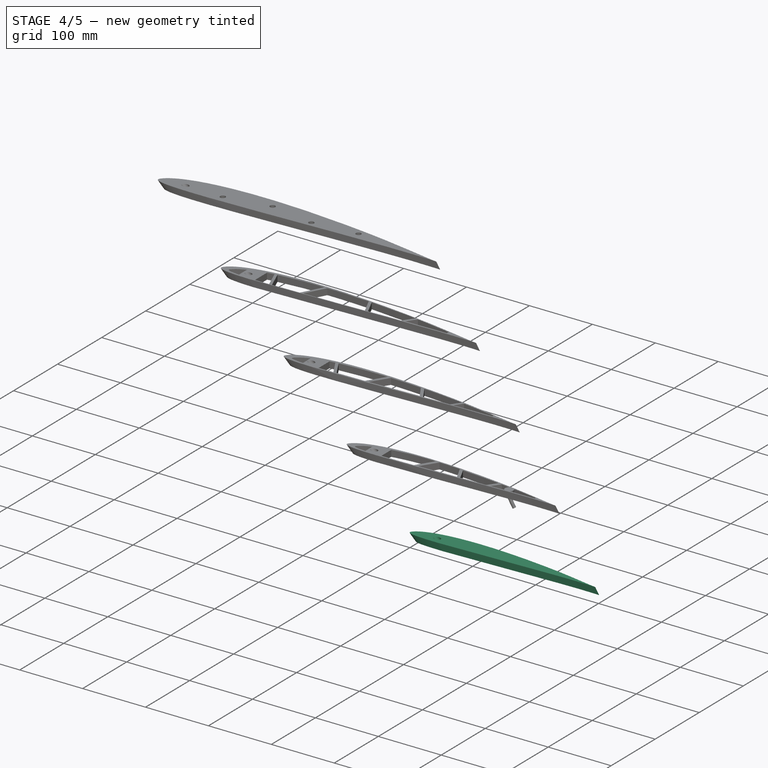
[diagram: stage 4 of 5 — iso view after this stage's code; geometry added in this stage tinted green]
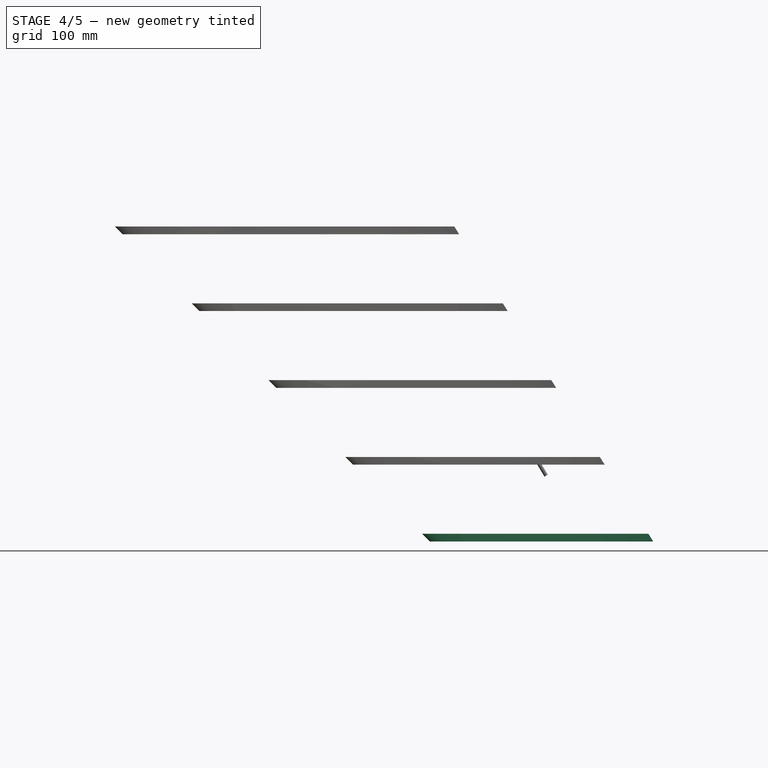
[diagram: stage 4 of 5 — front view after this stage's code; geometry added in this stage tinted green]
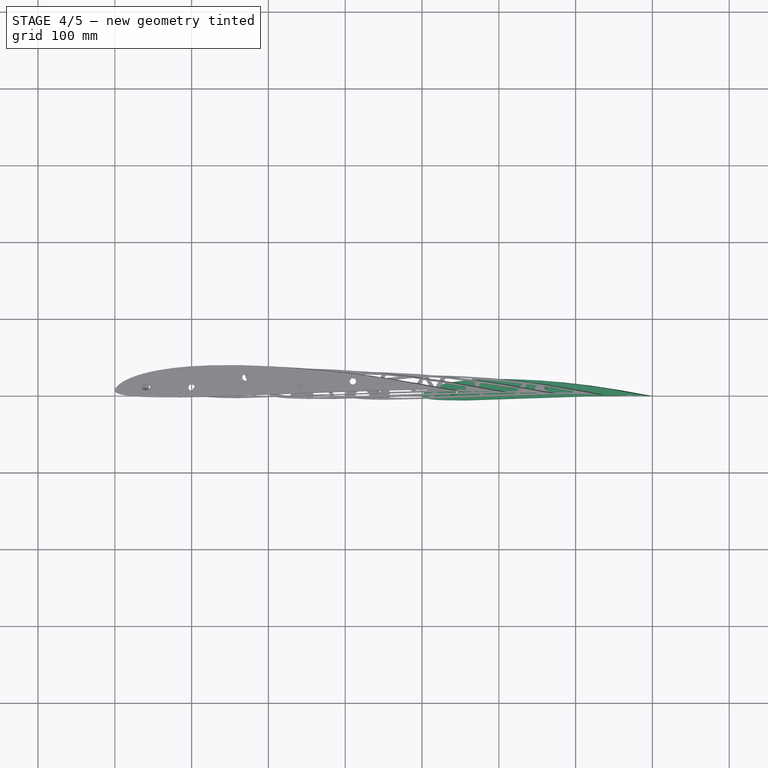
[diagram: stage 4 of 5 — top view after this stage's code; geometry added in this stage tinted green]
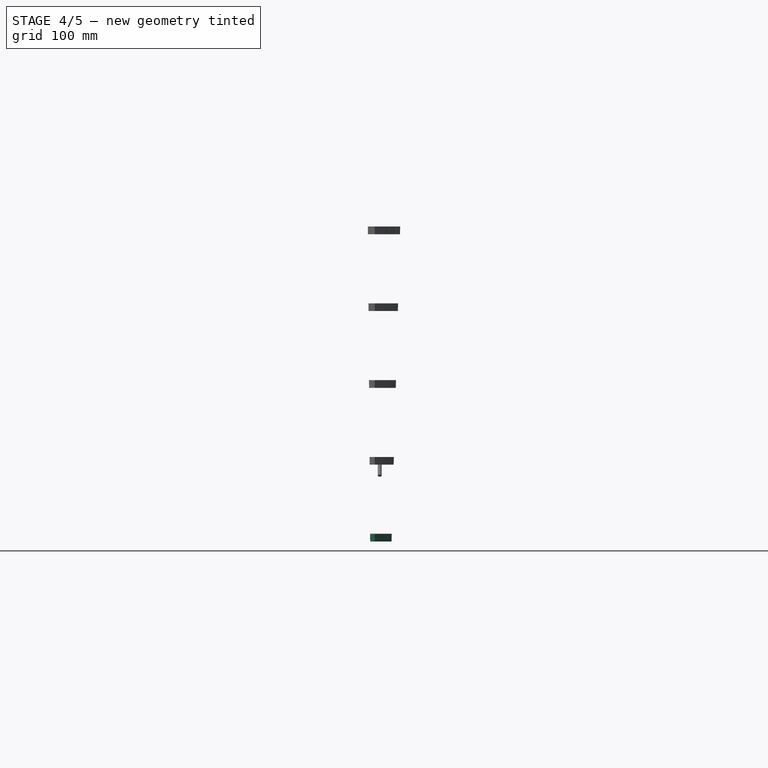
[diagram: stage 4 of 5 — right view after this stage's code; geometry added in this stage tinted green]
FEATURE [Sketcher::SketchObject] Sketch009
  ArcFitTolerance = 1e-06
  FullyConstrained = false
  MakeInternals = false
  Placement = pos=(600,0,-600) rot=(0,0,1;0rad)
  sketch-geometry (123):
    g0: BSplineCurve PolesCount=61 KnotsCount=61 Degree=3 IsPeriodic=1
    g1-g61: Circle [constr] x61 (B-spline internal-alignment scaffolding for g0; pole/knot coordinates omitted)
    g62-g122: GeomPoint [constr] x61 (B-spline internal-alignment scaffolding for g0; pole/knot coordinates omitted)
  constraints (123):
    c: InternalAlignment(g1,g0)
    c: Weight(g1) = 1
    c: InternalAlignment(g2,g0)
    c: Equal(g2,g1)
    c: InternalAlignment(g3,g0)
    c: Equal(g3,g1)
    c: InternalAlignment(g4,g0)
    c: Equal(g4,g1)
    c: InternalAlignment(g5,g0)
    c: Equal(g5,g1)
    c: InternalAlignment(g6,g0)
    c: Equal(g6,g1)
    c: InternalAlignment(g7,g0)
    c: Equal(g7,g1)
    c: InternalAlignment(g8,g0)
    c: Equal(g8,g1)
    c: InternalAlignment(g9,g0)
    c: Equal(g9,g1)
    c: InternalAlignment(g10,g0)
    c: Equal(g10,g1)
    c: InternalAlignment(g11,g0)
    c: Equal(g11,g1)
    c: InternalAlignment(g12,g0)
    c: Equal(g12,g1)
    c: InternalAlignment(g13,g0)
    c: Equal(g13,g1)
    c: InternalAlignment(g14,g0)
    c: Equal(g14,g1)
    c: InternalAlignment(g15,g0)
    c: Equal(g15,g1)
    c: InternalAlignment(g16,g0)
    c: Equal(g16,g1)
    c: InternalAlignment(g17,g0)
    c: Equal(g17,g1)
    c: InternalAlignment(g18,g0)
    c: Equal(g18,g1)
    c: InternalAlignment(g19,g0)
    c: Equal(g19,g1)
    c: InternalAlignment(g20,g0)
    c: Equal(g20,g1)
    c: InternalAlignment(g21,g0)
    c: Equal(g21,g1)
    c: InternalAlignment(g22,g0)
    c: Equal(g22,g1)
    c: InternalAlignment(g23,g0)
    c: Equal(g23,g1)
    c: InternalAlignment(g24,g0)
    c: Equal(g24,g1)
    c: InternalAlignment(g25,g0)
    c: Equal(g25,g1)
    c: InternalAlignment(g26,g0)
    c: Equal(g26,g1)
    c: InternalAlignment(g27,g0)
    c: Equal(g27,g1)
    c: InternalAlignment(g28,g0)
    c: Equal(g28,g1)
    c: InternalAlignment(g29,g0)
    c: Equal(g29,g1)
    c: InternalAlignment(g30,g0)
    c: Equal(g30,g1)
    c: InternalAlignment(g31,g0)
    c: Equal(g31,g1)
    c: InternalAlignment(g32,g0)
    c: Equal(g32,g1)
    c: InternalAlignment(g33,g0)
    c: Equal(g33,g1)
    c: InternalAlignment(g34,g0)
    c: Equal(g34,g1)
    c: InternalAlignment(g35,g0)
    c: Equal(g35,g1)
    c: InternalAlignment(g36,g0)
    c: Equal(g36,g1)
    c: InternalAlignment(g37,g0)
    c: Equal(g37,g1)
    c: InternalAlignment(g38,g0)
    c: Equal(g38,g1)
    c: InternalAlignment(g39,g0)
    c: Equal(g39,g1)
    c: InternalAlignment(g40,g0)
    c: Equal(g40,g1)
    c: InternalAlignment(g41,g0)
    c: Equal(g41,g1)
    c: InternalAlignment(g42,g0)
    c: Equal(g42,g1)
    c: InternalAlignment(g43,g0)
    c: Equal(g43,g1)
    c: InternalAlignment(g44,g0)
    c: Equal(g44,g1)
    c: InternalAlignment(g45,g0)
    c: Equal(g45,g1)
    c: InternalAlignment(g46,g0)
    c: Equal(g46,g1)
    c: InternalAlignment(g47,g0)
    c: Equal(g47,g1)
    c: InternalAlignment(g48,g0)
    c: Equal(g48,g1)
    c: InternalAlignment(g49,g0)
    c: Equal(g49,g1)
    c: InternalAlignment(g50,g0)
    c: Equal(g50,g1)
    c: InternalAlignment(g51,g0)
    c: Equal(g51,g1)
    c: InternalAlignment(g52,g0)
    c: Equal(g52,g1)
    c: InternalAlignment(g53,g0)
    c: Equal(g53,g1)
    c: InternalAlignment(g54,g0)
    c: Equal(g54,g1)
    c: InternalAlignment(g55,g0)
    c: Equal(g55,g1)
    c: InternalAlignment(g56,g0)
    c: Equal(g56,g1)
    c: InternalAlignment(g57,g0)
    c: Equal(g57,g1)
    c: InternalAlignment(g58,g0)
    c: Equal(g58,g1)
    c: InternalAlignment(g59,g0)
    c: Equal(g59,g1)
    c: InternalAlignment(g60,g0)
    c: Equal(g60,g1)
    c: InternalAlignment(g61,g0)
    c: Equal(g61,g1)
    c: InternalAlignment(g62-g122 -> g0) x61
FEATURE [Sketcher::SketchObject] Sketch010
  ArcFitTolerance = 1e-06
  FullyConstrained = false
  MakeInternals = false
  sketch-geometry (123):
    g0: BSplineCurve PolesCount=61 KnotsCount=61 Degree=3 IsPeriodic=1
    g1-g61: Circle [constr] x61 (B-spline internal-alignment scaffolding for g0; pole/knot coordinates omitted)
    g62-g122: GeomPoint [constr] x61 (B-spline internal-alignment scaffolding for g0; pole/knot coordinates omitted)
  constraints (123):
    c: InternalAlignment(g1,g0)
    c: Weight(g1) = 1
    c: InternalAlignment(g2,g0)
    c: Equal(g2,g1)
    c: InternalAlignment(g3,g0)
    c: Equal(g3,g1)
    c: InternalAlignment(g4,g0)
    c: Equal(g4,g1)
    c: InternalAlignment(g5,g0)
    c: Equal(g5,g1)
    c: InternalAlignment(g6,g0)
    c: Equal(g6,g1)
    c: InternalAlignment(g7,g0)
    c: Equal(g7,g1)
    c: InternalAlignment(g8,g0)
    c: Equal(g8,g1)
    c: InternalAlignment(g9,g0)
    c: Equal(g9,g1)
    c: InternalAlignment(g10,g0)
    c: Equal(g10,g1)
    c: InternalAlignment(g11,g0)
    c: Equal(g11,g1)
    c: InternalAlignment(g12,g0)
    c: Equal(g12,g1)
    c: InternalAlignment(g13,g0)
    c: Equal(g13,g1)
    c: InternalAlignment(g14,g0)
    c: Equal(g14,g1)
    c: InternalAlignment(g15,g0)
    c: Equal(g15,g1)
    c: InternalAlignment(g16,g0)
    c: Equal(g16,g1)
    c: InternalAlignment(g17,g0)
    c: Equal(g17,g1)
    c: InternalAlignment(g18,g0)
    c: Equal(g18,g1)
    c: InternalAlignment(g19,g0)
    c: Equal(g19,g1)
    c: InternalAlignment(g20,g0)
    c: Equal(g20,g1)
    c: InternalAlignment(g21,g0)
    c: Equal(g21,g1)
    c: InternalAlignment(g22,g0)
    c: Equal(g22,g1)
    c: InternalAlignment(g23,g0)
    c: Equal(g23,g1)
    c: InternalAlignment(g24,g0)
    c: Equal(g24,g1)
    c: InternalAlignment(g25,g0)
    c: Equal(g25,g1)
    c: InternalAlignment(g26,g0)
    c: Equal(g26,g1)
    c: InternalAlignment(g27,g0)
    c: Equal(g27,g1)
    c: InternalAlignment(g28,g0)
    c: Equal(g28,g1)
    c: InternalAlignment(g29,g0)
    c: Equal(g29,g1)
    c: InternalAlignment(g30,g0)
    c: Equal(g30,g1)
    c: InternalAlignment(g31,g0)
    c: Equal(g31,g1)
    c: InternalAlignment(g32,g0)
    c: Equal(g32,g1)
    c: InternalAlignment(g33,g0)
    c: Equal(g33,g1)
    c: InternalAlignment(g34,g0)
    c: Equal(g34,g1)
    c: InternalAlignment(g35,g0)
    c: Equal(g35,g1)
    c: InternalAlignment(g36,g0)
    c: Equal(g36,g1)
    c: InternalAlignment(g37,g0)
    c: Equal(g37,g1)
    c: InternalAlignment(g38,g0)
    c: Equal(g38,g1)
    c: InternalAlignment(g39,g0)
    c: Equal(g39,g1)
    c: InternalAlignment(g40,g0)
    c: Equal(g40,g1)
    c: InternalAlignment(g41,g0)
    c: Equal(g41,g1)
    c: InternalAlignment(g42,g0)
    c: Equal(g42,g1)
    c: InternalAlignment(g43,g0)
    c: Equal(g43,g1)
    c: InternalAlignment(g44,g0)
    c: Equal(g44,g1)
    c: InternalAlignment(g45,g0)
    c: Equal(g45,g1)
    c: InternalAlignment(g46,g0)
    c: Equal(g46,g1)
    c: InternalAlignment(g47,g0)
    c: Equal(g47,g1)
    c: InternalAlignment(g48,g0)
    c: Equal(g48,g1)
    c: InternalAlignment(g49,g0)
    c: Equal(g49,g1)
    c: InternalAlignment(g50,g0)
    c: Equal(g50,g1)
    c: InternalAlignment(g51,g0)
    c: Equal(g51,g1)
    c: InternalAlignment(g52,g0)
    c: Equal(g52,g1)
    c: InternalAlignment(g53,g0)
    c: Equal(g53,g1)
    c: InternalAlignment(g54,g0)
    c: Equal(g54,g1)
    c: InternalAlignment(g55,g0)
    c: Equal(g55,g1)
    c: InternalAlignment(g56,g0)
    c: Equal(g56,g1)
    c: InternalAlignment(g57,g0)
    c: Equal(g57,g1)
    c: InternalAlignment(g58,g0)
    c: Equal(g58,g1)
    c: InternalAlignment(g59,g0)
    c: Equal(g59,g1)
    c: InternalAlignment(g60,g0)
    c: Equal(g60,g1)
    c: InternalAlignment(g61,g0)
    c: Equal(g61,g1)
    c: InternalAlignment(g62-g122 -> g0) x61
FEATURE [PartDesign::AdditiveLoft] AdditiveLoft003
  Closed = false
  Profile = -> Sketch010
  Refine = true
  Ruled = false
  Sections = -> [Sketch009]
  Suppressed = false
FEATURE [PartDesign::Plane] DatumPlane003
  AttachmentOffset = pos=(0,0,0) rot=(0,-1,0;0.785398rad)
  AttachmentSupport = -> [AdditiveLoft003]
  Length = 700.703
  MapMode = 5
  Placement = pos=(0,0,0) rot=(0,-1,0;0.785398rad)
  ResizeMode = 0
  Width = 86.4487
FEATURE [Sketcher::SketchObject] Sketch011
  ArcFitTolerance = 1e-06
  AttachmentSupport = -> [DatumPlane003]
  FullyConstrained = false
  MakeInternals = false
  MapMode = 5
  Placement = pos=(0,0,0) rot=(0,-1,0;0.785398rad)
  sketch-geometry (1):
    g0: Circle CenterX=28.3343 CenterY=4.75298 CenterZ=0 NormalX=0 NormalY=0 NormalZ=1 AngleXU=0 Radius=4.1
  constraints (1):
    c: Diameter(g0) = 8.2
FEATURE [PartDesign::Pocket] Pocket003
  BaseFeature = -> AdditiveLoft003
  Direction = (0.707107,0,-0.707107)
  Length = 1000
  Length2 = 5
  Profile = -> Sketch011
  ReferenceAxis = -> Sketch011 [N_Axis]
  Refine = true
  Suppressed = false
  Type = 0
FEATURE [Sketcher::SketchObject] Sketch012
  ArcFitTolerance = 1e-06
  FullyConstrained = false
  MakeInternals = false
  Placement = pos=(600,0,-600) rot=(0,0,1;0rad)
  sketch-geometry (123):
    g0: BSplineCurve PolesCount=61 KnotsCount=61 Degree=3 IsPeriodic=1
    g1-g61: Circle [constr] x61 (B-spline internal-alignment scaffolding for g0; pole/knot coordinates omitted)
    g62-g122: GeomPoint [constr] x61 (B-spline internal-alignment scaffolding for g0; pole/knot coordinates omitted)
  constraints (123):
    c: InternalAlignment(g1,g0)
    c: Weight(g1) = 1
    c: InternalAlignment(g2,g0)
    c: Equal(g2,g1)
    c: InternalAlignment(g3,g0)
    c: Equal(g3,g1)
    c: InternalAlignment(g4,g0)
    c: Equal(g4,g1)
    c: InternalAlignment(g5,g0)
    c: Equal(g5,g1)
    c: InternalAlignment(g6,g0)
    c: Equal(g6,g1)
    c: InternalAlignment(g7,g0)
    c: Equal(g7,g1)
    c: InternalAlignment(g8,g0)
    c: Equal(g8,g1)
    c: InternalAlignment(g9,g0)
    c: Equal(g9,g1)
    c: InternalAlignment(g10,g0)
    c: Equal(g10,g1)
    c: InternalAlignment(g11,g0)
    c: Equal(g11,g1)
    c: InternalAlignment(g12,g0)
    c: Equal(g12,g1)
    c: InternalAlignment(g13,g0)
    c: Equal(g13,g1)
    c: InternalAlignment(g14,g0)
    c: Equal(g14,g1)
    c: InternalAlignment(g15,g0)
    c: Equal(g15,g1)
    c: InternalAlignment(g16,g0)
    c: Equal(g16,g1)
    c: InternalAlignment(g17,g0)
    c: Equal(g17,g1)
    c: InternalAlignment(g18,g0)
    c: Equal(g18,g1)
    c: InternalAlignment(g19,g0)
    c: Equal(g19,g1)
    c: InternalAlignment(g20,g0)
    c: Equal(g20,g1)
    c: InternalAlignment(g21,g0)
    c: Equal(g21,g1)
    c: InternalAlignment(g22,g0)
    c: Equal(g22,g1)
    c: InternalAlignment(g23,g0)
    c: Equal(g23,g1)
    c: InternalAlignment(g24,g0)
    c: Equal(g24,g1)
    c: InternalAlignment(g25,g0)
    c: Equal(g25,g1)
    c: InternalAlignment(g26,g0)
    c: Equal(g26,g1)
    c: InternalAlignment(g27,g0)
    c: Equal(g27,g1)
    c: InternalAlignment(g28,g0)
    c: Equal(g28,g1)
    c: InternalAlignment(g29,g0)
    c: Equal(g29,g1)
    c: InternalAlignment(g30,g0)
    c: Equal(g30,g1)
    c: InternalAlignment(g31,g0)
    c: Equal(g31,g1)
    c: InternalAlignment(g32,g0)
    c: Equal(g32,g1)
    c: InternalAlignment(g33,g0)
    c: Equal(g33,g1)
    c: InternalAlignment(g34,g0)
    c: Equal(g34,g1)
    c: InternalAlignment(g35,g0)
    c: Equal(g35,g1)
    c: InternalAlignment(g36,g0)
    c: Equal(g36,g1)
    c: InternalAlignment(g37,g0)
    c: Equal(g37,g1)
    c: InternalAlignment(g38,g0)
    c: Equal(g38,g1)
    c: InternalAlignment(g39,g0)
    c: Equal(g39,g1)
    c: InternalAlignment(g40,g0)
    c: Equal(g40,g1)
    c: InternalAlignment(g41,g0)
    c: Equal(g41,g1)
    c: InternalAlignment(g42,g0)
    c: Equal(g42,g1)
    c: InternalAlignment(g43,g0)
    c: Equal(g43,g1)
    c: InternalAlignment(g44,g0)
    c: Equal(g44,g1)
    c: InternalAlignment(g45,g0)
    c: Equal(g45,g1)
    c: InternalAlignment(g46,g0)
    c: Equal(g46,g1)
    c: InternalAlignment(g47,g0)
    c: Equal(g47,g1)
    c: InternalAlignment(g48,g0)
    c: Equal(g48,g1)
    c: InternalAlignment(g49,g0)
    c: Equal(g49,g1)
    c: InternalAlignment(g50,g0)
    c: Equal(g50,g1)
    c: InternalAlignment(g51,g0)
    c: Equal(g51,g1)
    c: InternalAlignment(g52,g0)
    c: Equal(g52,g1)
    c: InternalAlignment(g53,g0)
    c: Equal(g53,g1)
    c: InternalAlignment(g54,g0)
    c: Equal(g54,g1)
    c: InternalAlignment(g55,g0)
    c: Equal(g55,g1)
    c: InternalAlignment(g56,g0)
    c: Equal(g56,g1)
    c: InternalAlignment(g57,g0)
    c: Equal(g57,g1)
    c: InternalAlignment(g58,g0)
    c: Equal(g58,g1)
    c: InternalAlignment(g59,g0)
    c: Equal(g59,g1)
    c: InternalAlignment(g60,g0)
    c: Equal(g60,g1)
    c: InternalAlignment(g61,g0)
    c: Equal(g61,g1)
    c: InternalAlignment(g62-g122 -> g0) x61
FEATURE [Sketcher::SketchObject] Sketch013
  ArcFitTolerance = 1e-06
  FullyConstrained = false
  MakeInternals = false
  sketch-geometry (123):
    g0: BSplineCurve PolesCount=61 KnotsCount=61 Degree=3 IsPeriodic=1
    g1-g61: Circle [constr] x61 (B-spline internal-alignment scaffolding for g0; pole/knot coordinates omitted)
    g62-g122: GeomPoint [constr] x61 (B-spline internal-alignment scaffolding for g0; pole/knot coordinates omitted)
  constraints (123):
    c: InternalAlignment(g1,g0)
    c: Weight(g1) = 1
    c: InternalAlignment(g2,g0)
    c: Equal(g2,g1)
    c: InternalAlignment(g3,g0)
    c: Equal(g3,g1)
    c: InternalAlignment(g4,g0)
    c: Equal(g4,g1)
    c: InternalAlignment(g5,g0)
    c: Equal(g5,g1)
    c: InternalAlignment(g6,g0)
    c: Equal(g6,g1)
    c: InternalAlignment(g7,g0)
    c: Equal(g7,g1)
    c: InternalAlignment(g8,g0)
    c: Equal(g8,g1)
    c: InternalAlignment(g9,g0)
    c: Equal(g9,g1)
    c: InternalAlignment(g10,g0)
    c: Equal(g10,g1)
    c: InternalAlignment(g11,g0)
    c: Equal(g11,g1)
    c: InternalAlignment(g12,g0)
    c: Equal(g12,g1)
    c: InternalAlignment(g13,g0)
    c: Equal(g13,g1)
    c: InternalAlignment(g14,g0)
    c: Equal(g14,g1)
    c: InternalAlignment(g15,g0)
    c: Equal(g15,g1)
    c: InternalAlignment(g16,g0)
    c: Equal(g16,g1)
    c: InternalAlignment(g17,g0)
    c: Equal(g17,g1)
    c: InternalAlignment(g18,g0)
    c: Equal(g18,g1)
    c: InternalAlignment(g19,g0)
    c: Equal(g19,g1)
    c: InternalAlignment(g20,g0)
    c: Equal(g20,g1)
    c: InternalAlignment(g21,g0)
    c: Equal(g21,g1)
    c: InternalAlignment(g22,g0)
    c: Equal(g22,g1)
    c: InternalAlignment(g23,g0)
    c: Equal(g23,g1)
    c: InternalAlignment(g24,g0)
    c: Equal(g24,g1)
    c: InternalAlignment(g25,g0)
    c: Equal(g25,g1)
    c: InternalAlignment(g26,g0)
    c: Equal(g26,g1)
    c: InternalAlignment(g27,g0)
    c: Equal(g27,g1)
    c: InternalAlignment(g28,g0)
    c: Equal(g28,g1)
    c: InternalAlignment(g29,g0)
    c: Equal(g29,g1)
    c: InternalAlignment(g30,g0)
    c: Equal(g30,g1)
    c: InternalAlignment(g31,g0)
    c: Equal(g31,g1)
    c: InternalAlignment(g32,g0)
    c: Equal(g32,g1)
    c: InternalAlignment(g33,g0)
    c: Equal(g33,g1)
    c: InternalAlignment(g34,g0)
    c: Equal(g34,g1)
    c: InternalAlignment(g35,g0)
    c: Equal(g35,g1)
    c: InternalAlignment(g36,g0)
    c: Equal(g36,g1)
    c: InternalAlignment(g37,g0)
    c: Equal(g37,g1)
    c: InternalAlignment(g38,g0)
    c: Equal(g38,g1)
    c: InternalAlignment(g39,g0)
    c: Equal(g39,g1)
    c: InternalAlignment(g40,g0)
    c: Equal(g40,g1)
    c: InternalAlignment(g41,g0)
    c: Equal(g41,g1)
    c: InternalAlignment(g42,g0)
    c: Equal(g42,g1)
    c: InternalAlignment(g43,g0)
    c: Equal(g43,g1)
    c: InternalAlignment(g44,g0)
    c: Equal(g44,g1)
    c: InternalAlignment(g45,g0)
    c: Equal(g45,g1)
    c: InternalAlignment(g46,g0)
    c: Equal(g46,g1)
    c: InternalAlignment(g47,g0)
    c: Equal(g47,g1)
    c: InternalAlignment(g48,g0)
    c: Equal(g48,g1)
    c: InternalAlignment(g49,g0)
    c: Equal(g49,g1)
    c: InternalAlignment(g50,g0)
    c: Equal(g50,g1)
    c: InternalAlignment(g51,g0)
    c: Equal(g51,g1)
    c: InternalAlignment(g52,g0)
    c: Equal(g52,g1)
    c: InternalAlignment(g53,g0)
    c: Equal(g53,g1)
    c: InternalAlignment(g54,g0)
    c: Equal(g54,g1)
    c: InternalAlignment(g55,g0)
    c: Equal(g55,g1)
    c: InternalAlignment(g56,g0)
    c: Equal(g56,g1)
    c: InternalAlignment(g57,g0)
    c: Equal(g57,g1)
    c: InternalAlignment(g58,g0)
    c: Equal(g58,g1)
    c: InternalAlignment(g59,g0)
    c: Equal(g59,g1)
    c: InternalAlignment(g60,g0)
    c: Equal(g60,g1)
    c: InternalAlignment(g61,g0)
    c: Equal(g61,g1)
    c: InternalAlignment(g62-g122 -> g0) x61
FEATURE [PartDesign::AdditiveLoft] AdditiveLoft004
  Closed = false
  Profile = -> Sketch013
  Refine = true
  Ruled = false
  Sections = -> [Sketch012]
  Suppressed = false
FEATURE [PartDesign::Plane] DatumPlane004
  AttachmentOffset = pos=(0,0,0) rot=(0,-1,0;0.785398rad)
  AttachmentSupport = -> [AdditiveLoft004]
  Length = 780.707
  MapMode = 5
  Placement = pos=(0,0,0) rot=(0,-1,0;0.785398rad)
  ResizeMode = 0
  Width = 88.5274
FEATURE [Sketcher::SketchObject] Sketch014
  ArcFitTolerance = 1e-06
  AttachmentSupport = -> [DatumPlane004]
  FullyConstrained = false
  MakeInternals = false
  MapMode = 5
  Placement = pos=(0,0,0) rot=(0,-1,0;0.785398rad)
  sketch-geometry (1):
    g0: Circle CenterX=28.3343 CenterY=4.75298 CenterZ=0 NormalX=0 NormalY=0 NormalZ=1 AngleXU=0 Radius=4.1
  constraints (1):
    c: Diameter(g0) = 8.2
FEATURE [PartDesign::Pocket] Pocket004
  BaseFeature = -> AdditiveLoft004
  Direction = (0.707107,0,-0.707107)
  Length = 1000
  Length2 = 5
  Profile = -> Sketch014
  ReferenceAxis = -> Sketch014 [N_Axis]
  Refine = true
  Suppressed = false
  Type = 0
FEATURE [Sketcher::SketchObject] Sketch026
  ArcFitTolerance = 1e-06
  AttachmentSupport = -> [Pocket003]
  FullyConstrained = false
  MakeInternals = false
  MapMode = 5
  sketch-geometry (4):
    g0: LineSegment StartX=-344.991 StartY=348.339 StartZ=0 EndX=-344.991 EndY=-308.863 EndZ=0
    g1: LineSegment StartX=-344.991 StartY=-308.863 StartZ=0 EndX=993.672 EndY=-308.863 EndZ=0
    g2: LineSegment StartX=993.672 StartY=-308.863 StartZ=0 EndX=993.672 EndY=348.339 EndZ=0
    g3: LineSegment StartX=993.672 StartY=348.339 StartZ=0 EndX=-344.991 EndY=348.339 EndZ=0
  constraints (8):
    c: Coincident(g0,g1)
    c: Coincident(g1,g2)
    c: Coincident(g2,g3)
    c: Coincident(g3,g0)
    c: Vertical(g0)
    c: Vertical(g2)
    c: Horizontal(g1)
    c: Horizontal(g3)
FEATURE [PartDesign::Pocket] Pocket012
  BaseFeature = -> Pocket003
  Direction = (0,0,-1)
  Length = 300
  Length2 = 5
  Profile = -> Sketch026
  ReferenceAxis = -> Sketch026 [N_Axis]
  Refine = true
  Suppressed = false
  Type = 0
FEATURE [Sketcher::SketchObject] Sketch027
  ArcFitTolerance = 1e-06
  AttachmentSupport = -> [Pocket012]
  FullyConstrained = false
  MakeInternals = false
  MapMode = 5
  Placement = pos=(0,0,-600) rot=(1,0,0;3.14159rad)
  sketch-geometry (4):
    g0: LineSegment StartX=196.967 StartY=129.212 StartZ=0 EndX=196.967 EndY=-99.542 EndZ=0
    g1: LineSegment StartX=196.967 StartY=-99.542 StartZ=0 EndX=981.265 EndY=-99.542 EndZ=0
    g2: LineSegment StartX=981.265 StartY=-99.542 StartZ=0 EndX=981.265 EndY=129.212 EndZ=0
    g3: LineSegment StartX=981.265 StartY=129.212 StartZ=0 EndX=196.967 EndY=129.212 EndZ=0
  constraints (8):
    c: Coincident(g0,g1)
    c: Coincident(g1,g2)
    c: Coincident(g2,g3)
    c: Coincident(g3,g0)
    c: Vertical(g0)
    c: Vertical(g2)
    c: Horizontal(g1)
    c: Horizontal(g3)
FEATURE [PartDesign::Pocket] Pocket013
  BaseFeature = -> Pocket012
  Direction = (0,0,1)
  Length = 290
  Length2 = 5
  Profile = -> Sketch027
  ReferenceAxis = -> Sketch027 [N_Axis]
  Refine = true
  Suppressed = false
  Type = 0
FEATURE [Sketcher::SketchObject] Sketch028
  ArcFitTolerance = 1e-06
  AttachmentSupport = -> [Pocket004]
  FullyConstrained = false
  MakeInternals = false
  MapMode = 5
  sketch-geometry (4):
    g0: LineSegment StartX=-165.265 StartY=216.038 StartZ=0 EndX=-165.265 EndY=-118.015 EndZ=0
    g1: LineSegment StartX=-165.265 StartY=-118.015 StartZ=0 EndX=853.838 EndY=-118.015 EndZ=0
    g2: LineSegment StartX=853.838 StartY=-118.015 StartZ=0 EndX=853.838 EndY=216.038 EndZ=0
    g3: LineSegment StartX=853.838 StartY=216.038 StartZ=0 EndX=-165.265 EndY=216.038 EndZ=0
  constraints (8):
    c: Coincident(g0,g1)
    c: Coincident(g1,g2)
    c: Coincident(g2,g3)
    c: Coincident(g3,g0)
    c: Vertical(g0)
    c: Vertical(g2)
    c: Horizontal(g1)
    c: Horizontal(g3)
FEATURE [PartDesign::Pocket] Pocket014
  BaseFeature = -> Pocket004
  Direction = (0,0,-1)
  Length = 400
  Length2 = 5
  Profile = -> Sketch028
  ReferenceAxis = -> Sketch028 [N_Axis]
  Refine = true
  Suppressed = false
  Type = 0
FEATURE [Sketcher::SketchObject] Sketch029
  ArcFitTolerance = 1e-06
  AttachmentSupport = -> [Pocket014]
  FullyConstrained = false
  MakeInternals = false
  MapMode = 5
  Placement = pos=(0,0,-600) rot=(1,0,0;3.14159rad)
  sketch-geometry (4):
    g0: LineSegment StartX=315.981 StartY=60.9079 StartZ=0 EndX=315.981 EndY=-70.6615 EndZ=0
    g1: LineSegment StartX=315.981 StartY=-70.6615 StartZ=0 EndX=912.479 EndY=-70.6615 EndZ=0
    g2: LineSegment StartX=912.479 StartY=-70.6615 StartZ=0 EndX=912.479 EndY=60.9079 EndZ=0
    g3: LineSegment StartX=912.479 StartY=60.9079 StartZ=0 EndX=315.981 EndY=60.9079 EndZ=0
  constraints (8):
    c: Coincident(g0,g1)
    c: Coincident(g1,g2)
    c: Coincident(g2,g3)
    c: Coincident(g3,g0)
    c: Vertical(g0)
    c: Vertical(g2)
    c: Horizontal(g1)
    c: Horizontal(g3)
FEATURE [PartDesign::Pocket] Pocket015
  BaseFeature = -> Pocket014
  Direction = (0,0,1)
  Length = 190
  Length2 = 5
  Profile = -> Sketch029
  ReferenceAxis = -> Sketch029 [N_Axis]
  Refine = true
  Suppressed = false
  Type = 0
FEATURE [PartDesign::Body] Body004
  AllowCompound = false
  Group = -> [Sketch013,Sketch012,AdditiveLoft004,DatumPlane004,Sketch014,Pocket004,Sketch028,Pocket014,Sketch029,Pocket015,Sketch038,Pocket021,Sketch039,Pocket022]
  Origin = -> Origin004
  Tip = -> Pocket022
FEATURE [Sketcher::SketchObject] Sketch040
  ArcFitTolerance = 1e-06
  AttachmentSupport = -> [Pocket013]
  FullyConstrained = false
  MakeInternals = false
  MapMode = 5
  Placement = pos=(0,0,-310) rot=(1,0,0;3.14159rad)
  sketch-geometry (56):
    g0: LineSegment StartX=332.032 StartY=3.92783 StartZ=0 EndX=332.032 EndY=-12.0562 EndZ=0
    g1: LineSegment StartX=332.032 StartY=-12.0562 StartZ=0 EndX=330.396 EndY=-11.418 EndZ=0
    g2: LineSegment StartX=330.396 StartY=-11.418 StartZ=0 EndX=325.235 EndY=-9.31772 EndZ=0
    g3: LineSegment StartX=325.235 StartY=-9.31772 StartZ=0 EndX=321.545 EndY=-7.54348 EndZ=0
    g4: LineSegment StartX=321.545 StartY=-7.54348 StartZ=0 EndX=318.351 EndY=-5.6273 EndZ=0
    g5: LineSegment StartX=318.351 StartY=-5.6273 StartZ=0 EndX=315.441 EndY=-3.71112 EndZ=0
    g6: LineSegment StartX=315.441 StartY=-3.71112 StartZ=0 EndX=314.022 EndY=-2.22077 EndZ=0
    g7: LineSegment StartX=314.022 StartY=-2.22077 StartZ=0 EndX=313.099 EndY=-0.659436 EndZ=0
    g8: LineSegment StartX=313.099 StartY=-0.659436 StartZ=0 EndX=312.957 EndY=0.476075 EndZ=0
    g9: LineSegment StartX=312.957 StartY=0.476075 StartZ=0 EndX=313.596 EndY=0.901893 EndZ=0
    g10: LineSegment StartX=313.596 StartY=0.901893 StartZ=0 EndX=315.654 EndY=1.75353 EndZ=0
    g11: LineSegment StartX=315.654 StartY=1.75353 StartZ=0 EndX=318.777 EndY=2.60516 EndZ=0
    g12: LineSegment StartX=318.777 StartY=2.60516 StartZ=0 EndX=322.325 EndY=3.10195 EndZ=0
    g13: LineSegment StartX=322.325 StartY=3.10195 StartZ=0 EndX=327.435 EndY=3.52776 EndZ=0
    g14: LineSegment StartX=327.435 StartY=3.52776 StartZ=0 EndX=332.032 EndY=3.92783 EndZ=0
    g15: LineSegment StartX=596.656 StartY=-2.47566 StartZ=0 EndX=596.656 EndY=-4.90277 EndZ=0
    g16: LineSegment StartX=596.656 StartY=-4.90277 StartZ=0 EndX=568.724 EndY=-9.51106 EndZ=0
    g17: LineSegment StartX=568.724 StartY=-9.51106 StartZ=0 EndX=547.062 EndY=-12.2805 EndZ=0
    g18: LineSegment StartX=547.062 StartY=-12.2805 StartZ=0 EndX=536.786 EndY=-13.5531 EndZ=0
    g19: LineSegment StartX=536.786 StartY=-13.5531 StartZ=0 EndX=527.534 EndY=-0.989378 EndZ=0
    g20: LineSegment StartX=527.534 StartY=-0.989378 StartZ=0 EndX=547.951 EndY=-1.76517 EndZ=0
    g21: LineSegment StartX=547.951 StartY=-1.76517 StartZ=0 EndX=582.087 EndY=-2.61681 EndZ=0
    g22: LineSegment StartX=582.087 StartY=-2.61681 StartZ=0 EndX=596.656 EndY=-2.47566 EndZ=0
    g23: LineSegment StartX=531.003 StartY=-14.2202 StartZ=0 EndX=520.9 EndY=-0.500741 EndZ=0
    g24: LineSegment StartX=531.003 StartY=-14.2202 StartZ=0 EndX=505.941 EndY=-17.0028 EndZ=0
    g25: LineSegment StartX=505.941 StartY=-17.0028 StartZ=0 EndX=482.916 EndY=-18.8581 EndZ=0
    g26: LineSegment StartX=482.916 StartY=-18.8581 StartZ=0 EndX=470.676 EndY=-19.744 EndZ=0
    g27: LineSegment StartX=470.676 StartY=-19.744 StartZ=0 EndX=480.564 EndY=0.541013 EndZ=0
    g28: LineSegment StartX=480.564 StartY=0.541013 StartZ=0 EndX=493.641 EndY=0.022556 EndZ=0
    g29: LineSegment StartX=493.641 StartY=0.022556 StartZ=0 EndX=506.533 EndY=-0.26288 EndZ=0
    g30: LineSegment StartX=506.533 StartY=-0.26288 StartZ=0 EndX=515.762 EndY=-0.310453 EndZ=0
    g31: LineSegment StartX=515.762 StartY=-0.310453 StartZ=0 EndX=520.9 EndY=-0.500741 EndZ=0
    g32: LineSegment StartX=475.564 StartY=0.974291 StartZ=0 EndX=464.963 EndY=-20.7733 EndZ=0
    g33: LineSegment StartX=475.564 StartY=0.974291 StartZ=0 EndX=453.041 EndY=1.52388 EndZ=0
    g34: LineSegment StartX=453.041 StartY=1.52388 StartZ=0 EndX=427.59 EndY=2.38018 EndZ=0
    g35: LineSegment StartX=427.59 StartY=2.38018 StartZ=0 EndX=415.511 EndY=2.89765 EndZ=0
    g36: LineSegment StartX=415.511 StartY=2.89765 StartZ=0 EndX=431.488 EndY=-22.3382 EndZ=0
    g37: LineSegment StartX=431.488 StartY=-22.3382 StartZ=0 EndX=441.844 EndY=-22.1764 EndZ=0
    g38: LineSegment StartX=441.844 StartY=-22.1764 StartZ=0 EndX=450.773 EndY=-21.9213 EndZ=0
    g39: LineSegment StartX=450.773 StartY=-21.9213 StartZ=0 EndX=460.18 EndY=-21.2835 EndZ=0
    g40: LineSegment StartX=460.18 StartY=-21.2835 StartZ=0 EndX=464.963 EndY=-20.7733 EndZ=0
    g41: LineSegment StartX=425.327 StartY=-22.6169 StartZ=0 EndX=408.845 EndY=3.41656 EndZ=0
    g42: LineSegment StartX=408.845 StartY=3.41656 StartZ=0 EndX=398.718 EndY=3.65025 EndZ=0
    g43: LineSegment StartX=398.718 StartY=3.65025 StartZ=0 EndX=388.942 EndY=4.00079 EndZ=0
    g44: LineSegment StartX=388.942 StartY=4.00079 StartZ=0 EndX=379.162 EndY=4.1568 EndZ=0
    g45: LineSegment StartX=379.162 StartY=4.1568 StartZ=0 EndX=371.688 EndY=4.23449 EndZ=0
    g46: LineSegment StartX=371.688 StartY=4.23449 StartZ=0 EndX=357.783 EndY=4.06055 EndZ=0
    g47: LineSegment StartX=357.783 StartY=4.06055 StartZ=0 EndX=357.783 EndY=-18.082 EndZ=0
    g48: LineSegment StartX=357.783 StartY=-18.082 StartZ=0 EndX=365.437 EndY=-19.1346 EndZ=0
    g49: LineSegment StartX=365.437 StartY=-19.1346 StartZ=0 EndX=373.765 EndY=-20.2573 EndZ=0
    g50: LineSegment StartX=373.765 StartY=-20.2573 StartZ=0 EndX=383.403 EndY=-21.3544 EndZ=0
    g51: LineSegment StartX=383.403 StartY=-21.3544 StartZ=0 EndX=390.321 EndY=-21.8765 EndZ=0
    g52: LineSegment StartX=390.321 StartY=-21.8765 StartZ=0 EndX=400.065 EndY=-22.3975 EndZ=0
    g53: LineSegment StartX=400.065 StartY=-22.3975 StartZ=0 EndX=410.412 EndY=-22.6053 EndZ=0
    g54: LineSegment StartX=410.412 StartY=-22.6053 StartZ=0 EndX=418.714 EndY=-22.5792 EndZ=0
    g55: LineSegment StartX=418.714 StartY=-22.5792 StartZ=0 EndX=425.327 EndY=-22.6169 EndZ=0
  constraints (62):
    c: Vertical(g0)
    c: Coincident(g0,g1)
    c: Coincident(g1,g2)
    c: Coincident(g2,g3)
    c: Coincident(g3,g4)
    c: Coincident(g4,g5)
    c: Coincident(g5,g6)
    c: Coincident(g6,g7)
    c: Coincident(g7,g8)
    c: Coincident(g8,g9)
    c: Coincident(g9,g10)
    c: Coincident(g10,g11)
    c: Coincident(g11,g12)
    c: Coincident(g12,g13)
    c: Coincident(g13,g14)
    c: Coincident(g14,g0)
    c: Vertical(g15)
    c: Coincident(g15,g16)
    c: Coincident(g16,g17)
    c: Coincident(g17,g18)
    c: Coincident(g18,g19)
    c: Coincident(g19,g20)
    c: Coincident(g20,g21)
    c: Coincident(g21,g22)
    c: Coincident(g22,g15)
    c: Parallel(g19,g23)
    c: Coincident(g23,g24)
    c: Coincident(g24,g25)
    c: Coincident(g25,g26)
    c: Coincident(g26,g27)
    c: Coincident(g27,g28)
    c: Coincident(g28,g29)
    c: Coincident(g29,g30)
    c: Coincident(g30,g31)
    c: Coincident(g31,g23)
    c: Parallel(g27,g32)
    c: Coincident(g32,g33)
    c: Coincident(g33,g34)
    c: Coincident(g34,g35)
    c: Coincident(g35,g36)
    c: Coincident(g36,g37)
    c: Coincident(g37,g38)
    c: Coincident(g38,g39)
    c: Coincident(g39,g40)
    c: Coincident(g40,g32)
    c: Coincident(g41,g42)
    c: Coincident(g42,g43)
    c: Coincident(g43,g44)
    c: Coincident(g44,g45)
    c: Coincident(g45,g46)
    c: Coincident(g46,g47)
    c: Vertical(g47)
    c: Coincident(g47,g48)
    c: Coincident(g48,g49)
    c: Coincident(g49,g50)
    c: Coincident(g50,g51)
    c: Coincident(g51,g52)
    c: Coincident(g52,g53)
    c: Coincident(g53,g54)
    c: Coincident(g54,g55)
    c: Coincident(g55,g41)
    c: Parallel(g36,g41)
FEATURE [PartDesign::Pocket] Pocket023
  BaseFeature = -> Pocket013
  Direction = (0,0,1)
  Length = 15
  Length2 = 5
  Profile = -> Sketch040
  ReferenceAxis = -> Sketch040 [N_Axis]
  Refine = true
  Suppressed = false
  Type = 0
FEATURE [Sketcher::SketchObject] Sketch041
  ArcFitTolerance = 1e-06
  AttachmentSupport = -> [Pocket023]
  FullyConstrained = false
  MakeInternals = false
  MapMode = 5
  Placement = pos=(0,0,-310) rot=(1,0,0;3.14159rad)
  sketch-geometry (1):
    g0: Circle CenterX=553.316 CenterY=-6.6 CenterZ=0 NormalX=0 NormalY=0 NormalZ=1 AngleXU=0 Radius=6.5
  constraints (2):
    c: Diameter(g0) = 13
    c: DistanceY(g0,g-1) = 6.6
FEATURE [PartDesign::Pad] Pad003
  BaseFeature = -> Pocket023
  Direction = (0,0,-1)
  Length = 10
  Length2 = 10
  Profile = -> Sketch041
  ReferenceAxis = -> Sketch041 [N_Axis]
  Refine = true
  Reversed = true
  Suppressed = false
  Type = 0
FEATURE [PartDesign::Plane] DatumPlane008
  AttachmentOffset = pos=(0,0,328) rot=(0,1,0;0.54042rad)
  AttachmentSupport = -> [Pad003]
  Length = 865.135
  MapMode = 5
  Placement = pos=(0,0,-638) rot=(0.963715,0,0.266934;3.14159rad)
  ResizeMode = 0
  Width = 90.6085
FEATURE [Sketcher::SketchObject] Sketch042
  ArcFitTolerance = 1e-06
  AttachmentSupport = -> [DatumPlane008]
  FullyConstrained = false
  MakeInternals = false
  MapMode = 5
  Placement = pos=(0,0,-638) rot=(0.963715,0,0.266934;3.14159rad)
  sketch-geometry (1):
    g0: Circle CenterX=642.946 CenterY=-6.5 CenterZ=0 NormalX=0 NormalY=0 NormalZ=1 AngleXU=0 Radius=2.5
  constraints (2):
    c: Diameter(g0) = 5
    c: DistanceY(g0,g-1) = 6.5
FEATURE [PartDesign::Pad] Pad004
  BaseFeature = -> Pad003
  Direction = (0.514496,0,-0.857493)
  Length = 20
  Length2 = 10
  Profile = -> Sketch042
  ReferenceAxis = -> Sketch042 [N_Axis]
  Refine = true
  Suppressed = false
  Type = 0
FEATURE [Sketcher::SketchObject] Sketch051
  ArcFitTolerance = 1e-06
  AttachmentSupport = -> [Pad004]
  FullyConstrained = false
  MakeInternals = false
  MapMode = 5
  Placement = pos=(0,0,-310) rot=(1,0,0;3.14159rad)
  sketch-geometry (4):
    g0: LineSegment StartX=560 StartY=2.94348 StartZ=0 EndX=560 EndY=-14.7871 EndZ=0
    g1: LineSegment StartX=560 StartY=-14.7871 StartZ=0 EndX=644.72 EndY=-14.7871 EndZ=0
    g2: LineSegment StartX=644.72 StartY=-14.7871 StartZ=0 EndX=644.72 EndY=2.94348 EndZ=0
    g3: LineSegment StartX=644.72 StartY=2.94348 StartZ=0 EndX=560 EndY=2.94348 EndZ=0
  constraints (9):
    c: Coincident(g0,g1)
    c: Coincident(g1,g2)
    c: Coincident(g2,g3)
    c: Coincident(g3,g0)
    c: Vertical(g0)
    c: Vertical(g2)
    c: Horizontal(g1)
    c: Horizontal(g3)
    c: DistanceX(g-1,g0) = 560
FEATURE [PartDesign::Pocket] Pocket028
  BaseFeature = -> Pad004
  Direction = (0,0,1)
  Length = 15
  Length2 = 5
  Profile = -> Sketch051
  ReferenceAxis = -> Sketch051 [N_Axis]
  Refine = true
  Suppressed = false
  Type = 0
FEATURE [PartDesign::Body] Body003
  AllowCompound = false
  Group = -> [Sketch010,Sketch009,AdditiveLoft003,DatumPlane003,Sketch011,Pocket003,Sketch026,Pocket012,Sketch027,Pocket013,Sketch040,Pocket023,Sketch041,Pad003,DatumPlane008,Sketch042,Pad004,Sketch051,Pocket028]
  Origin = -> Origin003
  Tip = -> Pocket028
FEATURE [Sketcher::SketchObject] Sketch052
  ArcFitTolerance = 1e-06
  AttachmentSupport = -> [Pad006]
  FullyConstrained = false
  MakeInternals = false
  MapMode = 5
  Placement = pos=(0,0,-310) rot=(1,0,0;3.14159rad)
  sketch-geometry (4):
    g0: LineSegment StartX=263.238 StartY=35.4122 StartZ=0 EndX=263.238 EndY=-50.8588 EndZ=0
    g1: LineSegment StartX=263.238 StartY=-50.8588 StartZ=0 EndX=560 EndY=-50.8588 EndZ=0
    g2: LineSegment StartX=560 StartY=-50.8588 StartZ=0 EndX=560 EndY=35.4122 EndZ=0
    g3: LineSegment StartX=560 StartY=35.4122 StartZ=0 EndX=263.238 EndY=35.4122 EndZ=0
  constraints (9):
    c: Coincident(g0,g1)
    c: Coincident(g1,g2)
    c: Coincident(g2,g3)
    c: Coincident(g3,g0)
    c: Vertical(g0)
    c: Vertical(g2)
    c: Horizontal(g1)
    c: Horizontal(g3)
    c: DistanceX(g-1,g2) = 560
FEATURE [PartDesign::Pocket] Pocket029
  BaseFeature = -> Pad006
  Direction = (0,0,1)
  Length = 20
  Length2 = 5
  Midplane = true
  Profile = -> Sketch052
  ReferenceAxis = -> Sketch052 [N_Axis]
  Refine = true
  Suppressed = false
  Type = 0
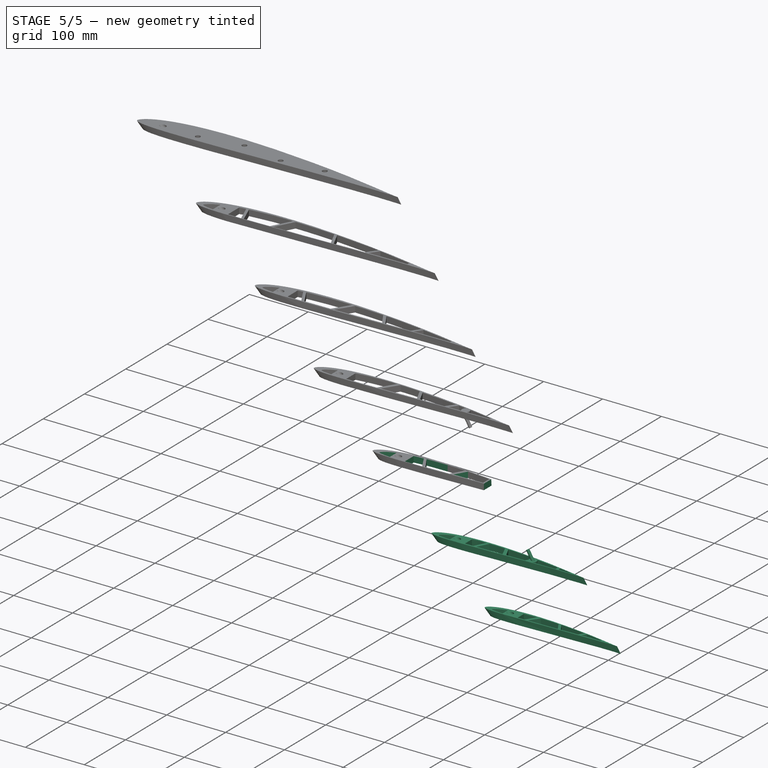
[diagram: stage 5 of 5 — iso view after this stage's code; geometry added in this stage tinted green]
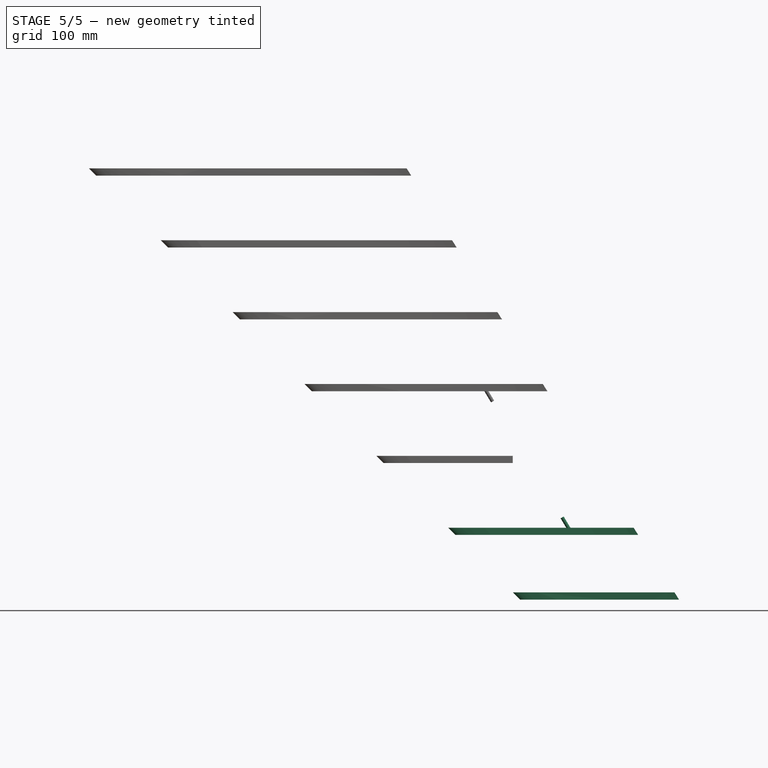
[diagram: stage 5 of 5 — front view after this stage's code; geometry added in this stage tinted green]
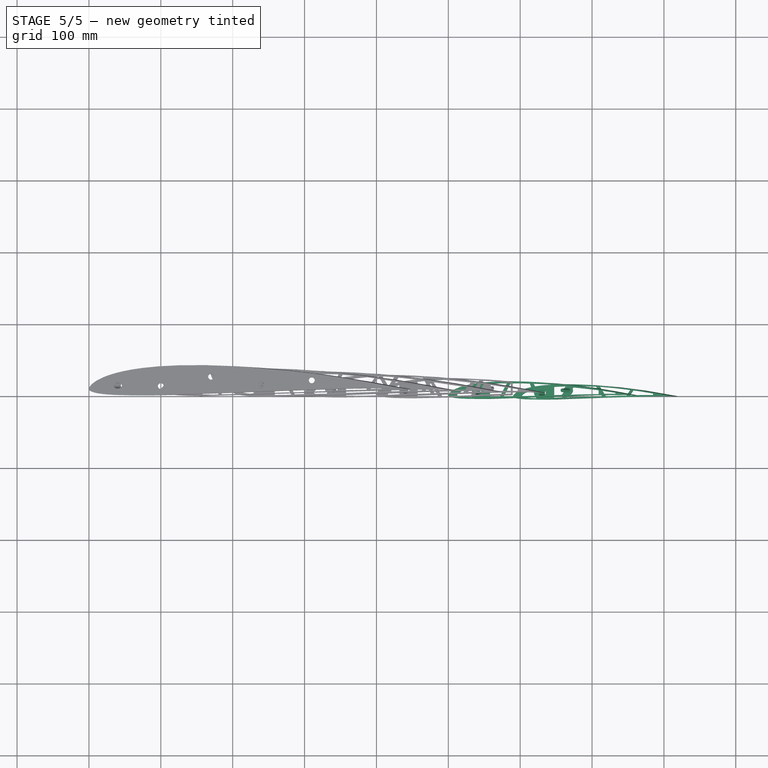
[diagram: stage 5 of 5 — top view after this stage's code; geometry added in this stage tinted green]
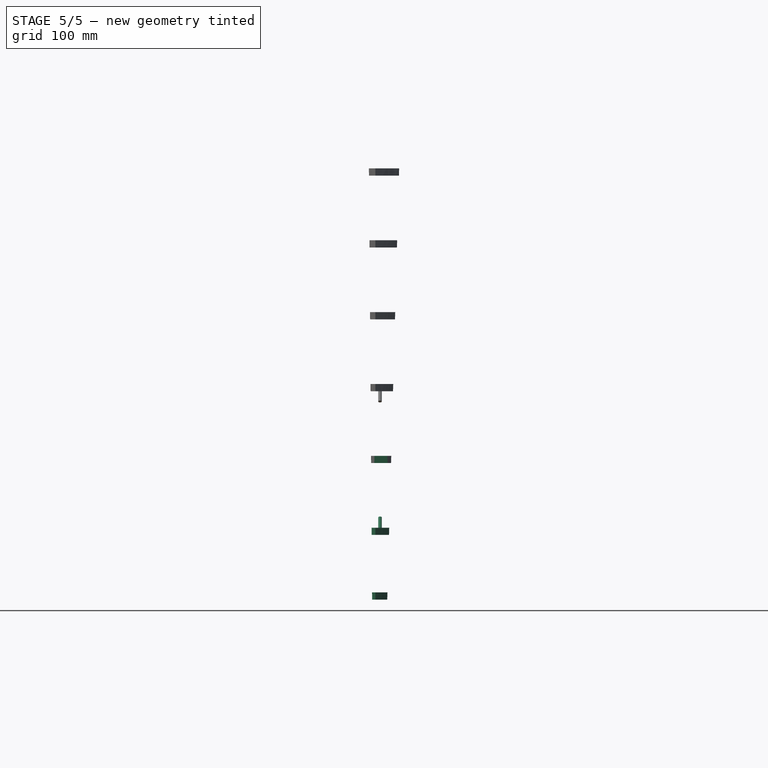
[diagram: stage 5 of 5 — right view after this stage's code; geometry added in this stage tinted green]
FEATURE [Sketcher::SketchObject] Sketch015
  ArcFitTolerance = 1e-06
  FullyConstrained = false
  MakeInternals = false
  Placement = pos=(600,0,-600) rot=(0,0,1;0rad)
  sketch-geometry (123):
    g0: BSplineCurve PolesCount=61 KnotsCount=61 Degree=3 IsPeriodic=1
    g1-g61: Circle [constr] x61 (B-spline internal-alignment scaffolding for g0; pole/knot coordinates omitted)
    g62-g122: GeomPoint [constr] x61 (B-spline internal-alignment scaffolding for g0; pole/knot coordinates omitted)
  constraints (123):
    c: InternalAlignment(g1,g0)
    c: Weight(g1) = 1
    c: InternalAlignment(g2,g0)
    c: Equal(g2,g1)
    c: InternalAlignment(g3,g0)
    c: Equal(g3,g1)
    c: InternalAlignment(g4,g0)
    c: Equal(g4,g1)
    c: InternalAlignment(g5,g0)
    c: Equal(g5,g1)
    c: InternalAlignment(g6,g0)
    c: Equal(g6,g1)
    c: InternalAlignment(g7,g0)
    c: Equal(g7,g1)
    c: InternalAlignment(g8,g0)
    c: Equal(g8,g1)
    c: InternalAlignment(g9,g0)
    c: Equal(g9,g1)
    c: InternalAlignment(g10,g0)
    c: Equal(g10,g1)
    c: InternalAlignment(g11,g0)
    c: Equal(g11,g1)
    c: InternalAlignment(g12,g0)
    c: Equal(g12,g1)
    c: InternalAlignment(g13,g0)
    c: Equal(g13,g1)
    c: InternalAlignment(g14,g0)
    c: Equal(g14,g1)
    c: InternalAlignment(g15,g0)
    c: Equal(g15,g1)
    c: InternalAlignment(g16,g0)
    c: Equal(g16,g1)
    c: InternalAlignment(g17,g0)
    c: Equal(g17,g1)
    c: InternalAlignment(g18,g0)
    c: Equal(g18,g1)
    c: InternalAlignment(g19,g0)
    c: Equal(g19,g1)
    c: InternalAlignment(g20,g0)
    c: Equal(g20,g1)
    c: InternalAlignment(g21,g0)
    c: Equal(g21,g1)
    c: InternalAlignment(g22,g0)
    c: Equal(g22,g1)
    c: InternalAlignment(g23,g0)
    c: Equal(g23,g1)
    c: InternalAlignment(g24,g0)
    c: Equal(g24,g1)
    c: InternalAlignment(g25,g0)
    c: Equal(g25,g1)
    c: InternalAlignment(g26,g0)
    c: Equal(g26,g1)
    c: InternalAlignment(g27,g0)
    c: Equal(g27,g1)
    c: InternalAlignment(g28,g0)
    c: Equal(g28,g1)
    c: InternalAlignment(g29,g0)
    c: Equal(g29,g1)
    c: InternalAlignment(g30,g0)
    c: Equal(g30,g1)
    c: InternalAlignment(g31,g0)
    c: Equal(g31,g1)
    c: InternalAlignment(g32,g0)
    c: Equal(g32,g1)
    c: InternalAlignment(g33,g0)
    c: Equal(g33,g1)
    c: InternalAlignment(g34,g0)
    c: Equal(g34,g1)
    c: InternalAlignment(g35,g0)
    c: Equal(g35,g1)
    c: InternalAlignment(g36,g0)
    c: Equal(g36,g1)
    c: InternalAlignment(g37,g0)
    c: Equal(g37,g1)
    c: InternalAlignment(g38,g0)
    c: Equal(g38,g1)
    c: InternalAlignment(g39,g0)
    c: Equal(g39,g1)
    c: InternalAlignment(g40,g0)
    c: Equal(g40,g1)
    c: InternalAlignment(g41,g0)
    c: Equal(g41,g1)
    c: InternalAlignment(g42,g0)
    c: Equal(g42,g1)
    c: InternalAlignment(g43,g0)
    c: Equal(g43,g1)
    c: InternalAlignment(g44,g0)
    c: Equal(g44,g1)
    c: InternalAlignment(g45,g0)
    c: Equal(g45,g1)
    c: InternalAlignment(g46,g0)
    c: Equal(g46,g1)
    c: InternalAlignment(g47,g0)
    c: Equal(g47,g1)
    c: InternalAlignment(g48,g0)
    c: Equal(g48,g1)
    c: InternalAlignment(g49,g0)
    c: Equal(g49,g1)
    c: InternalAlignment(g50,g0)
    c: Equal(g50,g1)
    c: InternalAlignment(g51,g0)
    c: Equal(g51,g1)
    c: InternalAlignment(g52,g0)
    c: Equal(g52,g1)
    c: InternalAlignment(g53,g0)
    c: Equal(g53,g1)
    c: InternalAlignment(g54,g0)
    c: Equal(g54,g1)
    c: InternalAlignment(g55,g0)
    c: Equal(g55,g1)
    c: InternalAlignment(g56,g0)
    c: Equal(g56,g1)
    c: InternalAlignment(g57,g0)
    c: Equal(g57,g1)
    c: InternalAlignment(g58,g0)
    c: Equal(g58,g1)
    c: InternalAlignment(g59,g0)
    c: Equal(g59,g1)
    c: InternalAlignment(g60,g0)
    c: Equal(g60,g1)
    c: InternalAlignment(g61,g0)
    c: Equal(g61,g1)
    c: InternalAlignment(g62-g122 -> g0) x61
FEATURE [Sketcher::SketchObject] Sketch016
  ArcFitTolerance = 1e-06
  FullyConstrained = false
  MakeInternals = false
  sketch-geometry (123):
    g0: BSplineCurve PolesCount=61 KnotsCount=61 Degree=3 IsPeriodic=1
    g1-g61: Circle [constr] x61 (B-spline internal-alignment scaffolding for g0; pole/knot coordinates omitted)
    g62-g122: GeomPoint [constr] x61 (B-spline internal-alignment scaffolding for g0; pole/knot coordinates omitted)
  constraints (123):
    c: InternalAlignment(g1,g0)
    c: Weight(g1) = 1
    c: InternalAlignment(g2,g0)
    c: Equal(g2,g1)
    c: InternalAlignment(g3,g0)
    c: Equal(g3,g1)
    c: InternalAlignment(g4,g0)
    c: Equal(g4,g1)
    c: InternalAlignment(g5,g0)
    c: Equal(g5,g1)
    c: InternalAlignment(g6,g0)
    c: Equal(g6,g1)
    c: InternalAlignment(g7,g0)
    c: Equal(g7,g1)
    c: InternalAlignment(g8,g0)
    c: Equal(g8,g1)
    c: InternalAlignment(g9,g0)
    c: Equal(g9,g1)
    c: InternalAlignment(g10,g0)
    c: Equal(g10,g1)
    c: InternalAlignment(g11,g0)
    c: Equal(g11,g1)
    c: InternalAlignment(g12,g0)
    c: Equal(g12,g1)
    c: InternalAlignment(g13,g0)
    c: Equal(g13,g1)
    c: InternalAlignment(g14,g0)
    c: Equal(g14,g1)
    c: InternalAlignment(g15,g0)
    c: Equal(g15,g1)
    c: InternalAlignment(g16,g0)
    c: Equal(g16,g1)
    c: InternalAlignment(g17,g0)
    c: Equal(g17,g1)
    c: InternalAlignment(g18,g0)
    c: Equal(g18,g1)
    c: InternalAlignment(g19,g0)
    c: Equal(g19,g1)
    c: InternalAlignment(g20,g0)
    c: Equal(g20,g1)
    c: InternalAlignment(g21,g0)
    c: Equal(g21,g1)
    c: InternalAlignment(g22,g0)
    c: Equal(g22,g1)
    c: InternalAlignment(g23,g0)
    c: Equal(g23,g1)
    c: InternalAlignment(g24,g0)
    c: Equal(g24,g1)
    c: InternalAlignment(g25,g0)
    c: Equal(g25,g1)
    c: InternalAlignment(g26,g0)
    c: Equal(g26,g1)
    c: InternalAlignment(g27,g0)
    c: Equal(g27,g1)
    c: InternalAlignment(g28,g0)
    c: Equal(g28,g1)
    c: InternalAlignment(g29,g0)
    c: Equal(g29,g1)
    c: InternalAlignment(g30,g0)
    c: Equal(g30,g1)
    c: InternalAlignment(g31,g0)
    c: Equal(g31,g1)
    c: InternalAlignment(g32,g0)
    c: Equal(g32,g1)
    c: InternalAlignment(g33,g0)
    c: Equal(g33,g1)
    c: InternalAlignment(g34,g0)
    c: Equal(g34,g1)
    c: InternalAlignment(g35,g0)
    c: Equal(g35,g1)
    c: InternalAlignment(g36,g0)
    c: Equal(g36,g1)
    c: InternalAlignment(g37,g0)
    c: Equal(g37,g1)
    c: InternalAlignment(g38,g0)
    c: Equal(g38,g1)
    c: InternalAlignment(g39,g0)
    c: Equal(g39,g1)
    c: InternalAlignment(g40,g0)
    c: Equal(g40,g1)
    c: InternalAlignment(g41,g0)
    c: Equal(g41,g1)
    c: InternalAlignment(g42,g0)
    c: Equal(g42,g1)
    c: InternalAlignment(g43,g0)
    c: Equal(g43,g1)
    c: InternalAlignment(g44,g0)
    c: Equal(g44,g1)
    c: InternalAlignment(g45,g0)
    c: Equal(g45,g1)
    c: InternalAlignment(g46,g0)
    c: Equal(g46,g1)
    c: InternalAlignment(g47,g0)
    c: Equal(g47,g1)
    c: InternalAlignment(g48,g0)
    c: Equal(g48,g1)
    c: InternalAlignment(g49,g0)
    c: Equal(g49,g1)
    c: InternalAlignment(g50,g0)
    c: Equal(g50,g1)
    c: InternalAlignment(g51,g0)
    c: Equal(g51,g1)
    c: InternalAlignment(g52,g0)
    c: Equal(g52,g1)
    c: InternalAlignment(g53,g0)
    c: Equal(g53,g1)
    c: InternalAlignment(g54,g0)
    c: Equal(g54,g1)
    c: InternalAlignment(g55,g0)
    c: Equal(g55,g1)
    c: InternalAlignment(g56,g0)
    c: Equal(g56,g1)
    c: InternalAlignment(g57,g0)
    c: Equal(g57,g1)
    c: InternalAlignment(g58,g0)
    c: Equal(g58,g1)
    c: InternalAlignment(g59,g0)
    c: Equal(g59,g1)
    c: InternalAlignment(g60,g0)
    c: Equal(g60,g1)
    c: InternalAlignment(g61,g0)
    c: Equal(g61,g1)
    c: InternalAlignment(g62-g122 -> g0) x61
FEATURE [PartDesign::AdditiveLoft] AdditiveLoft005
  Closed = false
  Profile = -> Sketch016
  Refine = true
  Ruled = false
  Sections = -> [Sketch015]
  Suppressed = false
FEATURE [PartDesign::Plane] DatumPlane005
  AttachmentOffset = pos=(0,0,0) rot=(0,-1,0;0.785398rad)
  AttachmentSupport = -> [AdditiveLoft005]
  Length = 979.625
  MapMode = 5
  Placement = pos=(0,0,0) rot=(0,-1,0;0.785398rad)
  ResizeMode = 0
  Width = 93.2747
FEATURE [Sketcher::SketchObject] Sketch017
  ArcFitTolerance = 1e-06
  AttachmentSupport = -> [DatumPlane005]
  FullyConstrained = false
  MakeInternals = false
  MapMode = 5
  Placement = pos=(0,0,0) rot=(0,-1,0;0.785398rad)
  sketch-geometry (1):
    g0: Circle CenterX=28.3343 CenterY=4.75298 CenterZ=0 NormalX=0 NormalY=0 NormalZ=1 AngleXU=0 Radius=4.1
  constraints (1):
    c: Diameter(g0) = 8.2
FEATURE [PartDesign::Pocket] Pocket005
  BaseFeature = -> AdditiveLoft005
  Direction = (0.707107,0,-0.707107)
  Length = 1000
  Length2 = 5
  Profile = -> Sketch017
  ReferenceAxis = -> Sketch017 [N_Axis]
  Refine = true
  Suppressed = false
  Type = 0
FEATURE [Sketcher::SketchObject] Sketch018
  ArcFitTolerance = 1e-06
  FullyConstrained = false
  MakeInternals = false
  Placement = pos=(600,0,-600) rot=(0,0,1;0rad)
  sketch-geometry (123):
    g0: BSplineCurve PolesCount=61 KnotsCount=61 Degree=3 IsPeriodic=1
    g1-g61: Circle [constr] x61 (B-spline internal-alignment scaffolding for g0; pole/knot coordinates omitted)
    g62-g122: GeomPoint [constr] x61 (B-spline internal-alignment scaffolding for g0; pole/knot coordinates omitted)
  constraints (123):
    c: InternalAlignment(g1,g0)
    c: Weight(g1) = 1
    c: InternalAlignment(g2,g0)
    c: Equal(g2,g1)
    c: InternalAlignment(g3,g0)
    c: Equal(g3,g1)
    c: InternalAlignment(g4,g0)
    c: Equal(g4,g1)
    c: InternalAlignment(g5,g0)
    c: Equal(g5,g1)
    c: InternalAlignment(g6,g0)
    c: Equal(g6,g1)
    c: InternalAlignment(g7,g0)
    c: Equal(g7,g1)
    c: InternalAlignment(g8,g0)
    c: Equal(g8,g1)
    c: InternalAlignment(g9,g0)
    c: Equal(g9,g1)
    c: InternalAlignment(g10,g0)
    c: Equal(g10,g1)
    c: InternalAlignment(g11,g0)
    c: Equal(g11,g1)
    c: InternalAlignment(g12,g0)
    c: Equal(g12,g1)
    c: InternalAlignment(g13,g0)
    c: Equal(g13,g1)
    c: InternalAlignment(g14,g0)
    c: Equal(g14,g1)
    c: InternalAlignment(g15,g0)
    c: Equal(g15,g1)
    c: InternalAlignment(g16,g0)
    c: Equal(g16,g1)
    c: InternalAlignment(g17,g0)
    c: Equal(g17,g1)
    c: InternalAlignment(g18,g0)
    c: Equal(g18,g1)
    c: InternalAlignment(g19,g0)
    c: Equal(g19,g1)
    c: InternalAlignment(g20,g0)
    c: Equal(g20,g1)
    c: InternalAlignment(g21,g0)
    c: Equal(g21,g1)
    c: InternalAlignment(g22,g0)
    c: Equal(g22,g1)
    c: InternalAlignment(g23,g0)
    c: Equal(g23,g1)
    c: InternalAlignment(g24,g0)
    c: Equal(g24,g1)
    c: InternalAlignment(g25,g0)
    c: Equal(g25,g1)
    c: InternalAlignment(g26,g0)
    c: Equal(g26,g1)
    c: InternalAlignment(g27,g0)
    c: Equal(g27,g1)
    c: InternalAlignment(g28,g0)
    c: Equal(g28,g1)
    c: InternalAlignment(g29,g0)
    c: Equal(g29,g1)
    c: InternalAlignment(g30,g0)
    c: Equal(g30,g1)
    c: InternalAlignment(g31,g0)
    c: Equal(g31,g1)
    c: InternalAlignment(g32,g0)
    c: Equal(g32,g1)
    c: InternalAlignment(g33,g0)
    c: Equal(g33,g1)
    c: InternalAlignment(g34,g0)
    c: Equal(g34,g1)
    c: InternalAlignment(g35,g0)
    c: Equal(g35,g1)
    c: InternalAlignment(g36,g0)
    c: Equal(g36,g1)
    c: InternalAlignment(g37,g0)
    c: Equal(g37,g1)
    c: InternalAlignment(g38,g0)
    c: Equal(g38,g1)
    c: InternalAlignment(g39,g0)
    c: Equal(g39,g1)
    c: InternalAlignment(g40,g0)
    c: Equal(g40,g1)
    c: InternalAlignment(g41,g0)
    c: Equal(g41,g1)
    c: InternalAlignment(g42,g0)
    c: Equal(g42,g1)
    c: InternalAlignment(g43,g0)
    c: Equal(g43,g1)
    c: InternalAlignment(g44,g0)
    c: Equal(g44,g1)
    c: InternalAlignment(g45,g0)
    c: Equal(g45,g1)
    c: InternalAlignment(g46,g0)
    c: Equal(g46,g1)
    c: InternalAlignment(g47,g0)
    c: Equal(g47,g1)
    c: InternalAlignment(g48,g0)
    c: Equal(g48,g1)
    c: InternalAlignment(g49,g0)
    c: Equal(g49,g1)
    c: InternalAlignment(g50,g0)
    c: Equal(g50,g1)
    c: InternalAlignment(g51,g0)
    c: Equal(g51,g1)
    c: InternalAlignment(g52,g0)
    c: Equal(g52,g1)
    c: InternalAlignment(g53,g0)
    c: Equal(g53,g1)
    c: InternalAlignment(g54,g0)
    c: Equal(g54,g1)
    c: InternalAlignment(g55,g0)
    c: Equal(g55,g1)
    c: InternalAlignment(g56,g0)
    c: Equal(g56,g1)
    c: InternalAlignment(g57,g0)
    c: Equal(g57,g1)
    c: InternalAlignment(g58,g0)
    c: Equal(g58,g1)
    c: InternalAlignment(g59,g0)
    c: Equal(g59,g1)
    c: InternalAlignment(g60,g0)
    c: Equal(g60,g1)
    c: InternalAlignment(g61,g0)
    c: Equal(g61,g1)
    c: InternalAlignment(g62-g122 -> g0) x61
FEATURE [Sketcher::SketchObject] Sketch019
  ArcFitTolerance = 1e-06
  FullyConstrained = false
  MakeInternals = false
  sketch-geometry (123):
    g0: BSplineCurve PolesCount=61 KnotsCount=61 Degree=3 IsPeriodic=1
    g1-g61: Circle [constr] x61 (B-spline internal-alignment scaffolding for g0; pole/knot coordinates omitted)
    g62-g122: GeomPoint [constr] x61 (B-spline internal-alignment scaffolding for g0; pole/knot coordinates omitted)
  constraints (123):
    c: InternalAlignment(g1,g0)
    c: Weight(g1) = 1
    c: InternalAlignment(g2,g0)
    c: Equal(g2,g1)
    c: InternalAlignment(g3,g0)
    c: Equal(g3,g1)
    c: InternalAlignment(g4,g0)
    c: Equal(g4,g1)
    c: InternalAlignment(g5,g0)
    c: Equal(g5,g1)
    c: InternalAlignment(g6,g0)
    c: Equal(g6,g1)
    c: InternalAlignment(g7,g0)
    c: Equal(g7,g1)
    c: InternalAlignment(g8,g0)
    c: Equal(g8,g1)
    c: InternalAlignment(g9,g0)
    c: Equal(g9,g1)
    c: InternalAlignment(g10,g0)
    c: Equal(g10,g1)
    c: InternalAlignment(g11,g0)
    c: Equal(g11,g1)
    c: InternalAlignment(g12,g0)
    c: Equal(g12,g1)
    c: InternalAlignment(g13,g0)
    c: Equal(g13,g1)
    c: InternalAlignment(g14,g0)
    c: Equal(g14,g1)
    c: InternalAlignment(g15,g0)
    c: Equal(g15,g1)
    c: InternalAlignment(g16,g0)
    c: Equal(g16,g1)
    c: InternalAlignment(g17,g0)
    c: Equal(g17,g1)
    c: InternalAlignment(g18,g0)
    c: Equal(g18,g1)
    c: InternalAlignment(g19,g0)
    c: Equal(g19,g1)
    c: InternalAlignment(g20,g0)
    c: Equal(g20,g1)
    c: InternalAlignment(g21,g0)
    c: Equal(g21,g1)
    c: InternalAlignment(g22,g0)
    c: Equal(g22,g1)
    c: InternalAlignment(g23,g0)
    c: Equal(g23,g1)
    c: InternalAlignment(g24,g0)
    c: Equal(g24,g1)
    c: InternalAlignment(g25,g0)
    c: Equal(g25,g1)
    c: InternalAlignment(g26,g0)
    c: Equal(g26,g1)
    c: InternalAlignment(g27,g0)
    c: Equal(g27,g1)
    c: InternalAlignment(g28,g0)
    c: Equal(g28,g1)
    c: InternalAlignment(g29,g0)
    c: Equal(g29,g1)
    c: InternalAlignment(g30,g0)
    c: Equal(g30,g1)
    c: InternalAlignment(g31,g0)
    c: Equal(g31,g1)
    c: InternalAlignment(g32,g0)
    c: Equal(g32,g1)
    c: InternalAlignment(g33,g0)
    c: Equal(g33,g1)
    c: InternalAlignment(g34,g0)
    c: Equal(g34,g1)
    c: InternalAlignment(g35,g0)
    c: Equal(g35,g1)
    c: InternalAlignment(g36,g0)
    c: Equal(g36,g1)
    c: InternalAlignment(g37,g0)
    c: Equal(g37,g1)
    c: InternalAlignment(g38,g0)
    c: Equal(g38,g1)
    c: InternalAlignment(g39,g0)
    c: Equal(g39,g1)
    c: InternalAlignment(g40,g0)
    c: Equal(g40,g1)
    c: InternalAlignment(g41,g0)
    c: Equal(g41,g1)
    c: InternalAlignment(g42,g0)
    c: Equal(g42,g1)
    c: InternalAlignment(g43,g0)
    c: Equal(g43,g1)
    c: InternalAlignment(g44,g0)
    c: Equal(g44,g1)
    c: InternalAlignment(g45,g0)
    c: Equal(g45,g1)
    c: InternalAlignment(g46,g0)
    c: Equal(g46,g1)
    c: InternalAlignment(g47,g0)
    c: Equal(g47,g1)
    c: InternalAlignment(g48,g0)
    c: Equal(g48,g1)
    c: InternalAlignment(g49,g0)
    c: Equal(g49,g1)
    c: InternalAlignment(g50,g0)
    c: Equal(g50,g1)
    c: InternalAlignment(g51,g0)
    c: Equal(g51,g1)
    c: InternalAlignment(g52,g0)
    c: Equal(g52,g1)
    c: InternalAlignment(g53,g0)
    c: Equal(g53,g1)
    c: InternalAlignment(g54,g0)
    c: Equal(g54,g1)
    c: InternalAlignment(g55,g0)
    c: Equal(g55,g1)
    c: InternalAlignment(g56,g0)
    c: Equal(g56,g1)
    c: InternalAlignment(g57,g0)
    c: Equal(g57,g1)
    c: InternalAlignment(g58,g0)
    c: Equal(g58,g1)
    c: InternalAlignment(g59,g0)
    c: Equal(g59,g1)
    c: InternalAlignment(g60,g0)
    c: Equal(g60,g1)
    c: InternalAlignment(g61,g0)
    c: Equal(g61,g1)
    c: InternalAlignment(g62-g122 -> g0) x61
FEATURE [PartDesign::AdditiveLoft] AdditiveLoft006
  Closed = false
  Profile = -> Sketch019
  Refine = true
  Ruled = false
  Sections = -> [Sketch018]
  Suppressed = false
FEATURE [PartDesign::Plane] DatumPlane006
  AttachmentOffset = pos=(0,0,0) rot=(0,-1,0;0.785398rad)
  AttachmentSupport = -> [AdditiveLoft006]
  Length = 1085.8
  MapMode = 5
  Placement = pos=(0,0,0) rot=(0,-1,0;0.785398rad)
  ResizeMode = 0
  Width = 95.6111
FEATURE [Sketcher::SketchObject] Sketch020
  ArcFitTolerance = 1e-06
  AttachmentSupport = -> [DatumPlane006]
  FullyConstrained = false
  MakeInternals = false
  MapMode = 5
  Placement = pos=(0,0,0) rot=(0,-1,0;0.785398rad)
  sketch-geometry (1):
    g0: Circle CenterX=28.3343 CenterY=4.75298 CenterZ=0 NormalX=0 NormalY=0 NormalZ=1 AngleXU=0 Radius=4.1
  constraints (1):
    c: Diameter(g0) = 8.2
FEATURE [PartDesign::Pocket] Pocket006
  BaseFeature = -> AdditiveLoft006
  Direction = (0.707107,0,-0.707107)
  Length = 1000
  Length2 = 5
  Profile = -> Sketch020
  ReferenceAxis = -> Sketch020 [N_Axis]
  Refine = true
  Suppressed = false
  Type = 0
FEATURE [Sketcher::SketchObject] Sketch030
  ArcFitTolerance = 1e-06
  AttachmentSupport = -> [Pocket005]
  FullyConstrained = false
  MakeInternals = false
  MapMode = 5
  sketch-geometry (4):
    g0: LineSegment StartX=-414.799 StartY=329.855 StartZ=0 EndX=-414.799 EndY=-231.413 EndZ=0
    g1: LineSegment StartX=-414.799 StartY=-231.413 StartZ=0 EndX=1174.17 EndY=-231.413 EndZ=0
    g2: LineSegment StartX=1174.17 StartY=-231.413 StartZ=0 EndX=1174.17 EndY=329.855 EndZ=0
    g3: LineSegment StartX=1174.17 StartY=329.855 StartZ=0 EndX=-414.799 EndY=329.855 EndZ=0
  constraints (8):
    c: Coincident(g0,g1)
    c: Coincident(g1,g2)
    c: Coincident(g2,g3)
    c: Coincident(g3,g0)
    c: Vertical(g0)
    c: Vertical(g2)
    c: Horizontal(g1)
    c: Horizontal(g3)
FEATURE [PartDesign::Pocket] Pocket016
  BaseFeature = -> Pocket005
  Direction = (0,0,-1)
  Length = 500
  Length2 = 5
  Profile = -> Sketch030
  ReferenceAxis = -> Sketch030 [N_Axis]
  Refine = true
  Suppressed = false
  Type = 0
FEATURE [Sketcher::SketchObject] Sketch031
  ArcFitTolerance = 1e-06
  AttachmentSupport = -> [Pocket016]
  FullyConstrained = false
  MakeInternals = false
  MapMode = 5
  Placement = pos=(0,0,-600) rot=(1,0,0;3.14159rad)
  sketch-geometry (4):
    g0: LineSegment StartX=419.766 StartY=113.124 StartZ=0 EndX=419.766 EndY=-100.841 EndZ=0
    g1: LineSegment StartX=419.766 StartY=-100.841 StartZ=0 EndX=947.907 EndY=-100.841 EndZ=0
    g2: LineSegment StartX=947.907 StartY=-100.841 StartZ=0 EndX=947.907 EndY=113.124 EndZ=0
    g3: LineSegment StartX=947.907 StartY=113.124 StartZ=0 EndX=419.766 EndY=113.124 EndZ=0
  constraints (8):
    c: Coincident(g0,g1)
    c: Coincident(g1,g2)
    c: Coincident(g2,g3)
    c: Coincident(g3,g0)
    c: Vertical(g0)
    c: Vertical(g2)
    c: Horizontal(g1)
    c: Horizontal(g3)
FEATURE [PartDesign::Pocket] Pocket017
  BaseFeature = -> Pocket016
  Direction = (0,0,1)
  Length = 90
  Length2 = 5
  Profile = -> Sketch031
  ReferenceAxis = -> Sketch031 [N_Axis]
  Refine = true
  Suppressed = false
  Type = 0
FEATURE [Sketcher::SketchObject] Sketch032
  ArcFitTolerance = 1e-06
  AttachmentSupport = -> [Pocket006]
  FullyConstrained = false
  MakeInternals = false
  MapMode = 5
  sketch-geometry (4):
    g0: LineSegment StartX=-130.893 StartY=206.881 StartZ=0 EndX=-130.893 EndY=-202.09 EndZ=0
    g1: LineSegment StartX=-130.893 StartY=-202.09 StartZ=0 EndX=1174.56 EndY=-202.09 EndZ=0
    g2: LineSegment StartX=1174.56 StartY=-202.09 StartZ=0 EndX=1174.56 EndY=206.881 EndZ=0
    g3: LineSegment StartX=1174.56 StartY=206.881 StartZ=0 EndX=-130.893 EndY=206.881 EndZ=0
  constraints (8):
    c: Coincident(g0,g1)
    c: Coincident(g1,g2)
    c: Coincident(g2,g3)
    c: Coincident(g3,g0)
    c: Vertical(g0)
    c: Vertical(g2)
    c: Horizontal(g1)
    c: Horizontal(g3)
FEATURE [PartDesign::Pocket] Pocket018
  BaseFeature = -> Pocket006
  Direction = (0,0,-1)
  Length = 590
  Length2 = 5
  Profile = -> Sketch032
  ReferenceAxis = -> Sketch032 [N_Axis]
  Refine = true
  Suppressed = false
  Type = 0
FEATURE [Sketcher::SketchObject] Sketch033
  ArcFitTolerance = 1e-06
  AttachmentSupport = -> [Pocket018]
  FullyConstrained = false
  MakeInternals = false
  MapMode = 5
  Placement = pos=(0,0,-600) rot=(1,0,0;3.14159rad)
  sketch-geometry (41):
    g0: LineSegment StartX=622.272 StartY=-9.09095 StartZ=0 EndX=622.272 EndY=2.65076 EndZ=0
    g1: LineSegment StartX=622.272 StartY=2.65076 StartZ=0 EndX=615.944 EndY=2.41174 EndZ=0
    g2: LineSegment StartX=615.944 StartY=2.41174 StartZ=0 EndX=611.391 EndY=2.06446 EndZ=0
    g3: LineSegment StartX=611.391 StartY=2.06446 StartZ=0 EndX=607.57 EndY=1.52425 EndZ=0
    g4: LineSegment StartX=607.57 StartY=1.52425 StartZ=0 EndX=604.406 EndY=0.906861 EndZ=0
    g5: LineSegment StartX=604.406 StartY=0.906861 StartZ=0 EndX=602.824 EndY=0.250887 EndZ=0
    g6: LineSegment StartX=602.824 StartY=0.250887 StartZ=0 EndX=602.631 EndY=-0.983889 EndZ=0
    g7: LineSegment StartX=602.631 StartY=-0.983889 StartZ=0 EndX=603.982 EndY=-2.60453 EndZ=0
    g8: LineSegment StartX=603.982 StartY=-2.60453 StartZ=0 EndX=606.451 EndY=-4.34094 EndZ=0
    g9: LineSegment StartX=606.451 StartY=-4.34094 StartZ=0 EndX=608.767 EndY=-5.42136 EndZ=0
    g10: LineSegment StartX=608.767 StartY=-5.42136 StartZ=0 EndX=611.583 EndY=-6.61755 EndZ=0
    g11: LineSegment StartX=611.583 StartY=-6.61755 StartZ=0 EndX=613.981 EndY=-7.41803 EndZ=0
    g12: LineSegment StartX=613.981 StartY=-7.41803 StartZ=0 EndX=616.407 EndY=-8.2382 EndZ=0
    g13: LineSegment StartX=616.407 StartY=-8.2382 StartZ=0 EndX=618.606 EndY=-8.97135 EndZ=0
    g14: LineSegment StartX=618.606 StartY=-8.97135 StartZ=0 EndX=620.77 EndY=-9.58189 EndZ=0
    g15: LineSegment StartX=620.77 StartY=-9.58189 StartZ=0 EndX=622.272 EndY=-9.82025 EndZ=0
    g16: LineSegment StartX=622.272 StartY=-9.82025 StartZ=0 EndX=622.272 EndY=-9.09095 EndZ=0
    g17: LineSegment StartX=784.834 StartY=-1.79823 StartZ=0 EndX=784.834 EndY=-3.99384 EndZ=0
    g18: LineSegment StartX=784.834 StartY=-3.99384 StartZ=0 EndX=768.945 EndY=-6.7131 EndZ=0
    g19: LineSegment StartX=768.945 StartY=-6.7131 StartZ=0 EndX=757.689 EndY=-8.24877 EndZ=0
    g20: LineSegment StartX=757.689 StartY=-8.24877 StartZ=0 EndX=752.959 EndY=-1.2705 EndZ=0
    g21: LineSegment StartX=752.959 StartY=-1.2705 StartZ=0 EndX=768.238 EndY=-1.79823 EndZ=0
    g22: LineSegment StartX=768.238 StartY=-1.79823 StartZ=0 EndX=777.747 EndY=-1.79823 EndZ=0
    g23: LineSegment StartX=777.747 StartY=-1.79823 StartZ=0 EndX=784.834 EndY=-1.79823 EndZ=0
    g24: LineSegment StartX=753.14 StartY=-8.87517 StartZ=0 EndX=747.811 EndY=-1.0133 EndZ=0
    g25: LineSegment StartX=753.14 StartY=-8.87517 StartZ=0 EndX=736.521 EndY=-10.9456 EndZ=0
    g26: LineSegment StartX=736.521 StartY=-10.9456 StartZ=0 EndX=727.789 EndY=-11.8784 EndZ=0
    g27: LineSegment StartX=727.789 StartY=-11.8784 StartZ=0 EndX=718.222 EndY=-12.7318 EndZ=0
    g28: LineSegment StartX=718.222 StartY=-12.7318 StartZ=0 EndX=711.079 EndY=-13.2783 EndZ=0
    g29: LineSegment StartX=711.079 StartY=-13.2783 StartZ=0 EndX=719.382 EndY=0 EndZ=0
    g30: LineSegment StartX=719.382 StartY=0 StartZ=0 EndX=737.395 EndY=-0.797295 EndZ=0
    g31: LineSegment StartX=737.395 StartY=-0.797295 StartZ=0 EndX=747.811 EndY=-1.0133 EndZ=0
    g32: LineSegment StartX=714.396 StartY=0.172416 StartZ=0 EndX=705.846 EndY=-13.5027 EndZ=0
    g33: LineSegment StartX=705.846 StartY=-13.5027 StartZ=0 EndX=684.767 EndY=-14.2148 EndZ=0
    g34: LineSegment StartX=684.767 StartY=-14.2148 StartZ=0 EndX=675.331 EndY=-14.2148 EndZ=0
    g35: LineSegment StartX=675.331 StartY=-14.2148 StartZ=0 EndX=664.237 EndY=1.35063 EndZ=0
    g36: LineSegment StartX=664.237 StartY=1.35063 StartZ=0 EndX=714.396 EndY=0.172416 EndZ=0
    g37: LineSegment StartX=647.42 StartY=1.98171 StartZ=0 EndX=647.42 EndY=-13.1521 EndZ=0
    g38: LineSegment StartX=647.42 StartY=-13.1521 StartZ=0 EndX=668.784 EndY=-14.3504 EndZ=0
    g39: LineSegment StartX=668.784 StartY=-14.3504 StartZ=0 EndX=658.785 EndY=1.40188 EndZ=0
    g40: LineSegment StartX=658.785 StartY=1.40188 StartZ=0 EndX=647.42 EndY=1.98171 EndZ=0
  constraints (51):
    c: Vertical(g0)
    c: Coincident(g0,g1)
    c: Coincident(g1,g2)
    c: Coincident(g2,g3)
    c: Coincident(g3,g4)
    c: Coincident(g4,g5)
    c: Coincident(g5,g6)
    c: Coincident(g6,g7)
    c: Coincident(g7,g8)
    c: Coincident(g8,g9)
    c: Coincident(g9,g10)
    c: Coincident(g10,g11)
    c: Coincident(g11,g12)
    c: Coincident(g12,g13)
    c: Coincident(g13,g14)
    c: Coincident(g14,g15)
    c: Coincident(g15,g16)
    c: Coincident(g16,g0)
    c: Vertical(g16)
    c: Vertical(g17)
    c: Coincident(g17,g18)
    c: Coincident(g18,g19)
    c: Coincident(g19,g20)
    c: Coincident(g20,g21)
    c: Coincident(g21,g22)
    c: Horizontal(g22)
    c: Coincident(g22,g23)
    c: Coincident(g23,g17)
    c: Horizontal(g23)
    c: Parallel(g20,g24)
    c: Coincident(g24,g25)
    c: Coincident(g25,g26)
    c: Coincident(g26,g27)
    c: Coincident(g27,g28)
    c: Coincident(g28,g29)
    c: PointOnObject(g29,g-1)
    c: Coincident(g29,g30)
    c: Coincident(g30,g31)
    c: Coincident(g31,g24)
    c: Coincident(g32,g33)
    c: Coincident(g33,g34)
    c: Horizontal(g34)
    c: Coincident(g34,g35)
    c: Coincident(g35,g36)
    c: Coincident(g36,g32)
    c: Parallel(g29,g32)
    c: Vertical(g37)
    c: Coincident(g37,g38)
    c: Coincident(g38,g39)
    c: Coincident(g39,g40)
    c: Coincident(g40,g37)
FEATURE [PartDesign::Pocket] Pocket019
  BaseFeature = -> Pocket018
  Direction = (0,0,1)
  Length = 15
  Length2 = 5
  Profile = -> Sketch033
  ReferenceAxis = -> Sketch033 [N_Axis]
  Refine = true
  Suppressed = false
  Type = 0
FEATURE [PartDesign::Body] Body006
  AllowCompound = false
  Group = -> [Sketch019,Sketch018,AdditiveLoft006,DatumPlane006,Sketch020,Pocket006,Sketch032,Pocket018,Sketch033,Pocket019]
  Origin = -> Origin006
  Tip = -> Pocket019
FEATURE [Sketcher::SketchObject] Sketch034
  ArcFitTolerance = 1e-06
  AttachmentSupport = -> [Pocket017]
  FullyConstrained = false
  MakeInternals = false
  MapMode = 5
  Placement = pos=(0,0,-510) rot=(1,0,0;3.14159rad)
  sketch-geometry (45):
    g0: LineSegment StartX=532.976 StartY=-11.1364 StartZ=0 EndX=532.976 EndY=2.92211 EndZ=0
    g1: LineSegment StartX=532.976 StartY=2.92211 StartZ=0 EndX=530.009 EndY=2.78788 EndZ=0
    g2: LineSegment StartX=530.009 StartY=2.78788 StartZ=0 EndX=522.08 EndY=2.34558 EndZ=0
    g3: LineSegment StartX=522.08 StartY=2.34558 StartZ=0 EndX=517.625 EndY=1.96648 EndZ=0
    g4: LineSegment StartX=517.625 StartY=1.96648 StartZ=0 EndX=514.687 EndY=1.52419 EndZ=0
    g5: LineSegment StartX=514.687 StartY=1.52419 StartZ=0 EndX=513.202 EndY=0.987121 EndZ=0
    g6: LineSegment StartX=513.202 StartY=0.987121 StartZ=0 EndX=512.404 EndY=0 EndZ=0
    g7: LineSegment StartX=512.404 StartY=0 StartZ=0 EndX=512.447 EndY=-1.01113 EndZ=0
    g8: LineSegment StartX=512.447 StartY=-1.01113 StartZ=0 EndX=512.981 EndY=-2.04573 EndZ=0
    g9: LineSegment StartX=512.981 StartY=-2.04573 StartZ=0 EndX=513.932 EndY=-2.86253 EndZ=0
    g10: LineSegment StartX=513.932 StartY=-2.86253 StartZ=0 EndX=516.867 EndY=-4.50992 EndZ=0
    g11: LineSegment StartX=516.867 StartY=-4.50992 StartZ=0 EndX=519.236 EndY=-5.89997 EndZ=0
    g12: LineSegment StartX=519.236 StartY=-5.89997 StartZ=0 EndX=523.249 EndY=-7.66914 EndZ=0
    g13: LineSegment StartX=523.249 StartY=-7.66914 StartZ=0 EndX=527.608 EndY=-9.50148 EndZ=0
    g14: LineSegment StartX=527.608 StartY=-9.50148 StartZ=0 EndX=531.026 EndY=-10.5855 EndZ=0
    g15: LineSegment StartX=531.026 StartY=-10.5855 StartZ=0 EndX=532.976 EndY=-11.1364 EndZ=0
    g16: LineSegment StartX=709.1 StartY=-1.48937 StartZ=0 EndX=709.1 EndY=-7.02794 EndZ=0
    g17: LineSegment StartX=709.1 StartY=-7.02794 StartZ=0 EndX=681.162 EndY=-10.1406 EndZ=0
    g18: LineSegment StartX=681.162 StartY=-10.1406 StartZ=0 EndX=669.975 EndY=-11.3087 EndZ=0
    g19: LineSegment StartX=669.975 StartY=-11.3087 StartZ=0 EndX=663.046 EndY=-0.328372 EndZ=0
    g20: LineSegment StartX=663.046 StartY=-0.328372 StartZ=0 EndX=681.551 EndY=-1.11233 EndZ=0
    g21: LineSegment StartX=681.551 StartY=-1.11233 StartZ=0 EndX=709.1 EndY=-1.48937 EndZ=0
    g22: LineSegment StartX=665.656 StartY=-12.5357 StartZ=0 EndX=658 EndY=-0.404047 EndZ=0
    g23: LineSegment StartX=658 StartY=-0.404047 StartZ=0 EndX=634.363 EndY=0.273619 EndZ=0
    g24: LineSegment StartX=634.363 StartY=0.273619 StartZ=0 EndX=626.916 EndY=0.464469 EndZ=0
    g25: LineSegment StartX=626.916 StartY=0.464469 StartZ=0 EndX=618.81 EndY=-16.0334 EndZ=0
    g26: LineSegment StartX=618.81 StartY=-16.0334 StartZ=0 EndX=632.431 EndY=-15.4678 EndZ=0
    g27: LineSegment StartX=632.431 StartY=-15.4678 StartZ=0 EndX=646.309 EndY=-14.6728 EndZ=0
    g28: LineSegment StartX=646.309 StartY=-14.6728 StartZ=0 EndX=657.348 EndY=-13.4775 EndZ=0
    g29: LineSegment StartX=657.348 StartY=-13.4775 StartZ=0 EndX=665.656 EndY=-12.5357 EndZ=0
    g30: LineSegment StartX=613.242 StartY=-16.2059 StartZ=0 EndX=620.736 EndY=0.853957 EndZ=0
    g31: LineSegment StartX=620.736 StartY=0.853957 StartZ=0 EndX=577.175 EndY=1.79781 EndZ=0
    g32: LineSegment StartX=577.175 StartY=1.79781 StartZ=0 EndX=586.447 EndY=-16.4101 EndZ=0
    g33: LineSegment StartX=586.447 StartY=-16.4101 StartZ=0 EndX=600.127 EndY=-16.6772 EndZ=0
    g34: LineSegment StartX=600.127 StartY=-16.6772 StartZ=0 EndX=613.242 EndY=-16.2059 EndZ=0
    g35: LineSegment StartX=581.436 StartY=-16.5461 StartZ=0 EndX=571.633 EndY=2.02311 EndZ=0
    g36: LineSegment StartX=571.633 StartY=2.02311 StartZ=0 EndX=558.06 EndY=2.02311 EndZ=0
    g37: LineSegment StartX=558.06 StartY=2.02311 StartZ=0 EndX=558.06 EndY=-14.8494 EndZ=0
    g38: LineSegment StartX=558.06 StartY=-14.8494 StartZ=0 EndX=566.119 EndY=-16.0748 EndZ=0
    g39: LineSegment StartX=566.119 StartY=-16.0748 StartZ=0 EndX=572.104 EndY=-16.5461 EndZ=0
    g40: LineSegment StartX=572.104 StartY=-16.5461 StartZ=0 EndX=581.436 EndY=-16.5461 EndZ=0
    g41: LineSegment StartX=713.989 StartY=-1.92489 StartZ=0 EndX=713.989 EndY=-6.32731 EndZ=0
    g42: LineSegment StartX=713.989 StartY=-6.32731 StartZ=0 EndX=732.41 EndY=-3.44908 EndZ=0
    g43: LineSegment StartX=732.41 StartY=-3.44908 StartZ=0 EndX=732.41 EndY=-1.92489 EndZ=0
    g44: LineSegment StartX=732.41 StartY=-1.92489 StartZ=0 EndX=713.989 EndY=-1.92489 EndZ=0
  constraints (54):
    c: Vertical(g0)
    c: Coincident(g0,g1)
    c: Coincident(g1,g2)
    c: Coincident(g2,g3)
    c: Coincident(g3,g4)
    c: Coincident(g4,g5)
    c: Coincident(g5,g6)
    c: PointOnObject(g6,g-1)
    c: Coincident(g6,g7)
    c: Coincident(g7,g8)
    c: Coincident(g8,g9)
    c: Coincident(g9,g10)
    c: Coincident(g10,g11)
    c: Coincident(g11,g12)
    c: Coincident(g12,g13)
    c: Coincident(g13,g14)
    c: Coincident(g14,g15)
    c: Vertical(g16)
    c: Coincident(g16,g17)
    c: Coincident(g17,g18)
    c: Coincident(g18,g19)
    c: Coincident(g19,g20)
    c: Coincident(g20,g21)
    c: Coincident(g21,g16)
    c: Parallel(g19,g22)
    c: Coincident(g22,g23)
    c: Coincident(g23,g24)
    c: Coincident(g24,g25)
    c: Coincident(g25,g26)
    c: Coincident(g26,g27)
    c: Coincident(g27,g28)
    c: Coincident(g28,g29)
    c: Coincident(g29,g22)
    c: Coincident(g30,g31)
    c: Coincident(g31,g32)
    c: Coincident(g32,g33)
    c: Coincident(g33,g34)
    c: Coincident(g34,g30)
    c: Coincident(g35,g36)
    c: Horizontal(g36)
    c: Coincident(g36,g37)
    c: Vertical(g37)
    c: Coincident(g37,g38)
    c: Coincident(g38,g39)
    c: Coincident(g39,g40)
    c: Coincident(g40,g35)
    c: Vertical(g41)
    c: Coincident(g41,g42)
    c: Coincident(g42,g43)
    c: Vertical(g43)
    c: Coincident(g43,g44)
    c: Coincident(g44,g41)
    c: Horizontal(g44)
    c: Coincident(g15,g0)
FEATURE [PartDesign::Pocket] Pocket020
  BaseFeature = -> Pocket017
  Direction = (0,0,1)
  Length = 15
  Length2 = 5
  Profile = -> Sketch034
  ReferenceAxis = -> Sketch034 [N_Axis]
  Refine = true
  Suppressed = false
  Type = 0
FEATURE [Sketcher::SketchObject] Sketch035
  ArcFitTolerance = 1e-06
  AttachmentSupport = -> [Pocket020]
  FullyConstrained = true
  MakeInternals = false
  MapMode = 5
  Placement = pos=(0,0,-500) rot=(0,0,1;0rad)
  sketch-geometry (1):
    g0: Circle CenterX=667 CenterY=6.6 CenterZ=0 NormalX=0 NormalY=0 NormalZ=1 AngleXU=0 Radius=6.5
  constraints (3):
    c: DistanceX(g-1,g0) = 667
    c: Diameter(g0) = 13
    c: DistanceY(g-1,g0) = 6.6
FEATURE [PartDesign::Pad] Pad
  BaseFeature = -> Pocket020
  Direction = (0,0,1)
  Length = 10
  Length2 = 10
  Profile = -> Sketch035
  ReferenceAxis = -> Sketch035 [N_Axis]
  Refine = true
  Reversed = true
  Suppressed = false
  Type = 0
FEATURE [Sketcher::SketchObject] Sketch036
  ArcFitTolerance = 1e-06
  AttachmentSupport = -> [Pad]
  FullyConstrained = false
  MakeInternals = false
  MapMode = 5
  Placement = pos=(0,0,-500) rot=(0,0,1;0rad)
  sketch-geometry (4):
    g0: LineSegment StartX=661.402 StartY=2.07122 StartZ=0 EndX=661.402 EndY=-0.319658 EndZ=0
    g1: LineSegment StartX=661.402 StartY=-0.319658 StartZ=0 EndX=667.051 EndY=-0.319658 EndZ=0
    g2: LineSegment StartX=667.051 StartY=-0.319658 StartZ=0 EndX=667.051 EndY=2.07122 EndZ=0
    g3: LineSegment StartX=667.051 StartY=2.07122 StartZ=0 EndX=661.402 EndY=2.07122 EndZ=0
  constraints (8):
    c: Coincident(g0,g1)
    c: Coincident(g1,g2)
    c: Coincident(g2,g3)
    c: Coincident(g3,g0)
    c: Vertical(g0)
    c: Vertical(g2)
    c: Horizontal(g1)
    c: Horizontal(g3)
FEATURE [PartDesign::Pad] Pad001
  BaseFeature = -> Pad
  Direction = (0,0,1)
  Length = 10
  Length2 = 10
  Profile = -> Sketch036
  ReferenceAxis = -> Sketch036 [N_Axis]
  Refine = true
  Reversed = true
  Suppressed = false
  Type = 0
FEATURE [PartDesign::Plane] DatumPlane007
  AttachmentOffset = pos=(0,0,-404) rot=(0,-1,0;0.54042rad)
  AttachmentSupport = -> [Pad001]
  Length = 1180.87
  MapMode = 5
  Placement = pos=(0,0,-904) rot=(0,-1,0;0.54042rad)
  ResizeMode = 0
  Width = 97.608
FEATURE [Sketcher::SketchObject] Sketch037
  ArcFitTolerance = 1e-06
  AttachmentSupport = -> [DatumPlane007]
  FullyConstrained = true
  MakeInternals = false
  MapMode = 5
  Placement = pos=(0,0,-904) rot=(0,-1,0;0.54042rad)
  sketch-geometry (1):
    g0: Circle CenterX=779.81 CenterY=6.5 CenterZ=0 NormalX=0 NormalY=0 NormalZ=1 AngleXU=0 Radius=2.5
  constraints (3):
    c: Diameter(g0) = 5
    c: DistanceY(g-1,g0) = 6.5
    c: DistanceX(g-1,g0) = 779.81
FEATURE [PartDesign::Pad] Pad002
  BaseFeature = -> Pad001
  Direction = (-0.514496,0,0.857493)
  Length = 20
  Length2 = 10
  Profile = -> Sketch037
  ReferenceAxis = -> Sketch037 [N_Axis]
  Refine = true
  Suppressed = false
  Type = 0
FEATURE [PartDesign::Body] Body005
  AllowCompound = false
  Group = -> [Sketch016,Sketch015,AdditiveLoft005,DatumPlane005,Sketch017,Pocket005,Sketch030,Pocket016,Sketch031,Pocket017,Sketch034,Pocket020,Sketch035,Pad,Sketch036,Pad001,DatumPlane007,Sketch037,Pad002]
  Origin = -> Origin005
  Tip = -> Pad002
FEATURE [Sketcher::SketchObject] Sketch038
  ArcFitTolerance = 1e-06
  AttachmentSupport = -> [Pocket015]
  FullyConstrained = false
  MakeInternals = false
  MapMode = 5
  Placement = pos=(0,0,-410) rot=(1,0,0;3.14159rad)
  sketch-geometry (6):
    g0: LineSegment StartX=694.6 StartY=8.83161 StartZ=0 EndX=589.6 EndY=8.83161 EndZ=0
    g1: LineSegment StartX=589.6 StartY=8.83161 StartZ=0 EndX=589.6 EndY=-59.5023 EndZ=0
    g2: LineSegment StartX=589.6 StartY=-59.5023 StartZ=0 EndX=694.205 EndY=-59.5023 EndZ=0
    g3: LineSegment StartX=694.205 StartY=-59.5023 StartZ=0 EndX=702.61 EndY=-59.5023 EndZ=0
    g4: LineSegment StartX=702.61 StartY=-59.5023 StartZ=0 EndX=702.61 EndY=8.83161 EndZ=0
    g5: LineSegment StartX=702.61 StartY=8.83161 StartZ=0 EndX=694.6 EndY=8.83161 EndZ=0
  constraints (14):
    c: Coincident(g0,g1)
    c: Coincident(g1,g2)
    c: Horizontal(g0)
    c: Horizontal(g2)
    c: Vertical(g1)
    c: DistanceX(g-1,g0) = 694.6
    c: Coincident(g3,g2)
    c: Horizontal(g3)
    c: Coincident(g4,g3)
    c: Vertical(g4)
    c: Coincident(g5,g0)
    c: Horizontal(g5)
    c: DistanceX(g0,g0) = 105
    c: Coincident(g4,g5)
FEATURE [PartDesign::Pocket] Pocket021
  BaseFeature = -> Pocket015
  Direction = (0,0,1)
  Length = 15
  Length2 = 5
  Profile = -> Sketch038
  ReferenceAxis = -> Sketch038 [N_Axis]
  Refine = true
  Suppressed = false
  Type = 0
FEATURE [Sketcher::SketchObject] Sketch039
  ArcFitTolerance = 1e-06
  AttachmentSupport = -> [Pocket021]
  FullyConstrained = false
  MakeInternals = false
  MapMode = 5
  Placement = pos=(0,0,-410) rot=(1,0,0;3.14159rad)
  sketch-geometry (36):
    g0: LineSegment StartX=586.898 StartY=-0.494744 StartZ=0 EndX=586.898 EndY=-15.4277 EndZ=0
    g1: LineSegment StartX=586.898 StartY=-15.4277 StartZ=0 EndX=570.919 EndY=-16.9384 EndZ=0
    g2: LineSegment StartX=570.919 StartY=-16.9384 StartZ=0 EndX=560.053 EndY=-17.81 EndZ=0
    g3: LineSegment StartX=560.053 StartY=-17.81 StartZ=0 EndX=548.723 EndY=-18.4491 EndZ=0
    g4: LineSegment StartX=548.723 StartY=-18.4491 StartZ=0 EndX=537.509 EndY=1.01599 EndZ=0
    g5: LineSegment StartX=537.509 StartY=1.01599 StartZ=0 EndX=586.898 EndY=-0.494744 EndZ=0
    g6: LineSegment StartX=543.354 StartY=-19.0257 StartZ=0 EndX=531.526 EndY=1.78558 EndZ=0
    g7: LineSegment StartX=531.526 StartY=1.78558 StartZ=0 EndX=514.466 EndY=2.42335 EndZ=0
    g8: LineSegment StartX=514.466 StartY=2.42335 StartZ=0 EndX=500.02 EndY=2.90169 EndZ=0
    g9: LineSegment StartX=500.02 StartY=2.90169 StartZ=0 EndX=491.613 EndY=3.06718 EndZ=0
    g10: LineSegment StartX=491.613 StartY=3.06718 StartZ=0 EndX=477.795 EndY=-19.1898 EndZ=0
    g11: LineSegment StartX=477.795 StartY=-19.1898 StartZ=0 EndX=492.707 EndY=-19.6873 EndZ=0
    g12: LineSegment StartX=492.707 StartY=-19.6873 StartZ=0 EndX=513.052 EndY=-19.9219 EndZ=0
    g13: LineSegment StartX=513.052 StartY=-19.9219 StartZ=0 EndX=528.638 EndY=-19.7391 EndZ=0
    g14: LineSegment StartX=528.638 StartY=-19.7391 StartZ=0 EndX=543.354 EndY=-19.0257 EndZ=0
    g15: LineSegment StartX=486.381 StartY=3.93493 StartZ=0 EndX=473.616 EndY=-18.7157 EndZ=0
    g16: LineSegment StartX=473.616 StartY=-18.7157 StartZ=0 EndX=465.476 EndY=-17.9756 EndZ=0
    g17: LineSegment StartX=465.476 StartY=-17.9756 StartZ=0 EndX=459.517 EndY=-17.3135 EndZ=0
    g18: LineSegment StartX=459.517 StartY=-17.3135 StartZ=0 EndX=457.388 EndY=-17.0619 EndZ=0
    g19: LineSegment StartX=457.388 StartY=-17.0619 StartZ=0 EndX=457.388 EndY=4.55483 EndZ=0
    g20: LineSegment StartX=457.388 StartY=4.55483 StartZ=0 EndX=464.599 EndY=4.38382 EndZ=0
    g21: LineSegment StartX=464.599 StartY=4.38382 StartZ=0 EndX=472.486 EndY=4.25557 EndZ=0
    g22: LineSegment StartX=472.486 StartY=4.25557 StartZ=0 EndX=486.381 EndY=3.93493 EndZ=0
    g23: LineSegment StartX=431.847 StartY=4.34849 StartZ=0 EndX=431.847 EndY=-12.3575 EndZ=0
    g24: LineSegment StartX=431.847 StartY=-12.3575 StartZ=0 EndX=428.203 EndY=-10.9898 EndZ=0
    g25: LineSegment StartX=428.203 StartY=-10.9898 StartZ=0 EndX=423.037 EndY=-8.82135 EndZ=0
    g26: LineSegment StartX=423.037 StartY=-8.82135 StartZ=0 EndX=417.679 EndY=-6.23837 EndZ=0
    g27: LineSegment StartX=417.679 StartY=-6.23837 StartZ=0 EndX=414.459 EndY=-3.78295 EndZ=0
    g28: LineSegment StartX=414.459 StartY=-3.78295 StartZ=0 EndX=412.258 EndY=-1.51885 EndZ=0
    g29: LineSegment StartX=412.258 StartY=-1.51885 StartZ=0 EndX=411.716 EndY=-0.211416 EndZ=0
    g30: LineSegment StartX=411.716 StartY=-0.211416 StartZ=0 EndX=411.748 EndY=0.5858 EndZ=0
    g31: LineSegment StartX=411.748 StartY=0.5858 StartZ=0 EndX=412.769 EndY=1.19168 EndZ=0
    g32: LineSegment StartX=412.769 StartY=1.19168 StartZ=0 EndX=416.053 EndY=2.18023 EndZ=0
    g33: LineSegment StartX=416.053 StartY=2.18023 StartZ=0 EndX=422.176 EndY=3.32822 EndZ=0
    g34: LineSegment StartX=422.176 StartY=3.32822 StartZ=0 EndX=430.02 EndY=4.2211 EndZ=0
    g35: LineSegment StartX=430.02 StartY=4.2211 StartZ=0 EndX=431.847 EndY=4.34849 EndZ=0
  constraints (39):
    c: Vertical(g0)
    c: Coincident(g0,g1)
    c: Coincident(g1,g2)
    c: Coincident(g2,g3)
    c: Coincident(g3,g4)
    c: Coincident(g4,g5)
    c: Coincident(g5,g0)
    c: Coincident(g6,g7)
    c: Coincident(g7,g8)
    c: Coincident(g8,g9)
    c: Coincident(g9,g10)
    c: Coincident(g10,g11)
    c: Coincident(g11,g12)
    c: Coincident(g12,g13)
    c: Coincident(g13,g14)
    c: Coincident(g14,g6)
    c: Coincident(g15,g16)
    c: Coincident(g16,g17)
    c: Coincident(g17,g18)
    c: Coincident(g18,g19)
    c: Vertical(g19)
    c: Coincident(g19,g20)
    c: Coincident(g20,g21)
    c: Coincident(g21,g22)
    c: Coincident(g22,g15)
    c: Vertical(g23)
    c: Coincident(g23,g24)
    c: Coincident(g24,g25)
    c: Coincident(g25,g26)
    c: Coincident(g26,g27)
    c: Coincident(g27,g28)
    c: Coincident(g28,g29)
    c: Coincident(g29,g30)
    c: Coincident(g30,g31)
    c: Coincident(g31,g32)
    c: Coincident(g32,g33)
    c: Coincident(g33,g34)
    c: Coincident(g34,g35)
    c: Coincident(g35,g23)
FEATURE [PartDesign::Pocket] Pocket022
  BaseFeature = -> Pocket021
  Direction = (0,0,1)
  Length = 15
  Length2 = 5
  Profile = -> Sketch039
  ReferenceAxis = -> Sketch039 [N_Axis]
  Refine = true
  Suppressed = false
  Type = 0
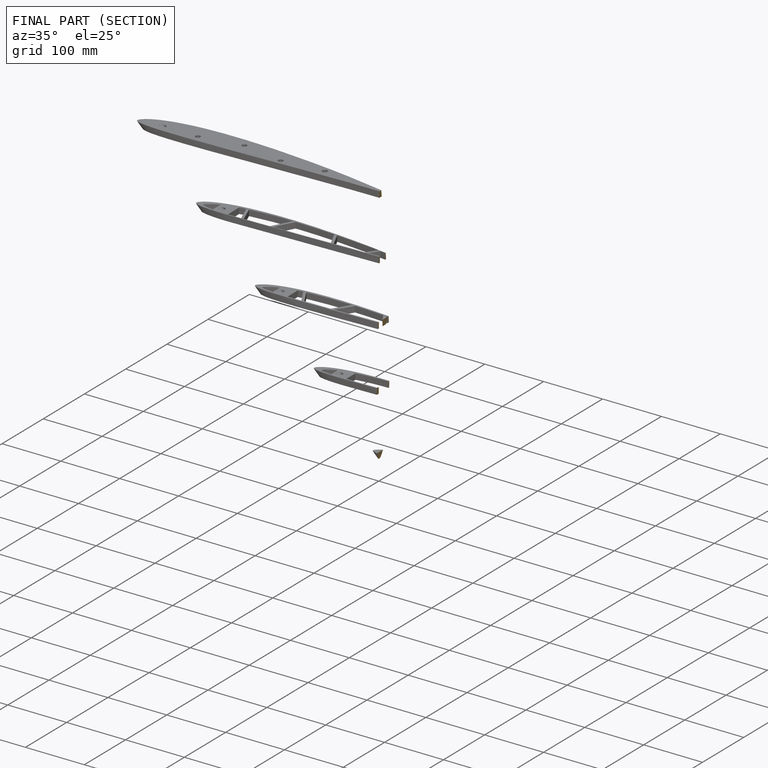
[diagram: finished part — half-section view (interior)]
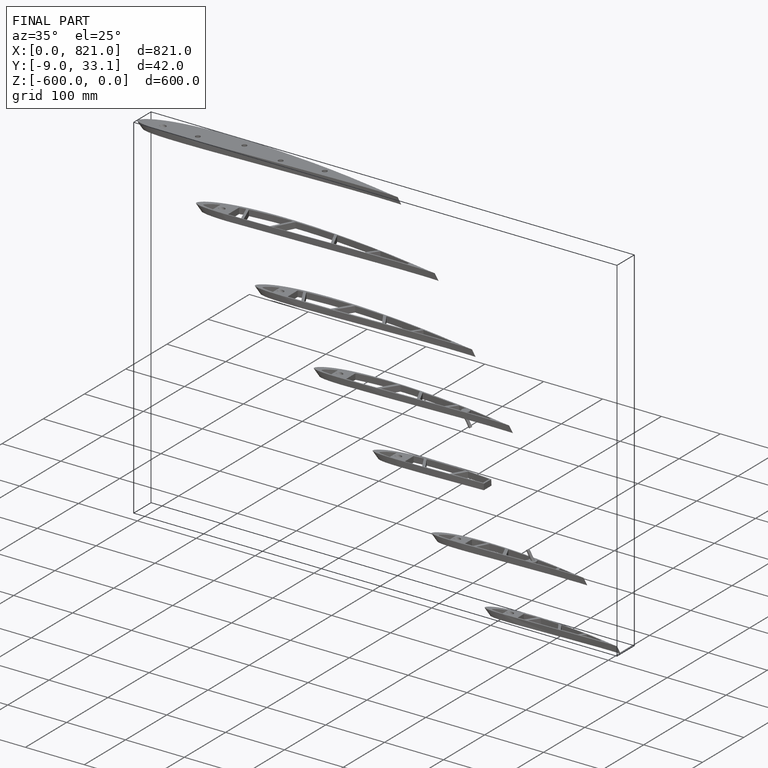
[diagram: finished part — iso view with bounding-box wireframe]
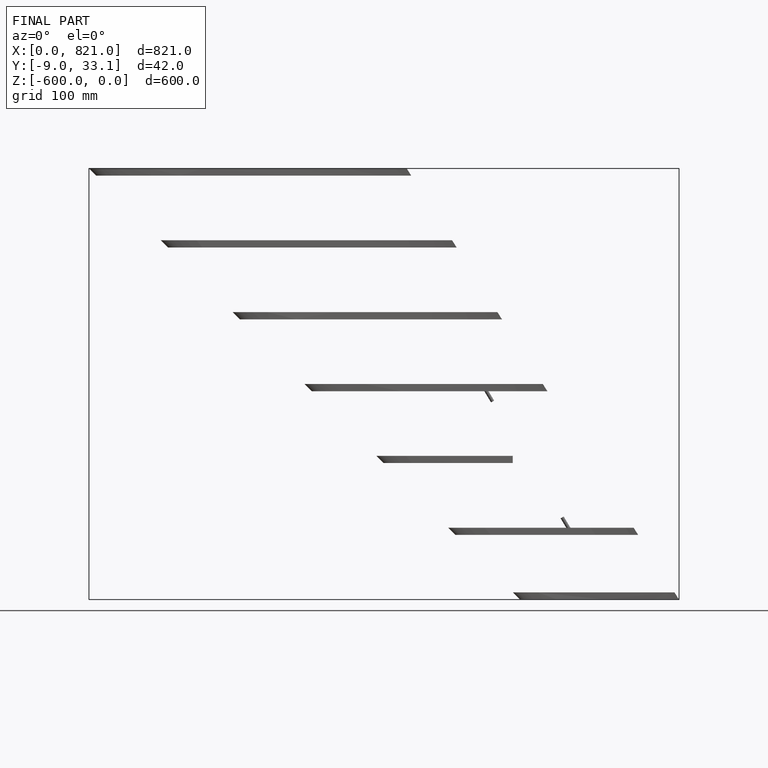
[diagram: finished part — front view with bounding-box wireframe]
